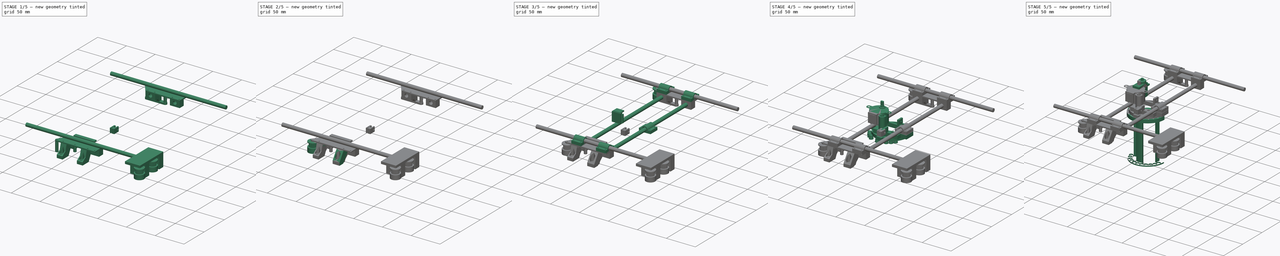
[diagram: build sequence overview — one tinted view per stage of 5, left to right]
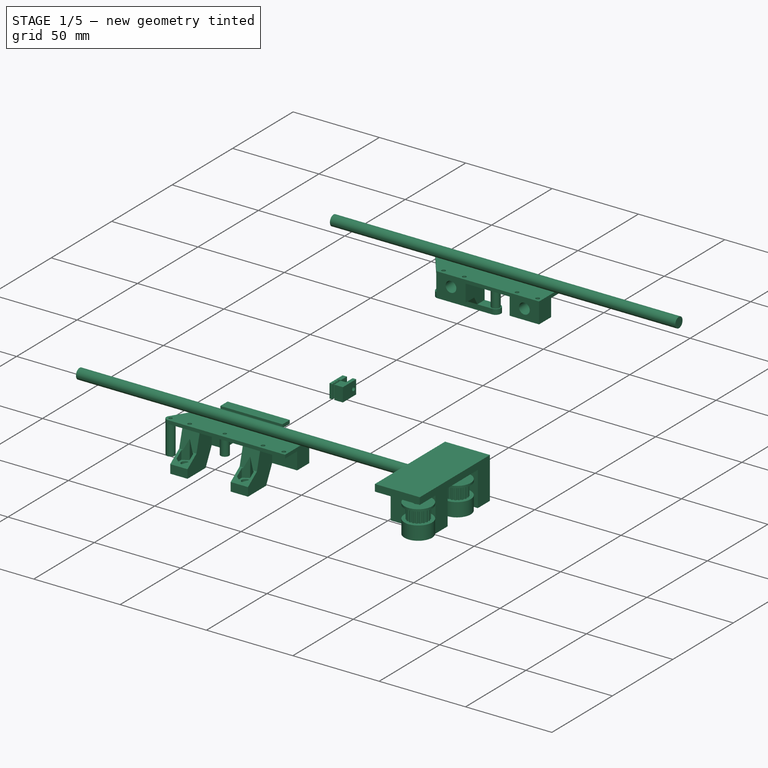
[diagram: stage 1 of 5 — iso view after this stage's code; geometry added in this stage tinted green]
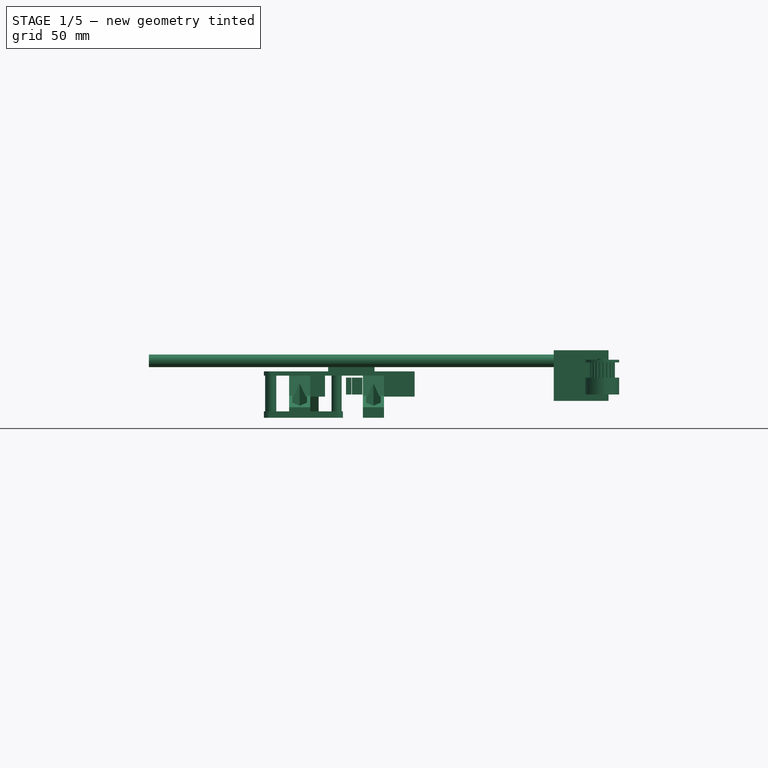
[diagram: stage 1 of 5 — front view after this stage's code; geometry added in this stage tinted green]
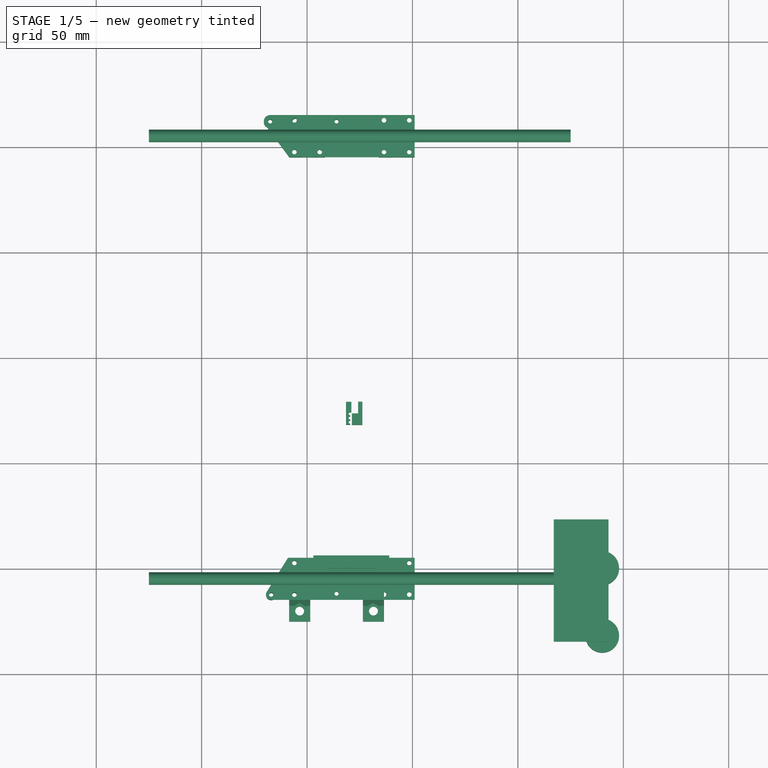
[diagram: stage 1 of 5 — top view after this stage's code; geometry added in this stage tinted green]
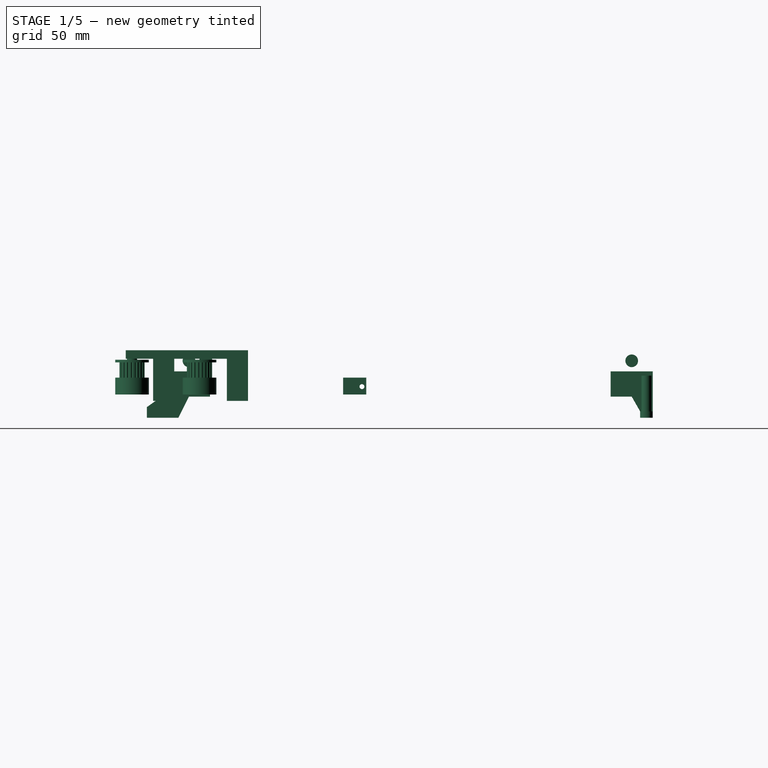
[diagram: stage 1 of 5 — right view after this stage's code; geometry added in this stage tinted green]
FCSTD DOCUMENT  (FreeCAD 0.16R6712 (Git))
Label: fusion-bead-printer
License: All rights reserved
LicenseURL: http://en.wikipedia.org/wiki/All_rights_reserved
objects: Sketcher::SketchObject×78, PartDesign::Pad×40, PartDesign::Pocket×38, App::DocumentObjectGroup×17, Part::Cylinder×15, Part::FeaturePython×12, Part::Fuse×12, Part::Box×11, Part::Cone×11, Part::Cut×9, Part::Feature×4, PartDesign::Chamfer×4, PartDesign::Fillet×2, Part::Fillet×1, Part::MultiFuse×1, Part::Compound×1, PartDesign::PolarPattern×1
note: 318 computed .brp shape members not serialized (recipe doc carries the construction recipe); baked Part::Feature solids carry a one-line shape summary decoded from their .brp

FEATURE [Part::Feature] Compound001  label="X1-Stepper"
  Placement = pos=(14,-120,-35) rot=(0,0,1;0rad)
  shape: bbox 42 x 31 x 29 mm, 57 faces, 3 solids (baked)
FEATURE [Sketcher::SketchObject] Sketch025
  Placement = pos=(20,-80,0) rot=(1,0,0;3.14159rad)
  sketch-geometry (1):
    g0: Circle CenterX=0 CenterY=0 CenterZ=0 NormalX=0 NormalY=0 NormalZ=1 Radius=8
  constraints (2):
    c: Coincident(g0,g-1)
    c: Radius(g0) = 8
FEATURE [PartDesign::Pad] Pad014
  Length = 8
  Length2 = 100
  Placement = pos=(20,-80,0) rot=(1,0,0;3.14159rad)
  Sketch = -> Sketch025
  Type = 0
FEATURE [Sketcher::SketchObject] Sketch026
  Placement = pos=(20,-80,-8) rot=(1,0,0;3.14159rad)
  Support = -> Pad014 [Face3]
  sketch-geometry (1):
    g0: Circle CenterX=0 CenterY=0 CenterZ=0 NormalX=0 NormalY=0 NormalZ=1 Radius=6
  constraints (2):
    c: Coincident(g0,g-1)
    c: Radius(g0) = 6
FEATURE [PartDesign::Pad] Pad015
  Length = 7.25
  Length2 = 100
  Placement = pos=(20,-80,0) rot=(1,0,0;3.14159rad)
  Sketch = -> Sketch026
  Type = 0
FEATURE [Sketcher::SketchObject] Sketch027
  ExternalGeometry = -> [Pad015]
  Placement = pos=(20,-80,-15.25) rot=(1,0,0;3.14159rad)
  Support = -> Pad015 [Face5]
  sketch-geometry (1):
    g0: Circle CenterX=6 CenterY=0 CenterZ=0 NormalX=0 NormalY=0 NormalZ=1 Radius=0.5
  constraints (3):
    c: PointOnObject(g0,g-1)
    c: Radius(g0) = 0.5
    c: PointOnObject(g0,g-3)
FEATURE [PartDesign::Pocket] Pocket008
  Length = 7.25
  Placement = pos=(20,-80,0) rot=(1,0,0;3.14159rad)
  Sketch = -> Sketch027
  Type = 0
FEATURE [PartDesign::PolarPattern] PolarPattern
  Angle = 360
  Axis = -> Sketch027 [N_Axis]
  Occurrences = 20
  Originals = -> [Pocket008]
  Placement = pos=(20,-80,0) rot=(1,0,0;3.14159rad)
FEATURE [Sketcher::SketchObject] Sketch028
  Placement = pos=(20,-80,-15.25) rot=(1,0,0;3.14159rad)
  Support = -> PolarPattern [Face7]
  sketch-geometry (1):
    g0: Circle CenterX=0 CenterY=0 CenterZ=0 NormalX=0 NormalY=0 NormalZ=1 Radius=8
  constraints (2):
    c: Coincident(g0,g-1)
    c: Radius(g0) = 8
FEATURE [PartDesign::Pad] Pad016
  Length = 1.25
  Length2 = 100
  Placement = pos=(20,-80,0) rot=(1,0,0;3.14159rad)
  Sketch = -> Sketch028
  Type = 0
FEATURE [Sketcher::SketchObject] Sketch029
  Placement = pos=(20,-80,-16.5) rot=(1,0,0;3.14159rad)
  Support = -> Pad016 [Face3]
  sketch-geometry (1):
    g0: Circle CenterX=0 CenterY=0 CenterZ=0 NormalX=0 NormalY=0 NormalZ=1 Radius=2.5
  constraints (2):
    c: Coincident(g0,g-1)
    c: Radius(g0) = 2.5
FEATURE [PartDesign::Pocket] Pocket009  label="Pulley gear"
  Length = 0
  Placement = pos=(20,-80,0) rot=(1,0,0;3.14159rad)
  Sketch = -> Sketch029
  Type = 2
FEATURE [Sketcher::SketchObject] Sketch056
  Placement = pos=(-8.5,115,6) rot=(1,0,0;3.14159rad)
  sketch-geometry (29):
    g0: LineSegment StartX=0 StartY=0 StartZ=0 EndX=59.5 EndY=0 EndZ=0
    g1: LineSegment StartX=59.5 StartY=0 StartZ=0 EndX=59.5 EndY=20 EndZ=0
    g2: LineSegment StartX=59.5 StartY=20 StartZ=0 EndX=0 EndY=20 EndZ=0
    g3: LineSegment [constr] StartX=0 StartY=2.5 StartZ=0 EndX=2.5 EndY=2.5 EndZ=0
    g4: LineSegment [constr] StartX=2.5 StartY=2.5 StartZ=0 EndX=2.5 EndY=0 EndZ=0
    g5: LineSegment [constr] StartX=2.5 StartY=2.5 StartZ=0 EndX=2.5 EndY=17.5 EndZ=0
    g6: LineSegment [constr] StartX=2.5 StartY=17.5 StartZ=0 EndX=14.5 EndY=17.5 EndZ=0
    g7: LineSegment [constr] StartX=2.5 StartY=2.5 StartZ=0 EndX=14.5 EndY=2.5 EndZ=0
    g8: LineSegment [constr] StartX=59.5 StartY=2.5 StartZ=0 EndX=57 EndY=2.5 EndZ=0
    g9: LineSegment [constr] StartX=57 StartY=0 StartZ=0 EndX=57 EndY=2.5 EndZ=0
    g10: LineSegment [constr] StartX=57 StartY=17.5 StartZ=0 EndX=57 EndY=2.5 EndZ=0
    g11: LineSegment [constr] StartX=57 StartY=17.5 StartZ=0 EndX=45 EndY=17.5 EndZ=0
    g12: LineSegment [constr] StartX=45 StartY=2.5 StartZ=0 EndX=57 EndY=2.5 EndZ=0
    g13: Circle CenterX=2.5 CenterY=17.5 CenterZ=0 NormalX=0 NormalY=0 NormalZ=1 Radius=1.1
    g14: Circle CenterX=14.5 CenterY=17.5 CenterZ=0 NormalX=0 NormalY=0 NormalZ=1 Radius=1.1
    g15: Circle CenterX=45 CenterY=17.5 CenterZ=0 NormalX=0 NormalY=0 NormalZ=1 Radius=1.1
    g16: Circle CenterX=45 CenterY=2.5 CenterZ=0 NormalX=0 NormalY=0 NormalZ=1 Radius=1.1
    g17: Circle CenterX=57 CenterY=17.5 CenterZ=0 NormalX=0 NormalY=0 NormalZ=1 Radius=1.1
    g18: Circle CenterX=57 CenterY=2.5 CenterZ=0 NormalX=0 NormalY=0 NormalZ=1 Radius=1.1
    g19: Circle CenterX=2.5 CenterY=2.5 CenterZ=0 NormalX=0 NormalY=0 NormalZ=1 Radius=1.1
    g20: LineSegment [constr] StartX=14.5 StartY=17.5 StartZ=0 EndX=45 EndY=17.5 EndZ=0
    g21: LineSegment StartX=0 StartY=20 StartZ=0 EndX=-11.8191 EndY=4.02606 EndZ=0
    g22: LineSegment StartX=0 StartY=0 StartZ=0 EndX=-9 EndY=0 EndZ=0
    g23: ArcOfCircle CenterX=-9 CenterY=3 CenterZ=0 NormalX=0 NormalY=0 NormalZ=1 Radius=3 StartAngle=2.79253 EndAngle=4.71239
    g24: LineSegment [constr] StartX=-9 StartY=3 StartZ=0 EndX=-9 EndY=0 EndZ=0
    g25: LineSegment [constr] StartX=-9 StartY=3 StartZ=0 EndX=0 EndY=3 EndZ=0
    g26: Circle CenterX=22.5 CenterY=3 CenterZ=0 NormalX=0 NormalY=0 NormalZ=1 Radius=1
    g27: Circle CenterX=-9 CenterY=3 CenterZ=0 NormalX=0 NormalY=0 NormalZ=1 Radius=1
    g28: LineSegment [constr] StartX=0 StartY=3 StartZ=0 EndX=22.5 EndY=3 EndZ=0
  constraints (81):
    c: Coincident(g0,g1)
    c: Coincident(g1,g2)
    c: Horizontal(g0)
    c: Horizontal(g2)
    c: Vertical(g1)
    c: Coincident(g0,g-1)
    c: DistanceX(g2,g2) = 59.5
    c: DistanceY(g1,g1) = 20
    c: Horizontal(g3)
    c: PointOnObject(g4,g0)
    c: Vertical(g4)
    c: Equal(g3,g4)
    c: Vertical(g5)
    c: Coincident(g6,g5)
    c: Horizontal(g6)
    c: Horizontal(g7)
    c: PointOnObject(g8,g1)
    c: Horizontal(g8)
    c: PointOnObject(g9,g0)
    c: Coincident(g9,g8)
    c: Vertical(g9)
    c: Coincident(g10,g8)
    c: Vertical(g10)
    c: Coincident(g11,g10)
    c: Horizontal(g11)
    c: Equal(g8,g9)
    c: Equal(g9,g3)
    c: Equal(g7,g6)
    c: Equal(g6,g11)
    c: Equal(g10,g5)
    c: DistanceY(g5,g5) = 15
    c: DistanceX(g7,g7) = 12
    c: Coincident(g3,g4)
    c: Coincident(g3,g5)
    c: Coincident(g3,g7)
    c: Coincident(g12,g8)
    c: Horizontal(g12)
    c: Equal(g12,g11)
    c: Coincident(g13,g5)
    c: Coincident(g14,g6)
    c: Coincident(g15,g11)
    c: Coincident(g16,g12)
    c: Coincident(g17,g10)
    c: Coincident(g18,g8)
    c: Coincident(g19,g3)
    c: Equal(g19,g13)
    c: Equal(g13,g14)
    c: Equal(g15,g17)
    c: Equal(g17,g16)
    c: Equal(g16,g18)
    c: Radius(g13) = 1.1
    c: Horizontal(g20)
    c: Coincident(g11,g20)
    c: Coincident(g6,g20)
    c: DistanceX(g20,g20) = 30.5
    c: Coincident(g21,g23)
    c: Coincident(g22,g23)
    c: Coincident(g0,g22)
    c: Coincident(g2,g21)
    c: PointOnObject(g2,g-2)
    c: Distance(g22) = 9
    c: Angle(g23) = 1.91986
    c: DistanceX(g8,g8) = 2.5
    c: Horizontal(g22)
    c: Coincident(g24,g23)
    c: PointOnObject(g24,g-1)
    c: Vertical(g24)
    c: DistanceY(g24,g24) = 3
    c: PointOnObject(g25,g24)
    c: PointOnObject(g25,g-2)
    c: Horizontal(g25)
    c: Coincident(g23,g25)
    c: DistanceX(g25,g25) = 9
    c: Coincident(g23,g27)
    c: Coincident(g28,g26)
    c: Horizontal(g28)
    c: DistanceX(g28,g28) = 22.5
    c: Radius(g26) = 1
    c: Equal(g26,g27)
    c: Coincident(g25,g28)
    c: Equal(g15,g14)
FEATURE [PartDesign::Pad] Pad026  label="x-pulleys-platform"
  Length = 2
  Length2 = 100
  Placement = pos=(-8.5,115,6) rot=(1,0,0;3.14159rad)
  Sketch = -> Sketch056
  Type = 0
FEATURE [App::DocumentObjectGroup] Group008  label="unused-X1-Y1 support"
  Group = -> [Pad017,Pad018,Pocket010,Pocket011,Pad019,Pocket012,Pocket013,Pocket014,Pocket015,Pad020,Pocket016,Pad021,Pocket017,Pocket018,Pocket019,Pad022,Pocket020,Pocket021,Pocket022,Pad023,Pad024,Pocket023,Pocket024,Chamfer001,Pocket025,Pad025,Chamfer003]
FEATURE [Sketcher::SketchObject] Sketch062
  Placement = pos=(51,-95,6) rot=(1,0,0;3.14159rad)
  sketch-geometry (24):
    g0: LineSegment StartX=0 StartY=0 StartZ=0 EndX=-60 EndY=0 EndZ=0
    g1: LineSegment StartX=-60 StartY=0 StartZ=0 EndX=-70.0685 EndY=16.1129 EndZ=0
    g2: LineSegment StartX=0 StartY=0 StartZ=0 EndX=0 EndY=20 EndZ=0
    g3: LineSegment StartX=0 StartY=20 StartZ=0 EndX=-68 EndY=20 EndZ=0
    g4: ArcOfCircle CenterX=-68.0225 CenterY=17.5181 CenterZ=0 NormalX=0 NormalY=0 NormalZ=1 Radius=2.48203 StartAngle=1.56174 EndAngle=3.7434
    g5: Circle CenterX=-2.5 CenterY=2.5 CenterZ=0 NormalX=0 NormalY=0 NormalZ=1 Radius=1.1
    g6: Circle CenterX=-2.5 CenterY=17.5 CenterZ=0 NormalX=0 NormalY=0 NormalZ=1 Radius=1.1
    g7: Circle CenterX=-14.5 CenterY=17.5 CenterZ=0 NormalX=0 NormalY=0 NormalZ=1 Radius=1.1
    g8: Circle CenterX=-14.5 CenterY=2.5 CenterZ=0 NormalX=0 NormalY=0 NormalZ=1 Radius=1.1
    g9: Circle CenterX=-45 CenterY=2.5 CenterZ=0 NormalX=0 NormalY=0 NormalZ=1 Radius=1.1
    g10: Circle CenterX=-57 CenterY=2.5 CenterZ=0 NormalX=0 NormalY=0 NormalZ=1 Radius=1.1
    g11: Circle CenterX=-57 CenterY=17.5 CenterZ=0 NormalX=0 NormalY=0 NormalZ=1 Radius=1.1
    g12: LineSegment [constr] StartX=-14.5 StartY=17.5 StartZ=0 EndX=-2.5 EndY=17.5 EndZ=0
    g13: LineSegment [constr] StartX=-2.5 StartY=17.5 StartZ=0 EndX=-2.5 EndY=2.5 EndZ=0
    g14: LineSegment [constr] StartX=-2.5 StartY=2.5 StartZ=0 EndX=-14.5 EndY=2.5 EndZ=0
    g15: LineSegment [constr] StartX=-14.5 StartY=2.5 StartZ=0 EndX=-45 EndY=2.5 EndZ=0
    g16: LineSegment [constr] StartX=-45 StartY=2.5 StartZ=0 EndX=-57 EndY=2.5 EndZ=0
    g17: LineSegment [constr] StartX=-57 StartY=2.5 StartZ=0 EndX=-57 EndY=17.5 EndZ=0
    g18: LineSegment [constr] StartX=-2.5 StartY=2.5 StartZ=0 EndX=0 EndY=2.5 EndZ=0
    g19: LineSegment [constr] StartX=-2.5 StartY=2.5 StartZ=0 EndX=-2.5 EndY=0 EndZ=0
    g20: Circle CenterX=-68.0225 CenterY=17.5181 CenterZ=0 NormalX=0 NormalY=0 NormalZ=1 Radius=1
    g21: Circle CenterX=-37 CenterY=17 CenterZ=0 NormalX=0 NormalY=0 NormalZ=1 Radius=1
    g22: LineSegment [constr] StartX=-37 StartY=17 StartZ=0 EndX=0 EndY=17 EndZ=0
    g23: LineSegment [constr] StartX=-37 StartY=17 StartZ=0 EndX=-37 EndY=0 EndZ=0
  constraints (65):
    c: Coincident(g0,g-1)
    c: PointOnObject(g0,g-1)
    c: Coincident(g1,g0)
    c: Coincident(g2,g-1)
    c: PointOnObject(g2,g-2)
    c: Coincident(g3,g2)
    c: Horizontal(g3)
    c: Coincident(g4,g3)
    c: Coincident(g4,g1)
    c: DistanceY(g2,g2) = 20
    c: DistanceX(g0,g0) = 60
    c: DistanceX(g3,g3) = 68
    c: Distance(g1) = 19
    c: Angle(g1) = 2.1293
    c: Angle(g4) = 2.18166
    c: Coincident(g12,g7)
    c: Coincident(g12,g6)
    c: Horizontal(g12)
    c: Coincident(g13,g6)
    c: Coincident(g13,g5)
    c: Vertical(g13)
    c: Coincident(g14,g5)
    c: Coincident(g14,g8)
    c: Horizontal(g14)
    c: Coincident(g15,g8)
    c: Coincident(g15,g9)
    c: Horizontal(g15)
    c: Coincident(g16,g9)
    c: Coincident(g16,g10)
    c: Horizontal(g16)
    c: Coincident(g17,g10)
    c: Coincident(g17,g11)
    c: Vertical(g17)
    c: Coincident(g18,g5)
    c: PointOnObject(g18,g2)
    c: Horizontal(g18)
    c: Coincident(g19,g5)
    c: PointOnObject(g19,g0)
    c: Vertical(g19)
    c: DistanceY(g19,g19) = 2.5
    c: DistanceX(g18,g18) = 2.5
    c: Radius(g5) = 1.1
    c: Equal(g5,g6)
    c: Equal(g6,g7)
    c: Equal(g7,g8)
    c: Equal(g8,g9)
    c: Equal(g9,g10)
    c: Equal(g10,g11)
    c: DistanceY(g13,g13) = 15
    c: DistanceX(g12,g12) = 12
    c: Equal(g12,g14)
    c: Equal(g14,g16)
    c: Equal(g17,g13)
    c: DistanceX(g15,g15) = 30.5
    c: Coincident(g20,g4)
    c: Radius(g20) = 1
    c: Radius(g21) = 1
    c: Coincident(g22,g21)
    c: PointOnObject(g22,g2)
    c: Horizontal(g22)
    c: DistanceX(g22,g22) = 37
    c: Coincident(g23,g21)
    c: PointOnObject(g23,g0)
    c: Vertical(g23)
    c: DistanceY(g23,g23) = 17
FEATURE [PartDesign::Pad] Pad027  label="x-stepper-base"
  Length = 2
  Length2 = 100
  Placement = pos=(51,-95,6) rot=(1,0,0;3.14159rad)
  Sketch = -> Sketch062
  Type = 0
FEATURE [Sketcher::SketchObject] Sketch063
  ExternalGeometry = -> [Pad027]
  Placement = pos=(51,-95,4) rot=(1,0,0;3.14159rad)
  Support = -> Pad027 [Face16]
  sketch-geometry (2):
    g0: Circle CenterX=-68.0225 CenterY=17.5181 CenterZ=0 NormalX=0 NormalY=0 NormalZ=1 Radius=2.4
    g1: Circle CenterX=-68.0225 CenterY=17.5181 CenterZ=0 NormalX=0 NormalY=0 NormalZ=1 Radius=1
  constraints (4):
    c: Coincident(g0,g-3)
    c: Radius(g0) = 2.4
    c: Coincident(g1,g0)
    c: Radius(g1) = 1
FEATURE [PartDesign::Pad] Pad028  label="x-stepper-outer-pulley-spindle"
  Length = 17
  Length2 = 100
  Placement = pos=(51,-95,6) rot=(1,0,0;3.14159rad)
  Sketch = -> Sketch063
  Type = 0
FEATURE [Sketcher::SketchObject] Sketch064
  Placement = pos=(51,-95,4) rot=(1,0,0;3.14159rad)
  Support = -> Pad028 [Face5]
  sketch-geometry (4):
    g0: Circle CenterX=-37 CenterY=17 CenterZ=0 NormalX=0 NormalY=0 NormalZ=1 Radius=2.4
    g1: Circle CenterX=-37 CenterY=17 CenterZ=0 NormalX=0 NormalY=0 NormalZ=1 Radius=1
    g2: LineSegment [constr] StartX=-37 StartY=17 StartZ=0 EndX=0 EndY=17 EndZ=0
    g3: LineSegment [constr] StartX=0 StartY=0 StartZ=0 EndX=0 EndY=17 EndZ=0
  constraints (10):
    c: Coincident(g1,g0)
    c: Radius(g1) = 1
    c: Radius(g0) = 2.4
    c: Coincident(g2,g0)
    c: Horizontal(g2)
    c: Coincident(g3,g-1)
    c: Vertical(g3)
    c: Coincident(g2,g3)
    c: DistanceX(g2,g2) = 37
    c: DistanceY(g3,g3) = 17
FEATURE [PartDesign::Pad] Pad029  label="x-stepper-inner-pulley-spindle"
  Length = 9
  Length2 = 100
  Placement = pos=(51,-95,6) rot=(1,0,0;3.14159rad)
  Sketch = -> Sketch064
  Type = 0
FEATURE [Sketcher::SketchObject] Sketch065
  Placement = pos=(51,-95,4) rot=(1,0,0;3.14159rad)
  Support = -> Pad029 [Face5]
  sketch-geometry (30):
    g0: LineSegment StartX=0 StartY=0 StartZ=0 EndX=-24.5 EndY=0 EndZ=0
    g1: LineSegment StartX=-24.5 StartY=0 StartZ=0 EndX=-24.5 EndY=30 EndZ=0
    g2: LineSegment StartX=-24.5 StartY=30 StartZ=0 EndX=-14.5 EndY=30 EndZ=0
    g3: LineSegment StartX=-59.5 StartY=0 StartZ=0 EndX=-42.5 EndY=0 EndZ=0
    g4: LineSegment StartX=-49.5 StartY=30 StartZ=0 EndX=-59.5 EndY=30 EndZ=0
    g5: LineSegment StartX=-59.5 StartY=30 StartZ=0 EndX=-59.5 EndY=0 EndZ=0
    g6: LineSegment [constr] StartX=-24.5 StartY=0 StartZ=0 EndX=-42.5 EndY=0 EndZ=0
    g7: Circle CenterX=-19.5 CenterY=25 CenterZ=0 NormalX=0 NormalY=0 NormalZ=1 Radius=2.1
    g8: LineSegment [constr] StartX=-19.5 StartY=25 StartZ=0 EndX=-19.5 EndY=30 EndZ=0
    g9: LineSegment [constr] StartX=-19.5 StartY=25 StartZ=0 EndX=-14.5 EndY=25 EndZ=0
    g10: LineSegment [constr] StartX=-54.5 StartY=30 StartZ=0 EndX=-54.5 EndY=25 EndZ=0
    g11: LineSegment [constr] StartX=-54.5 StartY=25 StartZ=0 EndX=-49.5 EndY=25 EndZ=0
    g12: Circle CenterX=-54.5 CenterY=25 CenterZ=0 NormalX=0 NormalY=0 NormalZ=1 Radius=2.1
    g13: LineSegment StartX=-49.5 StartY=30 StartZ=0 EndX=-49.5 EndY=10 EndZ=0
    g14: LineSegment StartX=-49.5 StartY=10 StartZ=0 EndX=-42.5 EndY=10 EndZ=0
    g15: LineSegment StartX=-42.5 StartY=10 StartZ=0 EndX=-42.5 EndY=0 EndZ=0
    g16: LineSegment StartX=-14.5 StartY=30 StartZ=0 EndX=-14.5 EndY=10 EndZ=0
    g17: LineSegment StartX=-14.5 StartY=10 StartZ=0 EndX=0 EndY=10 EndZ=0
    g18: LineSegment StartX=0 StartY=10 StartZ=0 EndX=0 EndY=0 EndZ=0
    g19: Circle CenterX=-57 CenterY=2.5 CenterZ=0 NormalX=0 NormalY=0 NormalZ=1 Radius=1.1
    g20: Circle CenterX=-45 CenterY=2.5 CenterZ=0 NormalX=0 NormalY=0 NormalZ=1 Radius=1.1
    g21: Circle CenterX=-57 CenterY=17.5 CenterZ=0 NormalX=0 NormalY=0 NormalZ=1 Radius=1.1
    g22: Circle CenterX=-14.5 CenterY=2.5 CenterZ=0 NormalX=0 NormalY=0 NormalZ=1 Radius=1.1
    g23: Circle CenterX=-2.5 CenterY=2.5 CenterZ=0 NormalX=0 NormalY=0 NormalZ=1 Radius=1.1
    g24: LineSegment [constr] StartX=-2.5 StartY=2.5 StartZ=0 EndX=-14.5 EndY=2.5 EndZ=0
    g25: LineSegment [constr] StartX=-14.5 StartY=2.5 StartZ=0 EndX=-45 EndY=2.5 EndZ=0
    g26: LineSegment [constr] StartX=-45 StartY=2.5 StartZ=0 EndX=-57 EndY=2.5 EndZ=0
    g27: LineSegment [constr] StartX=-57 StartY=2.5 StartZ=0 EndX=-57 EndY=17.5 EndZ=0
    g28: LineSegment [constr] StartX=-2.5 StartY=2.5 StartZ=0 EndX=-2.5 EndY=0 EndZ=0
    g29: LineSegment [constr] StartX=-2.5 StartY=2.5 StartZ=0 EndX=0 EndY=2.5 EndZ=0
  constraints (85):
    c: Coincident(g0,g1)
    c: Coincident(g1,g2)
    c: Horizontal(g0)
    c: Horizontal(g2)
    c: Vertical(g1)
    c: PointOnObject(g0,g-1)
    c: Coincident(g4,g5)
    c: Coincident(g5,g3)
    c: Horizontal(g3)
    c: Horizontal(g4)
    c: Vertical(g5)
    c: DistanceX(g0,g0) = 24.5
    c: PointOnObject(g3,g-1)
    c: Coincident(g6,g0)
    c: Coincident(g6,g3)
    c: DistanceX(g6,g6) = 18
    c: Radius(g7) = 2.1
    c: Coincident(g8,g7)
    c: PointOnObject(g8,g2)
    c: Vertical(g8)
    c: Coincident(g9,g7)
    c: Horizontal(g9)
    c: DistanceX(g9,g9) = 5
    c: DistanceY(g8,g8) = 5
    c: PointOnObject(g10,g4)
    c: Vertical(g10)
    c: Coincident(g11,g10)
    c: Equal(g11,g9)
    c: Equal(g8,g10)
    c: Horizontal(g11)
    c: Coincident(g12,g10)
    c: Equal(g12,g7)
    c: Coincident(g13,g4)
    c: Vertical(g13)
    c: Coincident(g14,g13)
    c: Horizontal(g14)
    c: Coincident(g15,g14)
    c: Vertical(g15)
    c: Coincident(g3,g15)
    c: DistanceX(g3,g3) = 17
    c: DistanceY(g15,g15) = 10
    c: DistanceX(g14,g14) = 7
    c: DistanceY(g13,g13) = 20
    c: PointOnObject(g11,g13)
    c: DistanceY(g1,g1) = 30
    c: Coincident(g0,g-1)
    c: Vertical(g16)
    c: Coincident(g17,g16)
    c: Horizontal(g17)
    c: Coincident(g18,g17)
    c: Coincident(g18,g-1)
    c: Vertical(g18)
    c: DistanceY(g18,g18) = 10
    c: DistanceX(g17,g17) = 14.5
    c: PointOnObject(g9,g16)
    c: Coincident(g2,g16)
    c: Coincident(g24,g23)
    c: Coincident(g24,g22)
    c: Horizontal(g24)
    c: Coincident(g25,g22)
    c: Coincident(g25,g20)
    c: Horizontal(g25)
    c: Coincident(g26,g20)
    c: Horizontal(g26)
    c: Coincident(g27,g26)
    c: Vertical(g27)
    c: Coincident(g21,g27)
    c: Coincident(g19,g26)
    c: Coincident(g28,g23)
    c: PointOnObject(g28,g0)
    c: Vertical(g28)
    c: Coincident(g29,g23)
    c: PointOnObject(g29,g18)
    c: Equal(g29,g28)
    c: DistanceX(g29,g29) = 2.5
    c: DistanceX(g24,g24) = 12
    c: DistanceX(g25,g25) = 30.5
    c: DistanceX(g26,g26) = 12
    c: DistanceY(g27,g27) = 15
    c: Equal(g21,g19)
    c: Equal(g19,g20)
    c: Equal(g20,g22)
    c: Equal(g22,g23)
    c: Radius(g23) = 1.1
    c: Horizontal(g29)
FEATURE [PartDesign::Pad] Pad030  label="x-stepper-support blocks"
  Length = 20
  Length2 = 100
  Placement = pos=(51,-95,6) rot=(1,0,0;3.14159rad)
  Sketch = -> Sketch065
  Type = 0
FEATURE [Sketcher::SketchObject] Sketch066
  ExternalGeometry = -> [Pad030]
  Placement = pos=(51,-95,4) rot=(0,0,1;0rad)
  Support = -> Pad030 [Face21]
  sketch-geometry (14):
    g0: LineSegment StartX=-51.0359 StartY=-27 StartZ=0 EndX=-51.0359 EndY=-23 EndZ=0
    g1: LineSegment StartX=-51.0359 StartY=-23 StartZ=0 EndX=-54.5 EndY=-21 EndZ=0
    g2: LineSegment StartX=-54.5 StartY=-21 StartZ=0 EndX=-57.9641 EndY=-23 EndZ=0
    g3: LineSegment StartX=-57.9641 StartY=-23 StartZ=0 EndX=-57.9641 EndY=-27 EndZ=0
    g4: LineSegment StartX=-57.9641 StartY=-27 StartZ=0 EndX=-54.5 EndY=-29 EndZ=0
    g5: LineSegment StartX=-54.5 StartY=-29 StartZ=0 EndX=-51.0359 EndY=-27 EndZ=0
    g6: Circle [constr] CenterX=-54.5 CenterY=-25 CenterZ=0 NormalX=0 NormalY=0 NormalZ=1 Radius=4
    g7: LineSegment StartX=-16.0359 StartY=-27 StartZ=0 EndX=-16.0359 EndY=-23 EndZ=0
    g8: LineSegment StartX=-16.0359 StartY=-23 StartZ=0 EndX=-19.5 EndY=-21 EndZ=0
    g9: LineSegment StartX=-19.5 StartY=-21 StartZ=0 EndX=-22.9641 EndY=-23 EndZ=0
    g10: LineSegment StartX=-22.9641 StartY=-23 StartZ=0 EndX=-22.9641 EndY=-27 EndZ=0
    g11: LineSegment StartX=-22.9641 StartY=-27 StartZ=0 EndX=-19.5 EndY=-29 EndZ=0
    g12: LineSegment StartX=-19.5 StartY=-29 StartZ=0 EndX=-16.0359 EndY=-27 EndZ=0
    g13: Circle [constr] CenterX=-19.5 CenterY=-25 CenterZ=0 NormalX=0 NormalY=0 NormalZ=1 Radius=4
  constraints (32):
    c: Coincident(g0,g1)
    c: Coincident(g1,g2)
    c: Coincident(g2,g3)
    c: Coincident(g3,g4)
    c: Coincident(g4,g5)
    c: Coincident(g5,g0)
    c: Equal(g0, g1-g5) x5
    c: PointOnObject(g0,g6)
    c: PointOnObject(g1,g6)
    c: PointOnObject(g2,g6)
    c: PointOnObject(g3,g6)
    c: PointOnObject(g4,g6)
    c: PointOnObject(g5,g6)
    c: Coincident(g6,g-4)
    c: Coincident(g7,g8)
    c: Coincident(g8,g9)
    c: Coincident(g9,g10)
    c: Coincident(g10,g11)
    c: Coincident(g11,g12)
    c: Coincident(g12,g7)
    c: Equal(g7, g8-g12) x5
    c: PointOnObject(g7,g13)
    c: PointOnObject(g8,g13)
    c: PointOnObject(g9,g13)
    c: PointOnObject(g10,g13)
    c: PointOnObject(g11,g13)
    c: PointOnObject(g12,g13)
    c: Coincident(g13,g-3)
    c: Vertical(g7)
    c: Vertical(g0)
    c: Equal(g6,g13)
    c: Radius(g13) = 4
FEATURE [PartDesign::Pocket] Pocket029  label="x-stepper-nut-holes"
  Length = 15
  Placement = pos=(51,-95,6) rot=(1,0,0;3.14159rad)
  Sketch = -> Sketch066
  Type = 0
FEATURE [Sketcher::SketchObject] Sketch067
  ExternalGeometry = -> [Pocket029]
  Placement = pos=(-8.5,-95,6) rot=(0.57735,0.57735,-0.57735;4.18879rad)
  Support = -> Pocket029 [Face38]
  sketch-geometry (8):
    g0: LineSegment StartX=-22.5882 StartY=11.6593 StartZ=0 EndX=-30 EndY=17 EndZ=0
    g1: LineSegment StartX=-30 StartY=17 StartZ=0 EndX=-30 EndY=2 EndZ=0
    g2: LineSegment StartX=-30 StartY=2 StartZ=0 EndX=-20 EndY=2 EndZ=0
    g3: LineSegment StartX=-20 StartY=2 StartZ=0 EndX=-22.5882 EndY=11.6593 EndZ=0
    g4: LineSegment StartX=0 StartY=22 StartZ=0 EndX=0 EndY=12 EndZ=0
    g5: LineSegment StartX=0 StartY=12 StartZ=0 EndX=-10 EndY=12 EndZ=0
    g6: LineSegment StartX=-10 StartY=12 StartZ=0 EndX=-15 EndY=22 EndZ=0
    g7: LineSegment StartX=-15 StartY=22 StartZ=0 EndX=0 EndY=22 EndZ=0
  constraints (22):
    c: Coincident(g1,g0)
    c: Vertical(g1)
    c: Coincident(g2,g1)
    c: Horizontal(g2)
    c: Coincident(g3,g2)
    c: Coincident(g3,g0)
    c: Coincident(g1,g-3)
    c: Coincident(g2,g-3)
    c: DistanceY(g1,g1) = 15
    c: Distance(g3) = 10
    c: Angle(g3) = 1.8326
    c: Vertical(g4)
    c: Coincident(g5,g4)
    c: Horizontal(g5)
    c: Coincident(g6,g5)
    c: Coincident(g7,g6)
    c: Coincident(g7,g4)
    c: Horizontal(g7)
    c: DistanceY(g4,g4) = 10
    c: Coincident(g4,g-4)
    c: DistanceX(g7,g7) = 15
    c: DistanceX(g5,g5) = 10
FEATURE [PartDesign::Pocket] Pocket030  label="x-stepper-support-cutout"
  Length = 5
  Placement = pos=(51,-95,6) rot=(1,0,0;3.14159rad)
  Sketch = -> Sketch067
  Type = 1
FEATURE [App::DocumentObjectGroup] Group011  label="x-stepper-frame"
  Group = -> [Pad027,Pad028,Pad029,Pad030,Pocket029,Pocket030,Pocket031,Pocket032,Pocket033,Pocket034,Compound001,Clone005,Clone006,Chamfer004]
FEATURE [Sketcher::SketchObject] Sketch072
  ExternalGeometry = -> [Pad026]
  Placement = pos=(-8.5,115,4) rot=(1,0,0;3.14159rad)
  Support = -> Pad026 [Face18]
  sketch-geometry (17):
    g0: LineSegment StartX=0 StartY=20 StartZ=0 EndX=17 EndY=20 EndZ=0
    g1: LineSegment StartX=17 StartY=20 StartZ=0 EndX=17 EndY=10 EndZ=0
    g2: LineSegment StartX=17 StartY=10 StartZ=0 EndX=0 EndY=10 EndZ=0
    g3: LineSegment StartX=42.5 StartY=20 StartZ=0 EndX=59.5 EndY=20 EndZ=0
    g4: LineSegment StartX=59.5 StartY=20 StartZ=0 EndX=59.5 EndY=10 EndZ=0
    g5: LineSegment StartX=59.5 StartY=10 StartZ=0 EndX=42.5 EndY=10 EndZ=0
    g6: LineSegment StartX=42.5 StartY=10 StartZ=0 EndX=42.5 EndY=20 EndZ=0
    g7: Circle CenterX=2.5 CenterY=17.5 CenterZ=0 NormalX=0 NormalY=0 NormalZ=1 Radius=1.1
    g8: Circle CenterX=14.5 CenterY=17.5 CenterZ=0 NormalX=0 NormalY=0 NormalZ=1 Radius=1.1
    g9: Circle CenterX=45 CenterY=17.5 CenterZ=0 NormalX=0 NormalY=0 NormalZ=1 Radius=1.1
    g10: Circle CenterX=57 CenterY=17.5 CenterZ=0 NormalX=0 NormalY=0 NormalZ=1 Radius=1.1
    g11: LineSegment [constr] StartX=57 StartY=17.5 StartZ=0 EndX=57 EndY=20 EndZ=0
    g12: LineSegment [constr] StartX=57 StartY=17.5 StartZ=0 EndX=45 EndY=17.5 EndZ=0
    g13: LineSegment [constr] StartX=45 StartY=17.5 StartZ=0 EndX=14.5 EndY=17.5 EndZ=0
    g14: LineSegment [constr] StartX=14.5 StartY=17.5 StartZ=0 EndX=2.5 EndY=17.5 EndZ=0
    g15: LineSegment [constr] StartX=57 StartY=17.5 StartZ=0 EndX=59.5 EndY=17.5 EndZ=0
    g16: LineSegment StartX=0 StartY=10 StartZ=0 EndX=0 EndY=20 EndZ=0
  constraints (48):
    c: Coincident(g0,g1)
    c: Coincident(g1,g2)
    c: Horizontal(g0)
    c: Horizontal(g2)
    c: Vertical(g1)
    c: PointOnObject(g0,g-2)
    c: Coincident(g3,g4)
    c: Coincident(g4,g5)
    c: Coincident(g5,g6)
    c: Coincident(g6,g3)
    c: Horizontal(g3)
    c: Horizontal(g5)
    c: Vertical(g4)
    c: Vertical(g6)
    c: PointOnObject(g0,g-3)
    c: Equal(g2,g5)
    c: Equal(g1,g6)
    c: DistanceY(g6,g6) = 10
    c: PointOnObject(g3,g-3)
    c: DistanceX(g5,g5) = 17
    c: Coincident(g3,g-3)
    c: Coincident(g11,g10)
    c: PointOnObject(g11,g-3)
    c: Vertical(g11)
    c: Coincident(g12,g9)
    c: Horizontal(g12)
    c: Coincident(g13,g9)
    c: Coincident(g13,g8)
    c: Horizontal(g13)
    c: Coincident(g14,g8)
    c: Coincident(g14,g7)
    c: Horizontal(g14)
    c: DistanceY(g11,g11) = 2.5
    c: DistanceX(g12,g12) = 12
    c: DistanceX(g13,g13) = 30.5
    c: DistanceX(g14,g14) = 12
    c: Equal(g7,g8)
    c: Equal(g8,g9)
    c: Equal(g9,g10)
    c: Radius(g10) = 1.1
    c: Coincident(g10,g12)
    c: Coincident(g15,g10)
    c: PointOnObject(g15,g4)
    c: Horizontal(g15)
    c: DistanceX(g15,g15) = 2.5
    c: Coincident(g16,g2)
    c: Coincident(g16,g0)
    c: Vertical(g16)
FEATURE [PartDesign::Pad] Pad031  label="x-pulleys-bar-supports"
  Length = 10
  Length2 = 100
  Placement = pos=(-8.5,115,6) rot=(1,0,0;3.14159rad)
  Sketch = -> Sketch072
  Type = 0
FEATURE [Sketcher::SketchObject] Sketch073
  ExternalGeometry = -> [Pad031]
  Placement = pos=(-8.5,115,4) rot=(1,0,0;3.14159rad)
  Support = -> Pad031 [Face5]
  sketch-geometry (14):
    g0: Circle CenterX=22.5 CenterY=3 CenterZ=0 NormalX=0 NormalY=0 NormalZ=1 Radius=1
    g1: Circle CenterX=-9 CenterY=3 CenterZ=0 NormalX=0 NormalY=0 NormalZ=1 Radius=1
    g2: Circle CenterX=22.5 CenterY=3 CenterZ=0 NormalX=0 NormalY=0 NormalZ=1 Radius=2.4
    g3: Circle CenterX=-9 CenterY=3 CenterZ=0 NormalX=0 NormalY=0 NormalZ=1 Radius=2.4
    g4: LineSegment StartX=0 StartY=10 StartZ=0 EndX=14 EndY=10 EndZ=0
    g5: LineSegment StartX=14 StartY=10 StartZ=0 EndX=14 EndY=0 EndZ=0
    g6: LineSegment StartX=14 StartY=0 StartZ=0 EndX=0 EndY=0 EndZ=0
    g7: LineSegment StartX=0 StartY=0 StartZ=0 EndX=0 EndY=10 EndZ=0
    g8: Circle CenterX=11 CenterY=3 CenterZ=0 NormalX=0 NormalY=0 NormalZ=1 Radius=1.5
    g9: Circle CenterX=3 CenterY=3 CenterZ=0 NormalX=0 NormalY=0 NormalZ=1 Radius=1.5
    g10: LineSegment [constr] StartX=3 StartY=3 StartZ=0 EndX=11 EndY=3 EndZ=0
    g11: LineSegment [constr] StartX=11 StartY=3 StartZ=0 EndX=22.5 EndY=3 EndZ=0
    g12: LineSegment [constr] StartX=3 StartY=3 StartZ=0 EndX=0 EndY=3 EndZ=0
    g13: LineSegment [constr] StartX=0 StartY=3 StartZ=0 EndX=-9 EndY=3 EndZ=0
  constraints (36):
    c: Equal(g1,g0)
    c: Radius(g0) = 1
    c: DistanceX(g1,g0) = 31.5
    c: Coincident(g3,g1)
    c: Equal(g3,g2)
    c: Radius(g2) = 2.4
    c: Coincident(g0,g2)
    c: Coincident(g4,g5)
    c: Coincident(g5,g6)
    c: Coincident(g6,g7)
    c: Coincident(g7,g4)
    c: Horizontal(g4)
    c: Horizontal(g6)
    c: Vertical(g5)
    c: Vertical(g7)
    c: Coincident(g6,g-1)
    c: DistanceX(g6,g6) = 14
    c: DistanceY(g5,g5) = 10
    c: Coincident(g0,g-3)
    c: Equal(g9,g8)
    c: Radius(g8) = 1.5
    c: Coincident(g10,g9)
    c: Coincident(g10,g8)
    c: DistanceX(g10,g10) = 8
    c: Coincident(g11,g8)
    c: Coincident(g11,g0)
    c: Horizontal(g11)
    c: Coincident(g12,g9)
    c: Horizontal(g12)
    c: PointOnObject(g13,g12)
    c: Coincident(g13,g1)
    c: Horizontal(g13)
    c: Coincident(g12,g13)
    c: PointOnObject(g12,g7)
    c: DistanceX(g12,g12) = 3
    c: Horizontal(g10)
FEATURE [PartDesign::Pad] Pad032  label="x-pulleys-rear-support"
  Length = 17
  Length2 = 100
  Placement = pos=(-8.5,115,6) rot=(1,0,0;3.14159rad)
  Sketch = -> Sketch073
  Type = 0
FEATURE [Sketcher::SketchObject] Sketch074
  ExternalGeometry = -> [Pad032]
  Placement = pos=(-8.5,115,6) rot=(0.57735,0.57735,-0.57735;4.18879rad)
  Support = -> Pad032 [Face33]
  sketch-geometry (3):
    g0: LineSegment StartX=-10 StartY=12 StartZ=0 EndX=-10 EndY=19 EndZ=0
    g1: LineSegment StartX=-10 StartY=19 StartZ=0 EndX=-6 EndY=19 EndZ=0
    g2: LineSegment StartX=-6 StartY=19 StartZ=0 EndX=-10 EndY=12 EndZ=0
  constraints (7):
    c: Coincident(g0,g-3)
    c: Coincident(g1,g0)
    c: Horizontal(g1)
    c: Coincident(g2,g1)
    c: Coincident(g0,g-3)
    c: DistanceX(g1,g1) = 4
    c: Coincident(g0,g2)
FEATURE [PartDesign::Pocket] Pocket035  label="x-pulleys-front-slice"
  Length = 5
  Placement = pos=(-8.5,115,6) rot=(1,0,0;3.14159rad)
  Sketch = -> Sketch074
  Type = 2
FEATURE [Sketcher::SketchObject] Sketch075
  Placement = pos=(-8.5,115,6) rot=(0.57735,0.57735,-0.57735;4.18879rad)
  Support = -> Pocket035 [Face33]
  sketch-geometry (5):
    g0: LineSegment [constr] StartX=0 StartY=0 StartZ=0 EndX=0 EndY=2 EndZ=0
    g1: LineSegment StartX=0 StartY=2 StartZ=0 EndX=0 EndY=12 EndZ=0
    g2: LineSegment StartX=0 StartY=12 StartZ=0 EndX=-5 EndY=7 EndZ=0
    g3: LineSegment StartX=-5 StartY=7 StartZ=0 EndX=-5 EndY=2 EndZ=0
    g4: LineSegment StartX=-5 StartY=2 StartZ=0 EndX=0 EndY=2 EndZ=0
  constraints (14):
    c: Coincident(g0,g-1)
    c: Coincident(g1,g0)
    c: Vertical(g1)
    c: Coincident(g4,g3)
    c: Coincident(g4,g0)
    c: DistanceY(g0,g0) = 2
    c: Vertical(g0)
    c: Coincident(g1,g2)
    c: DistanceY(g1,g1) = 10
    c: DistanceX(g4,g4) = 5
    c: Horizontal(g4)
    c: DistanceY(g3,g3) = 5
    c: Vertical(g3)
    c: Coincident(g2,g3)
FEATURE [PartDesign::Pocket] Pocket036  label="x-pulleys-expose-bolthole"
  Length = 5
  Placement = pos=(-8.5,115,6) rot=(1,0,0;3.14159rad)
  Sketch = -> Sketch075
  Type = 0
FEATURE [Sketcher::SketchObject] Sketch076
  Placement = pos=(-8.5,95,6) rot=(0,0.707107,-0.707107;3.14159rad)
  Support = -> Pocket036 [Face22]
  sketch-geometry (5):
    g0: Circle CenterX=-8.5 CenterY=6 CenterZ=0 NormalX=0 NormalY=0 NormalZ=1 Radius=3.1
    g1: Circle CenterX=-51 CenterY=6 CenterZ=0 NormalX=0 NormalY=0 NormalZ=1 Radius=3.1
    g2: LineSegment [constr] StartX=0 StartY=6 StartZ=0 EndX=-8.5 EndY=6 EndZ=0
    g3: LineSegment [constr] StartX=-8.5 StartY=6 StartZ=0 EndX=-8.5 EndY=0 EndZ=0
    g4: LineSegment [constr] StartX=-51 StartY=6 StartZ=0 EndX=-8.5 EndY=6 EndZ=0
  constraints (14):
    c: PointOnObject(g2,g-2)
    c: Coincident(g2,g0)
    c: Horizontal(g2)
    c: Coincident(g3,g0)
    c: PointOnObject(g3,g-1)
    c: Vertical(g3)
    c: Coincident(g4,g1)
    c: Coincident(g4,g0)
    c: Horizontal(g4)
    c: DistanceX(g2,g2) = 8.5
    c: DistanceY(g3,g3) = 6
    c: DistanceX(g4,g4) = 42.5
    c: Equal(g0,g1)
    c: Radius(g0) = 3.1
FEATURE [PartDesign::Pocket] Pocket037  label="x-pulleys-bar-sockets"
  Length = 8
  Placement = pos=(-8.5,115,6) rot=(1,0,0;3.14159rad)
  Sketch = -> Sketch076
  Type = 0
FEATURE [Sketcher::SketchObject] Sketch077
  Placement = pos=(14,112,-13) rot=(1,0,0;3.14159rad)
  sketch-geometry (12):
    g0: Circle CenterX=0 CenterY=0 CenterZ=0 NormalX=0 NormalY=0 NormalZ=1 Radius=1.1
    g1: Circle CenterX=-31.5 CenterY=0 CenterZ=0 NormalX=0 NormalY=0 NormalZ=1 Radius=1.1
    g2: ArcOfCircle CenterX=-31.5 CenterY=0 CenterZ=0 NormalX=0 NormalY=0 NormalZ=1 Radius=3 StartAngle=1.5708 EndAngle=4.71239
    g3: ArcOfCircle CenterX=0 CenterY=0 CenterZ=0 NormalX=0 NormalY=0 NormalZ=1 Radius=3 StartAngle=4.71239 EndAngle=7.85398
    g4: LineSegment StartX=-31.5 StartY=3 StartZ=0 EndX=0 EndY=3 EndZ=0
    g5: LineSegment StartX=0 StartY=-3 StartZ=0 EndX=-31.5 EndY=-3 EndZ=0
    g6: Circle CenterX=-19.5 CenterY=0 CenterZ=0 NormalX=0 NormalY=0 NormalZ=1 Radius=1.7
    g7: Circle CenterX=-11.5 CenterY=0 CenterZ=0 NormalX=0 NormalY=0 NormalZ=1 Radius=1.7
    g8: LineSegment [constr] StartX=-31.5 StartY=0 StartZ=0 EndX=-19.5 EndY=0 EndZ=0
    g9: LineSegment [constr] StartX=-19.5 StartY=0 StartZ=0 EndX=-11.5 EndY=0 EndZ=0
    g10: LineSegment [constr] StartX=-11.5 StartY=0 StartZ=0 EndX=0 EndY=0 EndZ=0
    g11: LineSegment [constr] StartX=-31.5 StartY=0 StartZ=0 EndX=-31.5 EndY=-3 EndZ=0
  constraints (33):
    c: Coincident(g0,g-1)
    c: PointOnObject(g1,g-1)
    c: Coincident(g2,g1)
    c: Coincident(g3,g-1)
    c: PointOnObject(g3,g-2)
    c: PointOnObject(g3,g-2)
    c: Coincident(g4,g3)
    c: Horizontal(g4)
    c: Coincident(g5,g3)
    c: Coincident(g5,g2)
    c: Horizontal(g5)
    c: PointOnObject(g7,g-1)
    c: Coincident(g8,g1)
    c: Coincident(g8,g6)
    c: Horizontal(g8)
    c: Coincident(g9,g7)
    c: Horizontal(g9)
    c: Coincident(g10,g7)
    c: Coincident(g10,g-1)
    c: DistanceX(g10,g10) = 11.5
    c: DistanceX(g9,g9) = 8
    c: DistanceX(g8,g8) = 12
    c: Coincident(g6,g9)
    c: Radius(g6) = 1.7
    c: Equal(g6,g7)
    c: Coincident(g2,g4)
    c: Coincident(g11,g1)
    c: Coincident(g11,g2)
    c: Vertical(g11)
    c: DistanceY(g11,g11) = 3
    c: Angle(g2) = 3.14159
    c: Radius(g1) = 1.1
    c: Equal(g1,g0)
FEATURE [PartDesign::Pad] Pad033  label="x-pulleys-upper-support"
  Length = 3
  Length2 = 100
  Placement = pos=(14,112,-13) rot=(1,0,0;3.14159rad)
  Sketch = -> Sketch077
  Type = 0
FEATURE [App::DocumentObjectGroup] Group010  label="x-pulleys"
  Group = -> [Pad026,Clone007,Clone008,Pad031,Pad032,Pocket035,Pocket036,Pocket037,Pad033]
FEATURE [Part::Cylinder] Cylinder013  label="Rod Y1"
  Angle = 360
  Height = 200
  Placement = pos=(-75,105,11) rot=(0,1,0;1.5708rad)
  Radius = 3
FEATURE [Part::Cylinder] Cylinder014  label="Rod Y2"
  Angle = 360
  Height = 200
  Placement = pos=(-75,-105,11) rot=(0,1,0;1.5708rad)
  Radius = 3
FEATURE [App::DocumentObjectGroup] Group009  label="Bars and sliders"
  Group = -> [Clone,Fillet,Cylinder007,Cylinder008,Clone001,Clone002,Clone004,Clone003,Group001,Cylinder013,Cylinder014]
FEATURE [Part::Feature] Compound002  label="y-stepper"
  Placement = pos=(132,-100,-27) rot=(0,0,-1;1.5708rad)
  shape: bbox 31 x 42 x 29 mm, 57 faces, 3 solids (baked)
FEATURE [Part::FeaturePython] Clone009  label="y-stepper-pulley"  # Draft clone (typed FeaturePython)
  Objects = -> [Pocket009]
  Placement = pos=(140,-100,-5) rot=(0,0,1;0rad)
  Scale = (1,1,1)
FEATURE [Part::FeaturePython] Clone010  label="y-stepper-outer-pulley"  # Draft clone (typed FeaturePython)
  Objects = -> [Pocket009]
  Placement = pos=(140,-132,-5) rot=(0,0,1;0rad)
  Scale = (1,1,1)
FEATURE [Sketcher::SketchObject] Sketch078
  Placement = pos=(34,-94,6) rot=(0,0.707107,0.707107;3.14159rad)
  sketch-geometry (15):
    g0: LineSegment StartX=-5 StartY=7 StartZ=0 EndX=-5 EndY=5 EndZ=0
    g1: LineSegment StartX=-5 StartY=5 StartZ=0 EndX=2 EndY=5 EndZ=0
    g2: LineSegment StartX=2 StartY=5 StartZ=0 EndX=2 EndY=0 EndZ=0
    g3: LineSegment StartX=2 StartY=0 StartZ=0 EndX=24 EndY=0 EndZ=0
    g4: LineSegment StartX=24 StartY=0 StartZ=0 EndX=24 EndY=5 EndZ=0
    g5: LineSegment StartX=24 StartY=5 StartZ=0 EndX=31 EndY=5 EndZ=0
    g6: LineSegment StartX=31 StartY=5 StartZ=0 EndX=31 EndY=7 EndZ=0
    g7: LineSegment StartX=31 StartY=7 StartZ=0 EndX=-5 EndY=7 EndZ=0
    g8: LineSegment [constr] StartX=0 StartY=0 StartZ=0 EndX=2 EndY=0 EndZ=0
    g9: Circle CenterX=8 CenterY=3.5 CenterZ=0 NormalX=0 NormalY=0 NormalZ=1 Radius=1.1
    g10: Circle CenterX=18 CenterY=3.5 CenterZ=0 NormalX=0 NormalY=0 NormalZ=1 Radius=1.1
    g11: LineSegment [constr] StartX=8 StartY=7 StartZ=0 EndX=8 EndY=3.5 EndZ=0
    g12: LineSegment [constr] StartX=8 StartY=3.5 StartZ=0 EndX=2 EndY=3.5 EndZ=0
    g13: LineSegment [constr] StartX=18 StartY=3.5 StartZ=0 EndX=18 EndY=7 EndZ=0
    g14: LineSegment [constr] StartX=18 StartY=3.5 StartZ=0 EndX=24 EndY=3.5 EndZ=0
  constraints (44):
    c: Vertical(g0)
    c: Coincident(g1,g0)
    c: Horizontal(g1)
    c: Coincident(g2,g1)
    c: Vertical(g2)
    c: Coincident(g3,g2)
    c: Horizontal(g3)
    c: Coincident(g4,g3)
    c: Vertical(g4)
    c: Coincident(g5,g4)
    c: Horizontal(g5)
    c: Coincident(g6,g5)
    c: Vertical(g6)
    c: Coincident(g7,g6)
    c: Coincident(g7,g0)
    c: Horizontal(g7)
    c: Coincident(g8,g-1)
    c: Coincident(g8,g2)
    c: DistanceX(g8,g8) = 2
    c: Horizontal(g8)
    c: DistanceY(g2,g2) = 5
    c: DistanceX(g1,g1) = 7
    c: DistanceY(g0,g0) = 2
    c: DistanceX(g7,g7) = 36
    c: Equal(g0,g6)
    c: Equal(g1,g5)
    c: Radius(g9) = 1.1
    c: Equal(g10,g9)
    c: PointOnObject(g11,g7)
    c: Coincident(g11,g9)
    c: Vertical(g11)
    c: Coincident(g12,g9)
    c: PointOnObject(g12,g2)
    c: Horizontal(g12)
    c: Coincident(g13,g10)
    c: PointOnObject(g13,g7)
    c: Vertical(g13)
    c: Coincident(g14,g10)
    c: PointOnObject(g14,g4)
    c: Equal(g14,g12)
    c: Horizontal(g14)
    c: Equal(g13,g11)
    c: DistanceY(g11,g11) = 3.5
    c: DistanceX(g12,g12) = 6
FEATURE [PartDesign::Pad] Pad034  label="main block"
  Length = 6
  Length2 = 100
  Placement = pos=(34,-94,6) rot=(0,0.707107,0.707107;3.14159rad)
  Reversed = true
  Sketch = -> Sketch078
  Type = 0
FEATURE [Sketcher::SketchObject] Sketch079
  ExternalGeometry = -> [Pad034]
  Placement = pos=(34,-100,6) rot=(0,-0.707107,0.707107;3.14159rad)
  Support = -> Pad034 [Face12]
  sketch-geometry (14):
    g0: LineSegment StartX=19.125 StartY=-1.55144 StartZ=0 EndX=16.875 EndY=-1.55144 EndZ=0
    g1: LineSegment StartX=16.875 StartY=-1.55144 StartZ=0 EndX=15.75 EndY=-3.5 EndZ=0
    g2: LineSegment StartX=15.75 StartY=-3.5 StartZ=0 EndX=16.875 EndY=-5.44856 EndZ=0
    g3: LineSegment StartX=16.875 StartY=-5.44856 StartZ=0 EndX=19.125 EndY=-5.44856 EndZ=0
    g4: LineSegment StartX=19.125 StartY=-5.44856 StartZ=0 EndX=20.25 EndY=-3.5 EndZ=0
    g5: LineSegment StartX=20.25 StartY=-3.5 StartZ=0 EndX=19.125 EndY=-1.55144 EndZ=0
    g6: Circle [constr] CenterX=18 CenterY=-3.5 CenterZ=0 NormalX=0 NormalY=0 NormalZ=1 Radius=2.25
    g7: LineSegment StartX=5.75 StartY=-3.5 StartZ=0 EndX=6.875 EndY=-5.44856 EndZ=0
    g8: LineSegment StartX=6.875 StartY=-5.44856 StartZ=0 EndX=9.125 EndY=-5.44856 EndZ=0
    g9: LineSegment StartX=9.125 StartY=-5.44856 StartZ=0 EndX=10.25 EndY=-3.5 EndZ=0
    g10: LineSegment StartX=10.25 StartY=-3.5 StartZ=0 EndX=9.125 EndY=-1.55144 EndZ=0
    g11: LineSegment StartX=9.125 StartY=-1.55144 StartZ=0 EndX=6.875 EndY=-1.55144 EndZ=0
    g12: LineSegment StartX=6.875 StartY=-1.55144 StartZ=0 EndX=5.75 EndY=-3.5 EndZ=0
    g13: Circle [constr] CenterX=8 CenterY=-3.5 CenterZ=0 NormalX=0 NormalY=0 NormalZ=1 Radius=2.25
  constraints (32):
    c: Coincident(g0,g1)
    c: Coincident(g1,g2)
    c: Coincident(g2,g3)
    c: Coincident(g3,g4)
    c: Coincident(g4,g5)
    c: Coincident(g5,g0)
    c: Equal(g0, g1-g5) x5
    c: PointOnObject(g0,g6)
    c: PointOnObject(g1,g6)
    c: PointOnObject(g2,g6)
    c: PointOnObject(g3,g6)
    c: PointOnObject(g4,g6)
    c: PointOnObject(g5,g6)
    c: Coincident(g6,g-4)
    c: Coincident(g7,g8)
    c: Coincident(g8,g9)
    c: Coincident(g9,g10)
    c: Coincident(g10,g11)
    c: Coincident(g11,g12)
    c: Coincident(g12,g7)
    c: Equal(g7, g8-g12) x5
    c: PointOnObject(g7,g13)
    c: PointOnObject(g8,g13)
    c: PointOnObject(g9,g13)
    c: PointOnObject(g10,g13)
    c: PointOnObject(g11,g13)
    c: PointOnObject(g12,g13)
    c: Coincident(g13,g-3)
    c: Horizontal(g0)
    c: Radius(g6) = 2.25
    c: Horizontal(g8)
    c: Equal(g13,g6)
FEATURE [PartDesign::Pocket] Pocket038
  Length = 3
  Placement = pos=(34,-94,6) rot=(0,0.707107,0.707107;3.14159rad)
  Sketch = -> Sketch079
  Type = 0
FEATURE [App::DocumentObjectGroup] Group013  label="y-belt-block"
  Group = -> [Pad034,Pocket038]
FEATURE [Sketcher::SketchObject] Sketch080  label="Belt clamp sketch"
  Placement = pos=(21.2,-26.5,3) rot=(1,0,0;3.14159rad)
  sketch-geometry (23):
    g0: LineSegment StartX=-0.2 StartY=-5.5 StartZ=0 EndX=-2.7 EndY=-5.5 EndZ=0
    g1: LineSegment StartX=-0.2 StartY=-5.5 StartZ=0 EndX=-0.2 EndY=-0.5 EndZ=0
    g2: LineSegment StartX=-0.2 StartY=-0.5 StartZ=0 EndX=-0.85 EndY=-0.5 EndZ=0
    g3: LineSegment StartX=-0.7 StartY=5.35 StartZ=0 EndX=-2.7 EndY=5.35 EndZ=0
    g4: LineSegment StartX=-2.7 StartY=5.35 StartZ=0 EndX=-2.7 EndY=-5.5 EndZ=0
    g5: ArcOfCircle CenterX=-0.85 CenterY=0.15 CenterZ=0 NormalX=0 NormalY=0 NormalZ=1 Radius=0.65 StartAngle=1.5708 EndAngle=4.71239
    g6: ArcOfCircle CenterX=-0.85 CenterY=2.15 CenterZ=0 NormalX=0 NormalY=0 NormalZ=1 Radius=0.65 StartAngle=1.5708 EndAngle=4.71239
    g7: LineSegment [constr] StartX=-0.85 StartY=2.15 StartZ=0 EndX=-0.85 EndY=0.15 EndZ=0
    g8: ArcOfCircle CenterX=-0.85 CenterY=1.35 CenterZ=0 NormalX=0 NormalY=0 NormalZ=1 Radius=0.15 StartAngle=0 EndAngle=1.5708
    g9: ArcOfCircle CenterX=-0.85 CenterY=0.95 CenterZ=0 NormalX=0 NormalY=0 NormalZ=1 Radius=0.15 StartAngle=4.71239 EndAngle=6.28318
    g10: LineSegment StartX=-0.7 StartY=1.35 StartZ=0 EndX=-0.7 EndY=0.95 EndZ=0
    g11: LineSegment StartX=-0.7 StartY=5.35 StartZ=0 EndX=-0.7 EndY=4.95 EndZ=0
    g12: ArcOfCircle CenterX=-0.85 CenterY=4.95 CenterZ=0 NormalX=0 NormalY=0 NormalZ=1 Radius=0.15 StartAngle=4.71239 EndAngle=6.28319
    g13: ArcOfCircle CenterX=-0.85 CenterY=4.15 CenterZ=0 NormalX=0 NormalY=0 NormalZ=1 Radius=0.65 StartAngle=1.5708 EndAngle=4.71239
    g14: ArcOfCircle CenterX=-0.85 CenterY=3.35 CenterZ=0 NormalX=0 NormalY=0 NormalZ=1 Radius=0.15 StartAngle=6.756e-09 EndAngle=1.5708
    g15: ArcOfCircle CenterX=-0.85 CenterY=2.95 CenterZ=0 NormalX=0 NormalY=0 NormalZ=1 Radius=0.15 StartAngle=4.71239 EndAngle=6.28319
    g16: LineSegment StartX=-0.7 StartY=3.35 StartZ=0 EndX=-0.7 EndY=2.95 EndZ=0
    g17: LineSegment [constr] StartX=-0.85 StartY=2.15 StartZ=0 EndX=-0.85 EndY=4.15 EndZ=0
    g18: LineSegment [constr] StartX=-0.85 StartY=4.15 StartZ=0 EndX=-0.85 EndY=4.95 EndZ=0
    g19: LineSegment [constr] StartX=-0.05 StartY=5.35 StartZ=0 EndX=-0.7 EndY=5.35 EndZ=0
    g20: LineSegment [constr] StartX=-0.7 StartY=4.95 StartZ=0 EndX=-0.85 EndY=4.95 EndZ=0
    g21: LineSegment [constr] StartX=-0.2 StartY=0 StartZ=0 EndX=-0.2 EndY=-0.5 EndZ=0
    g22: LineSegment [constr] StartX=-0.2 StartY=-0.5 StartZ=0 EndX=0 EndY=-0.5 EndZ=0
  constraints (73):
    c: Horizontal(g0)
    c: Coincident(g1,g0)
    c: Vertical(g1)
    c: Coincident(g2,g1)
    c: Horizontal(g2)
    c: Horizontal(g3)
    c: Coincident(g4,g3)
    c: Vertical(g4)
    c: Coincident(g0,g4)
    c: DistanceX(g0,g0) = 2.5
    c: DistanceX(g3,g3) = 2
    c: DistanceY(g1,g1) = 5
    c: Radius(g6) = 0.65
    c: Equal(g5,g6)
    c: Coincident(g7,g6)
    c: Coincident(g5,g7)
    c: DistanceY(g7,g7) = 2
    c: Coincident(g8,g6)
    c: Coincident(g9,g5)
    c: Coincident(g10,g8)
    c: Coincident(g10,g9)
    c: Vertical(g10)
    c: Radius(g8) = 0.15
    c: Equal(g9,g8)
    c: PointOnObject(g9,g7)
    c: PointOnObject(g8,g7)
    c: Angle(g5) = 3.14159
    c: Angle(g6) = 3.14159
    c: Coincident(g11,g3)
    c: Vertical(g11)
    c: Coincident(g12,g11)
    c: Coincident(g13,g12)
    c: Coincident(g14,g13)
    c: Coincident(g16,g14)
    c: Coincident(g16,g15)
    c: Vertical(g16)
    c: Coincident(g6,g15)
    c: Coincident(g17,g6)
    c: Coincident(g17,g13)
    c: Vertical(g17)
    c: PointOnObject(g14,g17)
    c: PointOnObject(g15,g17)
    c: Equal(g17,g7)
    c: Equal(g13,g6)
    c: Equal(g12,g14)
    c: Coincident(g18,g13)
    c: Coincident(g18,g12)
    c: Vertical(g18)
    c: DistanceY(g11,g11) = 0.4
    c: Equal(g14,g15)
    c: Equal(g15,g8)
    c: Coincident(g19,g3)
    c: Horizontal(g19)
    c: DistanceX(g19,g19) = 0.65
    c: Coincident(g2,g5)
    c: Coincident(g20,g11)
    c: Coincident(g20,g12)
    c: Horizontal(g20)
    c: Angle(g15) = 1.5708
    c: PointOnObject(g6,g17)
    c: PointOnObject(g13,g17)
    c: PointOnObject(g12,g18)
    c: Angle(g8) = 1.5708
    c: PointOnObject(g6,g7)
    c: PointOnObject(g5,g7)
    c: PointOnObject(g21,g-1)
    c: Vertical(g21)
    c: PointOnObject(g22,g-2)
    c: Horizontal(g22)
    c: Coincident(g1,g21)
    c: Coincident(g1,g22)
    c: DistanceY(g21,g21) = 0.5
    c: DistanceX(g22,g22) = 0.2
FEATURE [PartDesign::Pad] Pad035  label="belt-clamp-main"
  Length = 8
  Length2 = 100
  Placement = pos=(21.2,-26.5,3) rot=(1,0,0;3.14159rad)
  Sketch = -> Sketch080
  Type = 0
FEATURE [Sketcher::SketchObject] Sketch082
  Placement = pos=(125,-105,16) rot=(1,0,0;3.14159rad)
  sketch-geometry (6):
    g0: LineSegment StartX=-8 StartY=-28 StartZ=0 EndX=18 EndY=-28 EndZ=0
    g1: LineSegment StartX=18 StartY=-28 StartZ=0 EndX=18 EndY=30 EndZ=0
    g2: LineSegment StartX=18 StartY=30 StartZ=0 EndX=-8 EndY=30 EndZ=0
    g3: LineSegment StartX=-8 StartY=30 StartZ=0 EndX=-8 EndY=-28 EndZ=0
    g4: LineSegment [constr] StartX=0 StartY=0 StartZ=0 EndX=0 EndY=-28 EndZ=0
    g5: LineSegment [constr] StartX=0 StartY=0 StartZ=0 EndX=-8 EndY=0 EndZ=0
  constraints (18):
    c: Horizontal(g0)
    c: Coincident(g1,g0)
    c: Vertical(g1)
    c: Coincident(g2,g1)
    c: Horizontal(g2)
    c: Coincident(g3,g2)
    c: Coincident(g3,g0)
    c: Vertical(g3)
    c: Coincident(g4,g-1)
    c: PointOnObject(g4,g0)
    c: Vertical(g4)
    c: DistanceY(g4,g4) = 28
    c: Coincident(g5,g-1)
    c: PointOnObject(g5,g3)
    c: Horizontal(g5)
    c: DistanceX(g5,g5) = 8
    c: DistanceY(g3,g3) = 58
    c: DistanceX(g0,g0) = 26
FEATURE [PartDesign::Pad] Pad036  label="y-stepper-main-plate"
  Length = 4
  Length2 = 100
  Placement = pos=(125,-105,16) rot=(1,0,0;3.14159rad)
  Sketch = -> Sketch082
  Type = 0
FEATURE [Sketcher::SketchObject] Sketch083
  ExternalGeometry = -> [Pad036]
  Placement = pos=(125,-105,12) rot=(1,0,0;3.14159rad)
  Support = -> Pad036 [Face6]
  sketch-geometry (9):
    g0: LineSegment StartX=-8 StartY=17 StartZ=0 EndX=18 EndY=17 EndZ=0
    g1: LineSegment StartX=18 StartY=17 StartZ=0 EndX=18 EndY=7 EndZ=0
    g2: LineSegment StartX=18 StartY=7 StartZ=0 EndX=-8 EndY=7 EndZ=0
    g3: LineSegment StartX=-8 StartY=7 StartZ=0 EndX=-8 EndY=17 EndZ=0
    g4: LineSegment StartX=-8 StartY=-18 StartZ=0 EndX=18 EndY=-18 EndZ=0
    g5: LineSegment StartX=18 StartY=-18 StartZ=0 EndX=18 EndY=-28 EndZ=0
    g6: LineSegment StartX=18 StartY=-28 StartZ=0 EndX=-8 EndY=-28 EndZ=0
    g7: LineSegment StartX=-8 StartY=-28 StartZ=0 EndX=-8 EndY=-18 EndZ=0
    g8: LineSegment [constr] StartX=18 StartY=7 StartZ=0 EndX=18 EndY=-18 EndZ=0
  constraints (25):
    c: Coincident(g0,g1)
    c: Coincident(g1,g2)
    c: Coincident(g2,g3)
    c: Coincident(g3,g0)
    c: Horizontal(g0)
    c: Horizontal(g2)
    c: Vertical(g1)
    c: Vertical(g3)
    c: Coincident(g4,g5)
    c: Coincident(g5,g6)
    c: Coincident(g6,g7)
    c: Coincident(g7,g4)
    c: Horizontal(g4)
    c: Horizontal(g6)
    c: Vertical(g5)
    c: Vertical(g7)
    c: Coincident(g6,g-3)
    c: Coincident(g5,g-3)
    c: DistanceY(g5,g5) = 10
    c: Equal(g1,g5)
    c: Coincident(g8,g1)
    c: Coincident(g8,g4)
    c: Vertical(g8)
    c: DistanceY(g8,g8) = 25
    c: Equal(g0,g-3)
FEATURE [PartDesign::Pad] Pad037  label="y-stepper-supports"
  Length = 20
  Length2 = 100
  Placement = pos=(125,-105,16) rot=(1,0,0;3.14159rad)
  Sketch = -> Sketch083
  Type = 0
FEATURE [Sketcher::SketchObject] Sketch084
  Placement = pos=(125,-105,12) rot=(1,0,0;3.14159rad)
  Support = -> Pad037 [Face9]
  sketch-geometry (3):
    g0: Circle CenterX=15 CenterY=27 CenterZ=0 NormalX=0 NormalY=0 NormalZ=1 Radius=2.4
    g1: LineSegment [constr] StartX=15 StartY=27 StartZ=0 EndX=0 EndY=27 EndZ=0
    g2: LineSegment [constr] StartX=15 StartY=27 StartZ=0 EndX=15 EndY=0 EndZ=0
  constraints (9):
    c: Coincident(g1,g0)
    c: PointOnObject(g1,g-2)
    c: Coincident(g2,g0)
    c: PointOnObject(g2,g-1)
    c: Vertical(g2)
    c: Horizontal(g1)
    c: DistanceX(g1,g1) = 15
    c: DistanceY(g2,g2) = 27
    c: Radius(g0) = 2.4
FEATURE [PartDesign::Pad] Pad038
  Length = 17
  Length2 = 100
  Placement = pos=(125,-105,16) rot=(1,0,0;3.14159rad)
  Sketch = -> Sketch084
  Type = 0
FEATURE [App::DocumentObjectGroup] Group012  label="y-stepper-frame"
  Group = -> [Compound002,Clone009,Clone010,Pad036,Pad037,Pad038]
FEATURE [App::DocumentObjectGroup] Group005  label="Frame"
  Group = -> [Group008,Group009,Group010,Group011,Group012,Group013]
FEATURE [Sketcher::SketchObject] Sketch085
  ExternalGeometry = -> [Pad035]
  Placement = pos=(18.5,-26.5,3) rot=(0.57735,0.57735,-0.57735;4.18879rad)
  Support = -> Pad035 [Face5]
  sketch-geometry (3):
    g0: LineSegment [constr] StartX=3.5 StartY=8 StartZ=0 EndX=3.5 EndY=4.25 EndZ=0
    g1: LineSegment [constr] StartX=5.5 StartY=4.25 StartZ=0 EndX=3.5 EndY=4.25 EndZ=0
    g2: Circle CenterX=3.5 CenterY=4.25 CenterZ=0 NormalX=0 NormalY=0 NormalZ=1 Radius=1.2
  constraints (9):
    c: PointOnObject(g0,g-3)
    c: PointOnObject(g1,g-4)
    c: Coincident(g1,g0)
    c: Horizontal(g1)
    c: Vertical(g0)
    c: Coincident(g2,g0)
    c: Radius(g2) = 1.2
    c: DistanceY(g0,g0) = 3.75
    c: DistanceX(g1,g1) = 2
FEATURE [PartDesign::Pocket] Pocket039  label="belt-clamp-with-bolt-hole"
  Length = 5
  Placement = pos=(21.2,-26.5,3) rot=(1,0,0;3.14159rad)
  Sketch = -> Sketch085
  Type = 1
FEATURE [Sketcher::SketchObject] Sketch086
  Placement = pos=(24.25,-26.5,3) rot=(-1,0,0;3.14159rad)
  sketch-geometry (6):
    g0: LineSegment StartX=0 StartY=0 StartZ=0 EndX=-3 EndY=0 EndZ=0
    g1: LineSegment StartX=-3 StartY=0 StartZ=0 EndX=-3 EndY=5.4 EndZ=0
    g2: LineSegment StartX=-3 StartY=5.4 StartZ=0 EndX=2 EndY=5.4 EndZ=0
    g3: LineSegment StartX=2 StartY=5.4 StartZ=0 EndX=2 EndY=-5.6 EndZ=0
    g4: LineSegment StartX=2 StartY=-5.6 StartZ=0 EndX=0 EndY=-5.6 EndZ=0
    g5: LineSegment StartX=0 StartY=-5.6 StartZ=0 EndX=0 EndY=0 EndZ=0
  constraints (17):
    c: Horizontal(g0)
    c: Coincident(g1,g0)
    c: Horizontal(g2)
    c: Coincident(g3,g2)
    c: Vertical(g3)
    c: Coincident(g4,g3)
    c: Horizontal(g4)
    c: Coincident(g5,g4)
    c: Vertical(g5)
    c: Coincident(g0,g5)
    c: Coincident(g0,g-1)
    c: DistanceY(g1,g1) = 5.4
    c: Vertical(g1)
    c: Coincident(g1,g2)
    c: DistanceX(g2,g2) = 5
    c: DistanceY(g3,g3) = 11
    c: DistanceX(g4,g4) = 2
FEATURE [PartDesign::Pad] Pad039  label="belt-clamp-far-side"
  Length = 8
  Length2 = 100
  Placement = pos=(24.25,-26.5,3) rot=(-1,0,0;3.14159rad)
  Sketch = -> Sketch086
  Type = 0
FEATURE [Sketcher::SketchObject] Sketch087
  ExternalGeometry = -> [Pad039]
  Placement = pos=(26.25,-26.5,3) rot=(-0.57735,0.57735,-0.57735;2.0944rad)
  Support = -> Pad039 [Face4]
  sketch-geometry (3):
    g0: LineSegment [constr] StartX=-5.6 StartY=4.25 StartZ=0 EndX=-3.6 EndY=4.25 EndZ=0
    g1: LineSegment [constr] StartX=-3.6 StartY=8 StartZ=0 EndX=-3.6 EndY=4.25 EndZ=0
    g2: Circle CenterX=-3.6 CenterY=4.25 CenterZ=0 NormalX=0 NormalY=0 NormalZ=1 Radius=1.2
  constraints (9):
    c: PointOnObject(g0,g-4)
    c: Horizontal(g0)
    c: PointOnObject(g1,g-3)
    c: Coincident(g1,g0)
    c: Vertical(g1)
    c: Coincident(g2,g0)
    c: Radius(g2) = 1.2
    c: DistanceY(g1,g1) = 3.75
    c: DistanceX(g0,g0) = 2
FEATURE [PartDesign::Pocket] Pocket040  label="belt-clamp-far-side-with-bolt-hole"
  Length = 5
  Placement = pos=(24.25,-26.5,3) rot=(-1,0,0;3.14159rad)
  Sketch = -> Sketch087
  Type = 1
FEATURE [App::DocumentObjectGroup] Group006  label="Print head"
  Group = -> [Group004,Group003,Group002,Group,Fusion007001,Grupo003,Fusion007002,Pad035,Pocket039,Pad039,Pocket040]
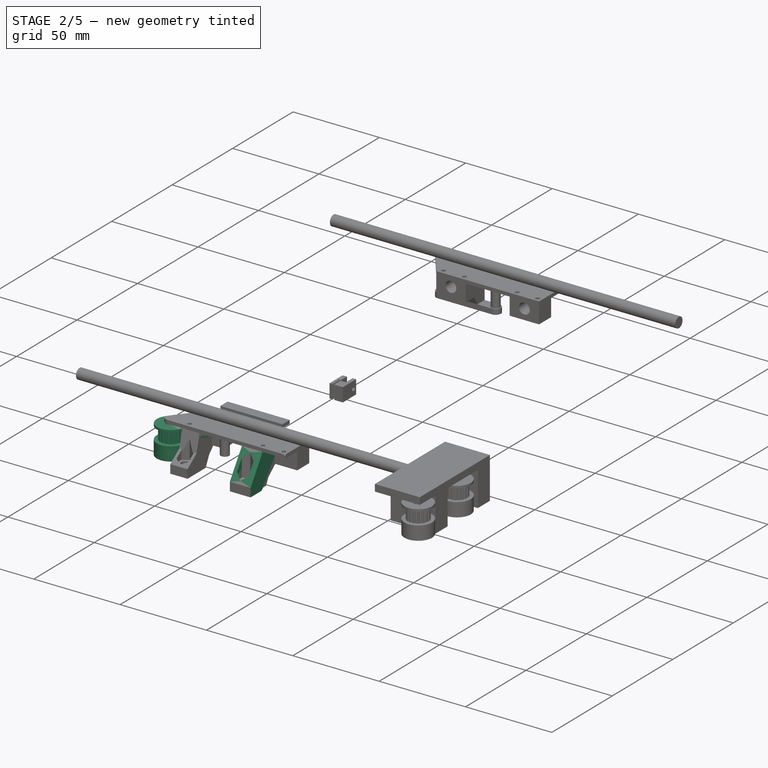
[diagram: stage 2 of 5 — iso view after this stage's code; geometry added in this stage tinted green]
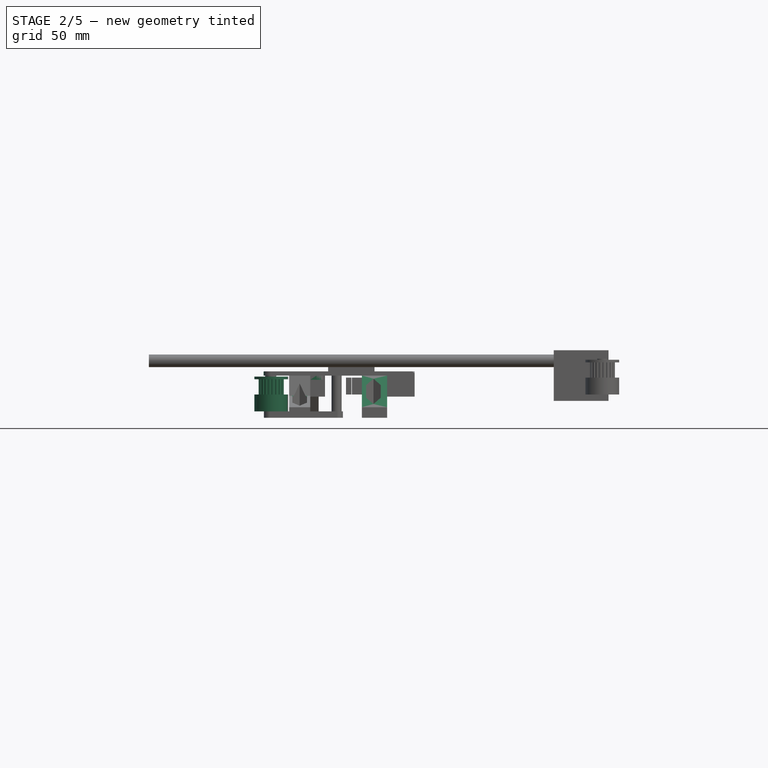
[diagram: stage 2 of 5 — front view after this stage's code; geometry added in this stage tinted green]
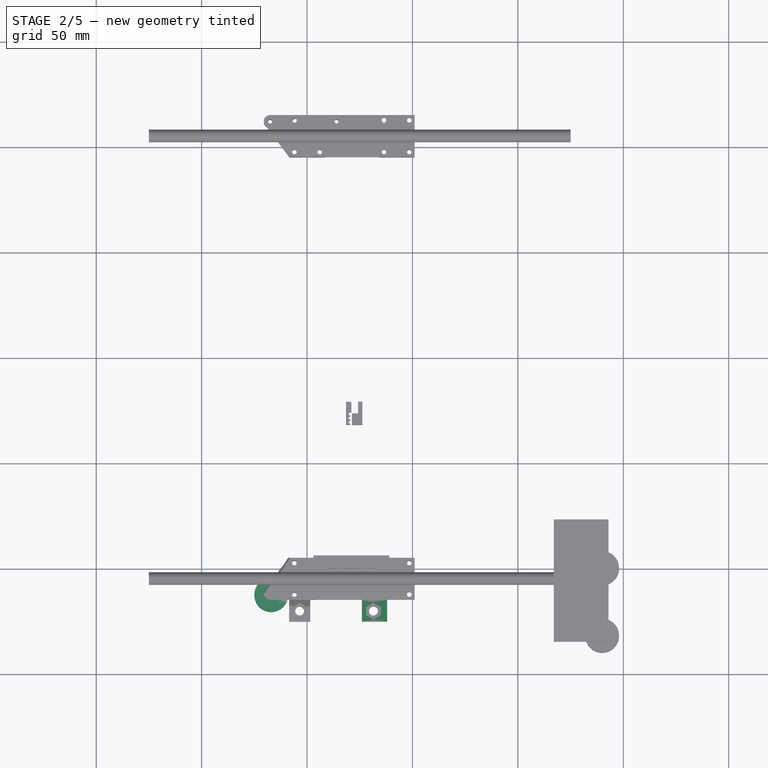
[diagram: stage 2 of 5 — top view after this stage's code; geometry added in this stage tinted green]
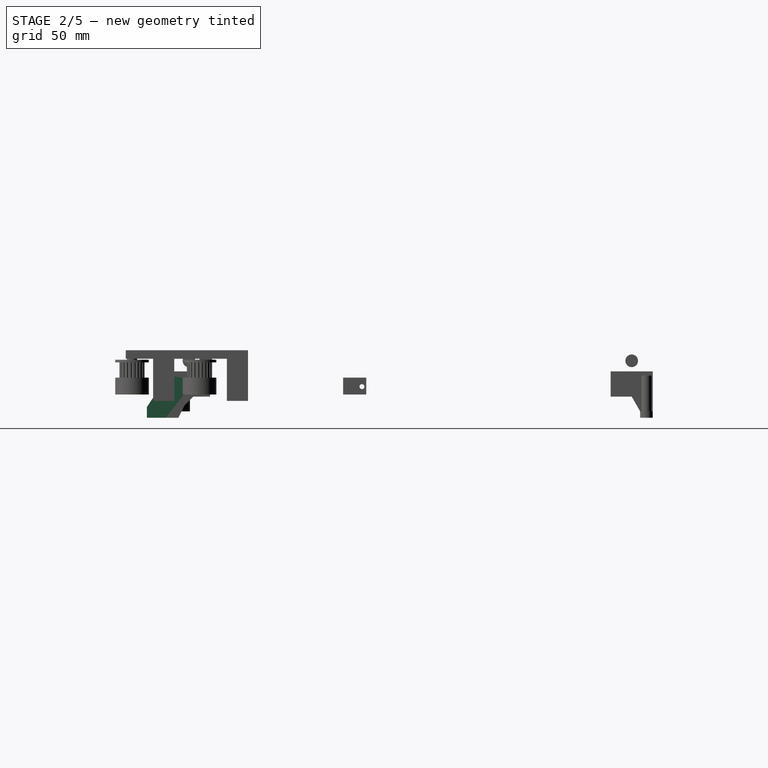
[diagram: stage 2 of 5 — right view after this stage's code; geometry added in this stage tinted green]
FEATURE [App::DocumentObjectGroup] Group007  label="Pully gear"
  Group = -> [Pad016,PolarPattern,Pocket008,Pad015,Pad014,Pocket009]
FEATURE [Part::FeaturePython] Clone005  label="X1 Pulley"  # Draft clone (typed FeaturePython)
  Objects = -> [Pocket009]
  Placement = pos=(14,-112,-13) rot=(0,0,1;0rad)
  Scale = (1,1,1)
FEATURE [Part::FeaturePython] Clone006  label="X2 Pulley"  # Draft clone (typed FeaturePython)
  Objects = -> [Clone005]
  Placement = pos=(-17,-112.5,-13) rot=(0,0,1;0rad)
  Scale = (1,1,1)
FEATURE [Sketcher::SketchObject] Sketch030  label="X pulley base"
  Placement = pos=(51,-95,6) rot=(1,0,0;3.14159rad)
  sketch-geometry (31):
    g0: LineSegment StartX=0 StartY=20 StartZ=0 EndX=0 EndY=0 EndZ=0
    g1: LineSegment StartX=0 StartY=0 StartZ=0 EndX=-59.5 EndY=0 EndZ=0
    g2: LineSegment StartX=0 StartY=20 StartZ=0 EndX=-68 EndY=20 EndZ=0
    g3: LineSegment StartX=-59.5 StartY=0 StartZ=0 EndX=-71.1976 EndY=14.9722 EndZ=0
    g4: ArcOfCircle CenterX=-68.1474 CenterY=16.563 CenterZ=0 NormalX=0 NormalY=0 NormalZ=1 Radius=3.44011 StartAngle=1.52794 EndAngle=3.62234
    g5: Circle CenterX=-2.5 CenterY=17.5 CenterZ=0 NormalX=0 NormalY=0 NormalZ=1 Radius=1.1
    g6: LineSegment [constr] StartX=0 StartY=20 StartZ=0 EndX=-2.5 EndY=20 EndZ=0
    g7: LineSegment [constr] StartX=-2.5 StartY=20 StartZ=0 EndX=-2.5 EndY=17.5 EndZ=0
    g8: LineSegment [constr] StartX=-2.5 StartY=17.5 StartZ=0 EndX=0 EndY=17.5 EndZ=0
    g9: LineSegment [constr] StartX=0 StartY=17.5 StartZ=0 EndX=0 EndY=20 EndZ=0
    g10: LineSegment [constr] StartX=0 StartY=0 StartZ=0 EndX=-2.5 EndY=0 EndZ=0
    g11: LineSegment [constr] StartX=-2.5 StartY=0 StartZ=0 EndX=-2.5 EndY=2.5 EndZ=0
    g12: LineSegment [constr] StartX=-2.5 StartY=2.5 StartZ=0 EndX=0 EndY=2.5 EndZ=0
    g13: LineSegment [constr] StartX=0 StartY=2.5 StartZ=0 EndX=0 EndY=0 EndZ=0
    g14: Circle CenterX=-2.5 CenterY=2.5 CenterZ=0 NormalX=0 NormalY=0 NormalZ=1 Radius=1.1
    g15: Circle CenterX=-14.5 CenterY=17.5 CenterZ=0 NormalX=0 NormalY=0 NormalZ=1 Radius=1.1
    g16: Circle CenterX=-14.5 CenterY=2.5 CenterZ=0 NormalX=0 NormalY=0 NormalZ=1 Radius=1.1
    g17: LineSegment [constr] StartX=-2.5 StartY=2.5 StartZ=0 EndX=-14.5 EndY=2.5 EndZ=0
    g18: LineSegment [constr] StartX=-2.5 StartY=17.5 StartZ=0 EndX=-14.5 EndY=17.5 EndZ=0
    g19: LineSegment [constr] StartX=-59.5 StartY=0 StartZ=0 EndX=-57 EndY=0 EndZ=0
    g20: LineSegment [constr] StartX=-57 StartY=0 StartZ=0 EndX=-57 EndY=2.5 EndZ=0
    g21: LineSegment [constr] StartX=-57 StartY=2.5 StartZ=0 EndX=-59.5 EndY=2.5 EndZ=0
    g22: LineSegment [constr] StartX=-59.5 StartY=2.5 StartZ=0 EndX=-59.5 EndY=0 EndZ=0
    g23: LineSegment [constr] StartX=-57 StartY=17.5 StartZ=0 EndX=-45 EndY=17.5 EndZ=0
    g24: LineSegment [constr] StartX=-45 StartY=17.5 StartZ=0 EndX=-45 EndY=2.5 EndZ=0
    g25: LineSegment [constr] StartX=-45 StartY=2.5 StartZ=0 EndX=-57 EndY=2.5 EndZ=0
    g26: LineSegment [constr] StartX=-57 StartY=2.5 StartZ=0 EndX=-57 EndY=17.5 EndZ=0
    g27: Circle CenterX=-57 CenterY=2.5 CenterZ=0 NormalX=0 NormalY=0 NormalZ=1 Radius=1.1
    g28: Circle CenterX=-57 CenterY=17.5 CenterZ=0 NormalX=0 NormalY=0 NormalZ=1 Radius=1.1
    g29: Circle CenterX=-45 CenterY=2.5 CenterZ=0 NormalX=0 NormalY=0 NormalZ=1 Radius=1.1
    g30: Circle CenterX=-45 CenterY=17.5 CenterZ=0 NormalX=0 NormalY=0 NormalZ=1 Radius=1.1
  constraints (81):
    c: Vertical(g0)
    c: Coincident(g1,g0)
    c: Horizontal(g1)
    c: Coincident(g2,g0)
    c: Horizontal(g2)
    c: Coincident(g3,g1)
    c: Coincident(g3,g4)
    c: Coincident(g2,g4)
    c: Angle(g4) = 2.0944
    c: DistanceY(g0,g0) = 20
    c: DistanceX(g1,g1) = 59.5
    c: Distance(g2) = 68
    c: Distance(g3) = 19
    c: Angle(g1,g3) = 2.23402
    c: Coincident(g0,g-1)
    c: Coincident(g6,g7)
    c: Coincident(g7,g8)
    c: Coincident(g8,g9)
    c: Coincident(g9,g6)
    c: Horizontal(g6)
    c: Horizontal(g8)
    c: Vertical(g7)
    c: Vertical(g9)
    c: Coincident(g6,g0)
    c: Coincident(g7,g5)
    c: DistanceX(g8,g8) = 2.5
    c: DistanceY(g7,g7) = 2.5
    c: Radius(g5) = 1.1
    c: Coincident(g10,g11)
    c: Coincident(g11,g12)
    c: Coincident(g12,g13)
    c: Coincident(g13,g10)
    c: Horizontal(g10)
    c: Horizontal(g12)
    c: Vertical(g11)
    c: Vertical(g13)
    c: Coincident(g10,g-1)
    c: Coincident(g14,g11)
    c: DistanceY(g11,g11) = 2.5
    c: DistanceX(g12,g12) = 2.5
    c: Coincident(g17,g11)
    c: Coincident(g17,g16)
    c: Horizontal(g17)
    c: DistanceX(g17,g17) = 12
    c: Coincident(g18,g5)
    c: Coincident(g18,g15)
    c: Horizontal(g18)
    c: DistanceX(g18,g18) = 12
    c: Coincident(g19,g20)
    c: Coincident(g20,g21)
    c: Coincident(g21,g22)
    c: Coincident(g22,g19)
    c: Horizontal(g19)
    c: Horizontal(g21)
    c: Vertical(g20)
    c: Vertical(g22)
    c: Coincident(g19,g1)
    c: Coincident(g23,g24)
    c: Coincident(g24,g25)
    c: Coincident(g25,g26)
    c: Coincident(g26,g23)
    c: Horizontal(g23)
    c: Horizontal(g25)
    c: Vertical(g24)
    c: Vertical(g26)
    c: Coincident(g20,g25)
    c: Equal(g21,g20)
    c: DistanceX(g21,g21) = 2.5
    c: DistanceX(g25,g25) = 12
    c: DistanceY(g26,g26) = 15
    c: Coincident(g27,g20)
    c: Coincident(g28,g23)
    c: Coincident(g30,g23)
    c: Equal(g28,g30)
    c: Equal(g30,g27)
    c: Equal(g27,g29)
    c: Equal(g29,g5)
    c: Coincident(g24,g29)
    c: Equal(g16,g15)
    c: Equal(g15,g14)
    c: Equal(g14,g5)
FEATURE [PartDesign::Pad] Pad017
  Length = 2
  Length2 = 100
  Placement = pos=(51,-95,6) rot=(1,0,0;3.14159rad)
  Sketch = -> Sketch030
  Type = 0
FEATURE [Sketcher::SketchObject] Sketch031
  ExternalGeometry = -> [Pad017]
  Placement = pos=(51,-95,4) rot=(1,0,0;3.14159rad)
  Support = -> Pad017 [Face15]
  sketch-geometry (9):
    g0: LineSegment StartX=0 StartY=0 StartZ=0 EndX=-13 EndY=0 EndZ=0
    g1: LineSegment StartX=-13 StartY=0 StartZ=0 EndX=-13 EndY=7 EndZ=0
    g2: LineSegment StartX=-13 StartY=7 StartZ=0 EndX=0 EndY=7 EndZ=0
    g3: LineSegment StartX=0 StartY=7 StartZ=0 EndX=0 EndY=0 EndZ=0
    g4: LineSegment [constr] StartX=0 StartY=0 StartZ=0 EndX=-2.5 EndY=0 EndZ=0
    g5: LineSegment [constr] StartX=-2.5 StartY=0 StartZ=0 EndX=-2.5 EndY=2.5 EndZ=0
    g6: LineSegment [constr] StartX=-2.5 StartY=2.5 StartZ=0 EndX=0 EndY=2.5 EndZ=0
    g7: LineSegment [constr] StartX=0 StartY=2.5 StartZ=0 EndX=0 EndY=0 EndZ=0
    g8: Circle CenterX=-2.5 CenterY=2.5 CenterZ=0 NormalX=0 NormalY=0 NormalZ=1 Radius=1.1
  constraints (24):
    c: Coincident(g0,g1)
    c: Coincident(g1,g2)
    c: Coincident(g2,g3)
    c: Coincident(g3,g0)
    c: Horizontal(g0)
    c: Horizontal(g2)
    c: Vertical(g1)
    c: Vertical(g3)
    c: Coincident(g0,g-1)
    c: DistanceX(g2,g2) = 13
    c: DistanceY(g1,g1) = 7
    c: Coincident(g4,g5)
    c: Coincident(g5,g6)
    c: Coincident(g6,g7)
    c: Coincident(g7,g4)
    c: Horizontal(g4)
    c: Horizontal(g6)
    c: Vertical(g5)
    c: Vertical(g7)
    c: Coincident(g4,g-1)
    c: DistanceX(g6,g6) = 2.5
    c: DistanceY(g5,g5) = 2.5
    c: Coincident(g8,g5)
    c: Radius(g8) = 1.1
FEATURE [PartDesign::Pad] Pad018  label="X1 bar holder"
  Length = 10
  Length2 = 100
  Placement = pos=(51,-95,6) rot=(1,0,0;3.14159rad)
  Sketch = -> Sketch031
  Type = 0
FEATURE [Sketcher::SketchObject] Sketch032  label="Bar socket"
  ExternalGeometry = -> [Pad018]
  Placement = pos=(51,-95,6) rot=(-1,0,0;1.5708rad)
  Support = -> Pad018 [Face19]
  sketch-geometry (2):
    g0: Circle CenterX=-8.5 CenterY=6 CenterZ=0 NormalX=0 NormalY=0 NormalZ=1 Radius=3
    g1: LineSegment [constr] StartX=-8.5 StartY=6 StartZ=0 EndX=-8.5 EndY=10 EndZ=0
FEATURE [PartDesign::Pocket] Pocket010
  Length = 5
  Placement = pos=(51,-95,6) rot=(1,0,0;3.14159rad)
  Sketch = -> Sketch032
  Type = 0
FEATURE [Sketcher::SketchObject] Sketch034
  ExternalGeometry = -> [Pocket010]
  Placement = pos=(51,-95,6) rot=(-1,0,0;1.5708rad)
  Support = -> Pocket010 [Face6]
  sketch-geometry (4):
    g0: LineSegment StartX=-13 StartY=11 StartZ=0 EndX=0 EndY=11 EndZ=0
    g1: LineSegment StartX=0 StartY=11 StartZ=0 EndX=0 EndY=12 EndZ=0
    g2: LineSegment StartX=0 StartY=12 StartZ=0 EndX=-13 EndY=12 EndZ=0
    g3: LineSegment StartX=-13 StartY=12 StartZ=0 EndX=-13 EndY=11 EndZ=0
  constraints (12):
    c: Horizontal(g0)
    c: Coincident(g1,g0)
    c: Vertical(g1)
    c: Coincident(g2,g1)
    c: Horizontal(g2)
    c: Coincident(g3,g2)
    c: Vertical(g3)
    c: PointOnObject(g1,g-2)
    c: Coincident(g2,g-4)
    c: DistanceY(g1,g1) = 1
    c: DistanceY(g3,g3) = 1
    c: Coincident(g0,g3)
FEATURE [PartDesign::Pocket] Pocket011  label="X1 holder with bar socket"
  Length = 7
  Placement = pos=(51,-95,6) rot=(1,0,0;3.14159rad)
  Sketch = -> Sketch034
  Type = 0
FEATURE [Sketcher::SketchObject] Sketch035  label="X1 support 1"
  ExternalGeometry = -> [Pocket011]
  Placement = pos=(51,-95,4) rot=(1,0,0;3.14159rad)
  Support = -> Pocket011 [Face5]
  sketch-geometry (4):
    g0: LineSegment StartX=-13 StartY=0 StartZ=0 EndX=-25 EndY=0 EndZ=0
    g1: LineSegment StartX=-25 StartY=0 StartZ=0 EndX=-25 EndY=30 EndZ=0
    g2: LineSegment StartX=-25 StartY=30 StartZ=0 EndX=-13 EndY=30 EndZ=0
    g3: LineSegment StartX=-13 StartY=30 StartZ=0 EndX=-13 EndY=0 EndZ=0
  constraints (11):
    c: Coincident(g0,g1)
    c: Coincident(g1,g2)
    c: Coincident(g2,g3)
    c: Coincident(g3,g0)
    c: Horizontal(g0)
    c: Horizontal(g2)
    c: Vertical(g1)
    c: Vertical(g3)
    c: Coincident(g0,g-3)
    c: DistanceX(g0,g0) = 12
    c: DistanceY(g1,g1) = 30
FEATURE [PartDesign::Pad] Pad019  label="X1 stepper support block"
  Length = 20
  Length2 = 100
  Placement = pos=(51,-95,6) rot=(1,0,0;3.14159rad)
  Sketch = -> Sketch035
  Type = 0
FEATURE [Sketcher::SketchObject] Sketch036
  Placement = pos=(38,-95,6) rot=(0.57735,-0.57735,0.57735;4.18879rad)
  Support = -> Pad019 [Face20]
  sketch-geometry (4):
    g0: LineSegment StartX=0 StartY=22 StartZ=0 EndX=21 EndY=22 EndZ=0
    g1: LineSegment StartX=21 StartY=22 StartZ=0 EndX=0 EndY=4 EndZ=0
    g2: LineSegment StartX=0 StartY=4 StartZ=0 EndX=0 EndY=22 EndZ=0
    g3: LineSegment [constr] StartX=0 StartY=0 StartZ=0 EndX=0 EndY=4 EndZ=0
  constraints (11):
    c: Horizontal(g0)
    c: Coincident(g1,g0)
    c: Coincident(g2,g1)
    c: DistanceX(g0,g0) = 21
    c: Coincident(g0,g2)
    c: Coincident(g3,g-1)
    c: Vertical(g3)
    c: DistanceY(g3,g3) = 4
    c: Coincident(g1,g3)
    c: Vertical(g2)
    c: DistanceY(g2,g2) = 18
FEATURE [PartDesign::Pocket] Pocket012  label="X1 front face"
  Length = 5
  Placement = pos=(51,-95,6) rot=(1,0,0;3.14159rad)
  Sketch = -> Sketch036
  Type = 2
FEATURE [Sketcher::SketchObject] Sketch037
  ExternalGeometry = -> [Pocket012]
  Placement = pos=(51,-95,-16) rot=(1,0,0;3.14159rad)
  Support = -> Pocket012 [Face32]
  sketch-geometry (3):
    g0: Circle CenterX=-19.5 CenterY=25 CenterZ=0 NormalX=0 NormalY=0 NormalZ=1 Radius=2.1
    g1: LineSegment [constr] StartX=-19.5 StartY=30 StartZ=0 EndX=-19.5 EndY=25 EndZ=0
    g2: LineSegment [constr] StartX=-19.5 StartY=30 StartZ=0 EndX=-13 EndY=30 EndZ=0
  constraints (8):
    c: Vertical(g1)
    c: Radius(g0) = 2.1
    c: DistanceY(g1,g1) = 5
    c: Coincident(g2,g1)
    c: Coincident(g2,g-3)
    c: Horizontal(g2)
    c: DistanceX(g2,g2) = 6.5
    c: Coincident(g0,g1)
FEATURE [PartDesign::Pocket] Pocket013  label="X1 bolt"
  Length = 5
  Placement = pos=(51,-95,6) rot=(1,0,0;3.14159rad)
  Sketch = -> Sketch037
  Type = 2
FEATURE [Sketcher::SketchObject] Sketch038  label="X1 nut sketch"
  ExternalGeometry = -> [Pocket013]
  Placement = pos=(51,-95,4) rot=(0,0,1;0rad)
  Support = -> Pocket013 [Face8]
  sketch-geometry (7):
    g0: LineSegment StartX=-16.0359 StartY=-23 StartZ=0 EndX=-19.5 EndY=-21 EndZ=0
    g1: LineSegment StartX=-19.5 StartY=-21 StartZ=0 EndX=-22.9641 EndY=-23 EndZ=0
    g2: LineSegment StartX=-22.9641 StartY=-23 StartZ=0 EndX=-22.9641 EndY=-27 EndZ=0
    g3: LineSegment StartX=-22.9641 StartY=-27 StartZ=0 EndX=-19.5 EndY=-29 EndZ=0
    g4: LineSegment StartX=-19.5 StartY=-29 StartZ=0 EndX=-16.0359 EndY=-27 EndZ=0
    g5: LineSegment StartX=-16.0359 StartY=-27 StartZ=0 EndX=-16.0359 EndY=-23 EndZ=0
    g6: Circle [constr] CenterX=-19.5 CenterY=-25 CenterZ=0 NormalX=0 NormalY=0 NormalZ=1 Radius=4
  constraints (16):
    c: Coincident(g0,g1)
    c: Coincident(g1,g2)
    c: Coincident(g2,g3)
    c: Coincident(g3,g4)
    c: Coincident(g4,g5)
    c: Coincident(g5,g0)
    c: Equal(g0, g1-g5) x5
    c: PointOnObject(g0,g6)
    c: PointOnObject(g1,g6)
    c: PointOnObject(g2,g6)
    c: PointOnObject(g3,g6)
    c: PointOnObject(g4,g6)
    c: PointOnObject(g5,g6)
    c: Coincident(g6,g-3)
    c: Radius(g6) = 4
    c: Vertical(g2)
FEATURE [PartDesign::Pocket] Pocket014  label="X1 nut"
  Length = 15
  Placement = pos=(51,-95,6) rot=(1,0,0;3.14159rad)
  Sketch = -> Sketch038
  Type = 0
FEATURE [Sketcher::SketchObject] Sketch039
  ExternalGeometry = -> [Pocket014]
  Placement = pos=(38,-95,6) rot=(0.57735,-0.57735,0.57735;4.18879rad)
  Support = -> Pocket014 [Face20]
  sketch-geometry (3):
    g0: LineSegment StartX=20 StartY=2 StartZ=0 EndX=30 EndY=17 EndZ=0
    g1: LineSegment StartX=30 StartY=17 StartZ=0 EndX=30 EndY=2 EndZ=0
    g2: LineSegment StartX=30 StartY=2 StartZ=0 EndX=20 EndY=2 EndZ=0
  constraints (7):
    c: Coincident(g0,g-3)
    c: Coincident(g1,g0)
    c: Coincident(g1,g-3)
    c: Coincident(g2,g1)
    c: Coincident(g2,g0)
    c: Vertical(g1)
    c: DistanceY(g1,g1) = 15
FEATURE [PartDesign::Pocket] Pocket015  label="X1 Rear slice"
  Length = 5
  Placement = pos=(51,-95,6) rot=(1,0,0;3.14159rad)
  Sketch = -> Sketch039
  Type = 1
FEATURE [Sketcher::SketchObject] Sketch040
  ExternalGeometry = -> [Pocket015]
  Placement = pos=(51,-95,4) rot=(1,0,0;3.14159rad)
  Support = -> Pocket015 [Face9]
  sketch-geometry (16):
    g0: LineSegment StartX=-59.5 StartY=0 StartZ=0 EndX=-59.5 EndY=20 EndZ=0
    g1: LineSegment StartX=-59.5 StartY=20 StartZ=0 EndX=-46.5 EndY=20 EndZ=0
    g2: LineSegment StartX=-59.5 StartY=0 StartZ=0 EndX=-42.5 EndY=0 EndZ=0
    g3: LineSegment StartX=-42.5 StartY=0 StartZ=0 EndX=-42.5 EndY=9.5 EndZ=0
    g4: LineSegment StartX=-46.5 StartY=20 StartZ=0 EndX=-46.5 EndY=14.5 EndZ=0
    g5: ArcOfCircle CenterX=-39.1387 CenterY=16.289 CenterZ=0 NormalX=0 NormalY=0 NormalZ=1 Radius=7.57554 StartAngle=3.38 EndAngle=4.25267
    g6: LineSegment StartX=-42.5 StartY=0 StartZ=0 EndX=-59.5 EndY=0 EndZ=0
    g7: LineSegment [constr] StartX=-59.5 StartY=0 StartZ=0 EndX=-57 EndY=0 EndZ=0
    g8: LineSegment [constr] StartX=-57 StartY=0 StartZ=0 EndX=-57 EndY=2.5 EndZ=0
    g9: LineSegment [constr] StartX=-57 StartY=2.5 StartZ=0 EndX=-59.5 EndY=2.5 EndZ=0
    g10: LineSegment [constr] StartX=-59.5 StartY=2.5 StartZ=0 EndX=-59.5 EndY=0 EndZ=0
    g11: Circle CenterX=-57 CenterY=2.5 CenterZ=0 NormalX=0 NormalY=0 NormalZ=1 Radius=1.1
    g12: Circle CenterX=-57 CenterY=17.5 CenterZ=0 NormalX=0 NormalY=0 NormalZ=1 Radius=1.1
    g13: Circle CenterX=-45 CenterY=2.5 CenterZ=0 NormalX=0 NormalY=0 NormalZ=1 Radius=1.1
    g14: LineSegment [constr] StartX=-57 StartY=17.5 StartZ=0 EndX=-57 EndY=2.5 EndZ=0
    g15: LineSegment [constr] StartX=-57 StartY=2.5 StartZ=0 EndX=-45 EndY=2.5 EndZ=0
  constraints (43):
    c: Coincident(g0,g-3)
    c: Vertical(g0)
    c: Horizontal(g1)
    c: Coincident(g2,g0)
    c: Horizontal(g2)
    c: Coincident(g4,g1)
    c: Coincident(g5,g4)
    c: Coincident(g5,g3)
    c: Vertical(g4)
    c: Coincident(g6,g2)
    c: Coincident(g6,g0)
    c: DistanceX(g6,g6) = 17
    c: Coincident(g2,g3)
    c: DistanceY(g0,g0) = 20
    c: DistanceY(g3,g3) = 9.5
    c: DistanceX(g1,g1) = 13
    c: DistanceY(g4,g4) = 5.5
    c: Coincident(g7,g8)
    c: Coincident(g8,g9)
    c: Coincident(g9,g10)
    c: Coincident(g10,g7)
    c: Horizontal(g7)
    c: Horizontal(g9)
    c: Vertical(g8)
    c: Vertical(g10)
    c: Coincident(g7,g0)
    c: Coincident(g11,g8)
    c: Radius(g11) = 1.1
    c: DistanceY(g8,g8) = 2.5
    c: Equal(g9,g8)
    c: Coincident(g14,g12)
    c: Coincident(g14,g8)
    c: Vertical(g14)
    c: DistanceY(g14,g14) = 15
    c: Equal(g12,g13)
    c: Equal(g13,g11)
    c: Coincident(g15,g8)
    c: Coincident(g15,g13)
    c: Horizontal(g15)
    c: DistanceX(g15,g15) = 12
    c: Vertical(g3)
    c: Coincident(g0,g1)
    c: Angle(g5) = 0.872665
FEATURE [PartDesign::Pad] Pad020  label="X1-2 base"
  Length = 10
  Length2 = 100
  Placement = pos=(51,-95,6) rot=(1,0,0;3.14159rad)
  Sketch = -> Sketch040
  Type = 0
FEATURE [Sketcher::SketchObject] Sketch041
  ExternalGeometry = -> [Pad020]
  Placement = pos=(51,-95,6) rot=(-1,0,0;1.5708rad)
  Support = -> Pad020 [Face25]
  sketch-geometry (8):
    g0: LineSegment StartX=-59.5 StartY=12 StartZ=0 EndX=-59.5 EndY=4 EndZ=0
    g1: LineSegment StartX=-59.5 StartY=4 StartZ=0 EndX=-54.4641 EndY=4 EndZ=0
    g2: LineSegment StartX=-59.5 StartY=12 StartZ=0 EndX=-42.5 EndY=12 EndZ=0
    g3: LineSegment StartX=-42.5 StartY=12 StartZ=0 EndX=-42.5 EndY=4 EndZ=0
    g4: LineSegment StartX=-42.5 StartY=4 StartZ=0 EndX=-47.5359 EndY=4 EndZ=0
    g5: ArcOfCircle CenterX=-51 CenterY=6 CenterZ=0 NormalX=0 NormalY=0 NormalZ=1 Radius=4 StartAngle=5.75959 EndAngle=9.94838
    g6: Circle CenterX=-51 CenterY=6 CenterZ=0 NormalX=0 NormalY=0 NormalZ=1 Radius=3
    g7: LineSegment [constr] StartX=-51 StartY=6 StartZ=0 EndX=-51 EndY=2 EndZ=0
  constraints (22):
    c: Coincident(g0,g-4)
    c: Vertical(g0)
    c: Coincident(g1,g0)
    c: Coincident(g2,g0)
    c: Coincident(g2,g-4)
    c: Coincident(g3,g2)
    c: Vertical(g3)
    c: Coincident(g4,g3)
    c: Horizontal(g4)
    c: Coincident(g5,g1)
    c: Coincident(g5,g4)
    c: Coincident(g6,g5)
    c: Horizontal(g1)
    c: Radius(g6) = 3
    c: Radius(g5) = 4
    c: DistanceY(g0,g0) = 8
    c: Equal(g0,g3)
    c: Equal(g1,g4)
    c: Coincident(g7,g5)
    c: PointOnObject(g7,g-3)
    c: DistanceY(g7,g7) = 4
    c: Vertical(g7)
FEATURE [PartDesign::Pocket] Pocket016  label="X1-2 bar pocket"
  Length = 6
  Placement = pos=(51,-95,6) rot=(1,0,0;3.14159rad)
  Sketch = -> Sketch041
  Type = 0
FEATURE [Sketcher::SketchObject] Sketch042
  ExternalGeometry = -> [Pocket016]
  Placement = pos=(51,-95,-6) rot=(1,0,0;3.14159rad)
  Support = -> Pocket016 [Face40]
  sketch-geometry (5):
    g0: LineSegment StartX=-59.5 StartY=6 StartZ=0 EndX=-49.5 EndY=6 EndZ=0
    g1: LineSegment StartX=-49.5 StartY=6 StartZ=0 EndX=-49.5 EndY=30 EndZ=0
    g2: LineSegment StartX=-49.5 StartY=30 StartZ=0 EndX=-59.5 EndY=30 EndZ=0
    g3: LineSegment StartX=-59.5 StartY=30 StartZ=0 EndX=-59.5 EndY=6 EndZ=0
    g4: Circle CenterX=-57 CenterY=17.5 CenterZ=0 NormalX=0 NormalY=0 NormalZ=1 Radius=1.1
  constraints (13):
    c: Coincident(g0,g-3)
    c: Horizontal(g0)
    c: Coincident(g1,g0)
    c: Coincident(g2,g1)
    c: Horizontal(g2)
    c: Coincident(g3,g2)
    c: Coincident(g3,g0)
    c: Vertical(g3)
    c: Vertical(g1)
    c: DistanceY(g1,g1) = 24
    c: DistanceX(g0,g0) = 10
    c: Coincident(g4,g-4)
    c: Radius(g4) = 1.1
FEATURE [PartDesign::Pad] Pad021  label="X1-2 stepper support"
  Length = 10
  Length2 = 100
  Placement = pos=(51,-95,6) rot=(1,0,0;3.14159rad)
  Sketch = -> Sketch042
  Type = 0
FEATURE [Sketcher::SketchObject] Sketch043
  ExternalGeometry = -> [Pad021]
  Placement = pos=(51,-95,-16) rot=(1,0,0;3.14159rad)
  Support = -> Pad021 [Face66]
  sketch-geometry (5):
    g0: Circle CenterX=-54.5 CenterY=25 CenterZ=0 NormalX=0 NormalY=0 NormalZ=1 Radius=2.1
    g1: LineSegment [constr] StartX=-59.5 StartY=30 StartZ=0 EndX=-54.5 EndY=30 EndZ=0
    g2: LineSegment [constr] StartX=-54.5 StartY=30 StartZ=0 EndX=-54.5 EndY=25 EndZ=0
    g3: LineSegment [constr] StartX=-54.5 StartY=25 StartZ=0 EndX=-59.5 EndY=25 EndZ=0
    g4: LineSegment [constr] StartX=-59.5 StartY=25 StartZ=0 EndX=-59.5 EndY=30 EndZ=0
  constraints (13):
    c: Coincident(g1,g2)
    c: Coincident(g2,g3)
    c: Coincident(g3,g4)
    c: Coincident(g4,g1)
    c: Horizontal(g1)
    c: Horizontal(g3)
    c: Vertical(g2)
    c: Vertical(g4)
    c: Coincident(g1,g-3)
    c: Coincident(g2,g0)
    c: DistanceX(g3,g3) = 5
    c: DistanceY(g4,g4) = 5
    c: Radius(g0) = 2.1
FEATURE [PartDesign::Pocket] Pocket017  label="X1-2 stepper bolt"
  Length = 5
  Placement = pos=(51,-95,6) rot=(1,0,0;3.14159rad)
  Sketch = -> Sketch043
  Type = 2
FEATURE [Sketcher::SketchObject] Sketch044  label="Stepper 1-2 nut"
  ExternalGeometry = -> [Pocket017]
  Placement = pos=(51,-95,-6) rot=(0,0,1;0rad)
  Support = -> Pocket017 [Face40]
  sketch-geometry (7):
    g0: LineSegment StartX=-51.0359 StartY=-27 StartZ=0 EndX=-51.0359 EndY=-23 EndZ=0
    g1: LineSegment StartX=-51.0359 StartY=-23 StartZ=0 EndX=-54.5 EndY=-21 EndZ=0
    g2: LineSegment StartX=-54.5 StartY=-21 StartZ=0 EndX=-57.9641 EndY=-23 EndZ=0
    g3: LineSegment StartX=-57.9641 StartY=-23 StartZ=0 EndX=-57.9641 EndY=-27 EndZ=0
    g4: LineSegment StartX=-57.9641 StartY=-27 StartZ=0 EndX=-54.5 EndY=-29 EndZ=0
    g5: LineSegment StartX=-54.5 StartY=-29 StartZ=0 EndX=-51.0359 EndY=-27 EndZ=0
    g6: Circle [constr] CenterX=-54.5 CenterY=-25 CenterZ=0 NormalX=0 NormalY=0 NormalZ=1 Radius=4
  constraints (16):
    c: Coincident(g0,g1)
    c: Coincident(g1,g2)
    c: Coincident(g2,g3)
    c: Coincident(g3,g4)
    c: Coincident(g4,g5)
    c: Coincident(g5,g0)
    c: Equal(g0, g1-g5) x5
    c: PointOnObject(g0,g6)
    c: PointOnObject(g1,g6)
    c: PointOnObject(g2,g6)
    c: PointOnObject(g3,g6)
    c: PointOnObject(g4,g6)
    c: PointOnObject(g5,g6)
    c: Coincident(g6,g-3)
    c: Radius(g6) = 4
    c: Vertical(g0)
FEATURE [PartDesign::Pocket] Pocket018  label="X1-2 stepper nut"
  Length = 5
  Placement = pos=(51,-95,6) rot=(1,0,0;3.14159rad)
  Sketch = -> Sketch044
  Type = 0
FEATURE [Sketcher::SketchObject] Sketch045
  ExternalGeometry = -> [Pocket018]
  Placement = pos=(-8.5,-95,6) rot=(0.57735,0.57735,-0.57735;4.18879rad)
  Support = -> Pocket018 [Face58]
  sketch-geometry (12):
    g0: LineSegment StartX=-6 StartY=22 StartZ=0 EndX=-6 EndY=10 EndZ=0
    g1: LineSegment StartX=-6 StartY=10 StartZ=0 EndX=-15 EndY=19 EndZ=0
    g2: LineSegment StartX=-20 StartY=22 StartZ=0 EndX=-6 EndY=22 EndZ=0
    g3: LineSegment StartX=-15 StartY=19 StartZ=0 EndX=-20 EndY=19 EndZ=0
    g4: LineSegment StartX=-20 StartY=19 StartZ=0 EndX=-20 EndY=22 EndZ=0
    g5: LineSegment [constr] StartX=-15 StartY=22 StartZ=0 EndX=-15 EndY=19 EndZ=0
    g6: LineSegment [constr] StartX=-15 StartY=19 StartZ=0 EndX=-6 EndY=19 EndZ=0
    g7: LineSegment StartX=-20 StartY=16 StartZ=0 EndX=-15 EndY=16 EndZ=0
    g8: LineSegment StartX=-15 StartY=16 StartZ=0 EndX=-15 EndY=11 EndZ=0
    g9: LineSegment StartX=-15 StartY=11 StartZ=0 EndX=-20 EndY=11 EndZ=0
    g10: LineSegment StartX=-20 StartY=11 StartZ=0 EndX=-20 EndY=16 EndZ=0
    g11: LineSegment [constr] StartX=-20 StartY=19 StartZ=0 EndX=-20 EndY=16 EndZ=0
  constraints (35):
    c: Coincident(g0,g-3)
    c: Vertical(g0)
    c: Horizontal(g2)
    c: Coincident(g0,g1)
    c: Coincident(g0,g2)
    c: DistanceY(g0,g0) = 12
    c: DistanceX(g2,g2) = 14
    c: Coincident(g3,g1)
    c: Horizontal(g3)
    c: Coincident(g4,g3)
    c: Coincident(g2,g4)
    c: DistanceX(g3,g3) = 5
    c: PointOnObject(g5,g-3)
    c: PointOnObject(g5,g3)
    c: Vertical(g5)
    c: DistanceY(g5,g5) = 3
    c: Coincident(g6,g1)
    c: PointOnObject(g6,g0)
    c: Horizontal(g6)
    c: DistanceX(g6,g6) = 9
    c: Coincident(g1,g5)
    c: Coincident(g7,g8)
    c: Coincident(g8,g9)
    c: Coincident(g9,g10)
    c: Coincident(g10,g7)
    c: Horizontal(g7)
    c: Horizontal(g9)
    c: Vertical(g8)
    c: Vertical(g10)
    c: Equal(g7,g3)
    c: Equal(g10,g7)
    c: Coincident(g11,g3)
    c: Coincident(g11,g7)
    c: Vertical(g11)
    c: DistanceY(g11,g11) = 3
FEATURE [PartDesign::Pocket] Pocket019  label="X1-2 with base/upper pocket"
  Length = 5
  Placement = pos=(51,-95,6) rot=(1,0,0;3.14159rad)
  Sketch = -> Sketch045
  Type = 0
FEATURE [Sketcher::SketchObject] Sketch046
  ExternalGeometry = -> [Pocket019]
  Placement = pos=(51,-95,-6) rot=(0,0,1;0rad)
  Support = -> Pocket019 [Face41]
  sketch-geometry (11):
    g0: LineSegment StartX=-51.0359 StartY=-27 StartZ=0 EndX=-51.0359 EndY=-23 EndZ=0
    g1: LineSegment StartX=-51.0359 StartY=-23 StartZ=0 EndX=-54.5 EndY=-21 EndZ=0
    g2: LineSegment StartX=-54.5 StartY=-21 StartZ=0 EndX=-57.9641 EndY=-23 EndZ=0
    g3: LineSegment StartX=-57.9641 StartY=-23 StartZ=0 EndX=-57.9641 EndY=-27 EndZ=0
    g4: LineSegment StartX=-57.9641 StartY=-27 StartZ=0 EndX=-54.5 EndY=-29 EndZ=0
    g5: LineSegment StartX=-54.5 StartY=-29 StartZ=0 EndX=-51.0359 EndY=-27 EndZ=0
    g6: Circle [constr] CenterX=-54.5 CenterY=-25 CenterZ=0 NormalX=0 NormalY=0 NormalZ=1 Radius=4
    g7: LineSegment StartX=-59.5 StartY=-30 StartZ=0 EndX=-49.5 EndY=-30 EndZ=0
    g8: LineSegment StartX=-49.5 StartY=-30 StartZ=0 EndX=-49.5 EndY=-20 EndZ=0
    g9: LineSegment StartX=-49.5 StartY=-20 StartZ=0 EndX=-59.5 EndY=-20 EndZ=0
    g10: LineSegment StartX=-59.5 StartY=-20 StartZ=0 EndX=-59.5 EndY=-30 EndZ=0
  constraints (27):
    c: Coincident(g0,g1)
    c: Coincident(g1,g2)
    c: Coincident(g2,g3)
    c: Coincident(g3,g4)
    c: Coincident(g4,g5)
    c: Coincident(g5,g0)
    c: Equal(g0, g1-g5) x5
    c: PointOnObject(g0,g6)
    c: PointOnObject(g1,g6)
    c: PointOnObject(g2,g6)
    c: PointOnObject(g3,g6)
    c: PointOnObject(g4,g6)
    c: PointOnObject(g5,g6)
    c: Coincident(g6,g-3)
    c: Radius(g6) = 4
    c: Vertical(g0)
    c: Coincident(g7,g8)
    c: Coincident(g8,g9)
    c: Coincident(g9,g10)
    c: Coincident(g10,g7)
    c: Horizontal(g7)
    c: Horizontal(g9)
    c: Vertical(g8)
    c: Vertical(g10)
    c: Coincident(g7,g-4)
    c: DistanceY(g10,g10) = 10
    c: Coincident(g7,g-4)
FEATURE [PartDesign::Pad] Pad022  label="X1-2 extended nut hole"
  Length = 3
  Length2 = 100
  Placement = pos=(51,-95,6) rot=(1,0,0;3.14159rad)
  Sketch = -> Sketch046
  Type = 0
FEATURE [Sketcher::SketchObject] Sketch047
  ExternalGeometry = -> [Pad022]
  Placement = pos=(51,-101,6) rot=(-1,0,0;1.5708rad)
  Support = -> Pad022 [Face60]
  sketch-geometry (6):
    g0: ArcOfCircle CenterX=-51 CenterY=6 CenterZ=0 NormalX=0 NormalY=0 NormalZ=1 Radius=4 StartAngle=5.75959 EndAngle=9.94838
    g1: LineSegment StartX=-42.5 StartY=12 StartZ=0 EndX=-42.5 EndY=4 EndZ=0
    g2: LineSegment StartX=-42.5 StartY=4 StartZ=0 EndX=-47.5359 EndY=4 EndZ=0
    g3: LineSegment StartX=-54.4641 StartY=4 StartZ=0 EndX=-59.5 EndY=4 EndZ=0
    g4: LineSegment StartX=-59.5 StartY=4 StartZ=0 EndX=-59.5 EndY=12 EndZ=0
    g5: LineSegment StartX=-42.5 StartY=12 StartZ=0 EndX=-59.5 EndY=12 EndZ=0
  constraints (16):
    c: Coincident(g0,g-4)
    c: Tangent(g0,g-4)
    c: Vertical(g1)
    c: Coincident(g2,g1)
    c: Coincident(g2,g0)
    c: Horizontal(g2)
    c: Coincident(g-4,g0)
    c: Coincident(g3,g-4)
    c: Horizontal(g3)
    c: Coincident(g4,g3)
    c: Vertical(g4)
    c: Coincident(g5,g1)
    c: Coincident(g5,g4)
    c: Horizontal(g5)
    c: Coincident(g1,g-3)
    c: DistanceX(g5,g5) = 17
FEATURE [PartDesign::Pocket] Pocket020  label="X1-2 bar backstop"
  Length = 1
  Placement = pos=(51,-95,6) rot=(1,0,0;3.14159rad)
  Sketch = -> Sketch047
  Type = 0
FEATURE [Sketcher::SketchObject] Sketch048
  ExternalGeometry = -> [Pocket020]
  Placement = pos=(51,-115,6) rot=(0,0.707107,-0.707107;3.14159rad)
  Support = -> Pocket020 [Face11]
  sketch-geometry (4):
    g0: LineSegment StartX=49.5 StartY=12 StartZ=0 EndX=42.5 EndY=12 EndZ=0
    g1: LineSegment StartX=42.5 StartY=12 StartZ=0 EndX=42.5 EndY=4 EndZ=0
    g2: LineSegment StartX=42.5 StartY=4 StartZ=0 EndX=49.5 EndY=4 EndZ=0
    g3: LineSegment StartX=49.5 StartY=4 StartZ=0 EndX=49.5 EndY=12 EndZ=0
  constraints (11):
    c: Coincident(g0,g1)
    c: Coincident(g1,g2)
    c: Coincident(g2,g3)
    c: Coincident(g3,g0)
    c: Horizontal(g0)
    c: Horizontal(g2)
    c: Vertical(g1)
    c: Vertical(g3)
    c: Coincident(g0,g-3)
    c: DistanceY(g3,g3) = 8
    c: DistanceX(g2,g2) = 7
FEATURE [PartDesign::Pocket] Pocket021  label="X1-2 extra guff removal"
  Length = 13
  Placement = pos=(51,-95,6) rot=(1,0,0;3.14159rad)
  Sketch = -> Sketch048
  Type = 0
FEATURE [Sketcher::SketchObject] Sketch049
  ExternalGeometry = -> [Pocket021]
  Placement = pos=(1.5,-95,6) rot=(0.57735,-0.57735,0.57735;4.18879rad)
  Support = -> Pocket021 [Face69]
  sketch-geometry (8):
    g0: LineSegment StartX=20 StartY=9 StartZ=0 EndX=30 EndY=19 EndZ=0
    g1: LineSegment StartX=30 StartY=19 StartZ=0 EndX=30 EndY=9 EndZ=0
    g2: LineSegment StartX=20 StartY=9 StartZ=0 EndX=30 EndY=9 EndZ=0
    g3: LineSegment StartX=6 StartY=22 StartZ=0 EndX=18 EndY=22 EndZ=0
    g4: LineSegment StartX=18 StartY=22 StartZ=0 EndX=6 EndY=10 EndZ=0
    g5: LineSegment StartX=6 StartY=10 StartZ=0 EndX=6 EndY=22 EndZ=0
    g6: LineSegment [constr] StartX=6 StartY=10 StartZ=0 EndX=20 EndY=10 EndZ=0
    g7: LineSegment [constr] StartX=20 StartY=10 StartZ=0 EndX=20 EndY=9 EndZ=0
  constraints (22):
    c: Coincident(g1,g0)
    c: Vertical(g1)
    c: Coincident(g2,g0)
    c: Coincident(g2,g1)
    c: Horizontal(g2)
    c: DistanceY(g1,g1) = 10
    c: Horizontal(g3)
    c: Coincident(g4,g3)
    c: Coincident(g5,g4)
    c: Coincident(g5,g3)
    c: Vertical(g5)
    c: DistanceX(g3,g3) = 12
    c: DistanceY(g5,g5) = 12
    c: DistanceX(g2,g2) = 10
    c: Coincident(g6,g4)
    c: Horizontal(g6)
    c: Coincident(g7,g6)
    c: Coincident(g7,g0)
    c: Vertical(g7)
    c: DistanceX(g6,g6) = 14
    c: DistanceY(g7,g7) = 1
    c: Coincident(g3,g-3)
FEATURE [PartDesign::Pocket] Pocket022  label="X1-2 Backside trim"
  Length = 10
  Placement = pos=(51,-95,6) rot=(1,0,0;3.14159rad)
  Sketch = -> Sketch049
  Type = 0
FEATURE [Sketcher::SketchObject] Sketch050
  ExternalGeometry = -> [Pocket022]
  Placement = pos=(51,-95,4) rot=(1,0,0;3.14159rad)
  Support = -> Pocket022 [Face9]
  sketch-geometry (2):
    g0: Circle CenterX=-68 CenterY=17.5 CenterZ=0 NormalX=0 NormalY=0 NormalZ=1 Radius=2.4
    g1: LineSegment [constr] StartX=-68 StartY=20 StartZ=0 EndX=-68 EndY=17.5 EndZ=0
  constraints (5):
    c: Radius(g0) = 2.4
    c: Coincident(g1,g-3)
    c: Coincident(g1,g0)
    c: Vertical(g1)
    c: DistanceY(g1,g1) = 2.5
FEATURE [PartDesign::Pad] Pad023  label="X1 Outer pulley spindle"
  Length = 17
  Length2 = 100
  Placement = pos=(51,-95,6) rot=(1,0,0;3.14159rad)
  Sketch = -> Sketch050
  Type = 0
FEATURE [Sketcher::SketchObject] Sketch051
  ExternalGeometry = -> [Pad023]
  Placement = pos=(51,-95,4) rot=(1,0,0;3.14159rad)
  Support = -> Pad023 [Face10]
  sketch-geometry (3):
    g0: Circle CenterX=-37 CenterY=17 CenterZ=0 NormalX=0 NormalY=0 NormalZ=1 Radius=2.4
    g1: LineSegment [constr] StartX=-37 StartY=17 StartZ=0 EndX=-46.5 EndY=17 EndZ=0
    g2: LineSegment [constr] StartX=-37 StartY=17 StartZ=0 EndX=-37 EndY=20 EndZ=0
  constraints (9):
    c: Radius(g0) = 2.4
    c: Coincident(g1,g0)
    c: Coincident(g2,g0)
    c: Vertical(g2)
    c: Horizontal(g1)
    c: DistanceX(g1,g1) = 9.5
    c: DistanceY(g2,g2) = 3
    c: PointOnObject(g1,g-4)
    c: PointOnObject(g2,g-3)
FEATURE [PartDesign::Pad] Pad024  label="X1 Stepper pulley spindle"
  Length = 9
  Length2 = 100
  Placement = pos=(51,-95,6) rot=(1,0,0;3.14159rad)
  Sketch = -> Sketch051
  Type = 0
FEATURE [Sketcher::SketchObject] Sketch052  label="Upper nut sketch"
  ExternalGeometry = -> [Pad024]
  Placement = pos=(51,-95,-10) rot=(0,0,1;0rad)
  Support = -> Pad024 [Face89]
  sketch-geometry (7):
    g0: LineSegment StartX=-57 StartY=-19.8 StartZ=0 EndX=-55.0081 EndY=-18.65 EndZ=0
    g1: LineSegment StartX=-55.0081 StartY=-18.65 StartZ=0 EndX=-55.0081 EndY=-16.35 EndZ=0
    g2: LineSegment StartX=-55.0081 StartY=-16.35 StartZ=0 EndX=-57 EndY=-15.2 EndZ=0
    g3: LineSegment StartX=-57 StartY=-15.2 StartZ=0 EndX=-58.9919 EndY=-16.35 EndZ=0
    g4: LineSegment StartX=-58.9919 StartY=-16.35 StartZ=0 EndX=-58.9919 EndY=-18.65 EndZ=0
    g5: LineSegment StartX=-58.9919 StartY=-18.65 StartZ=0 EndX=-57 EndY=-19.8 EndZ=0
    g6: Circle [constr] CenterX=-57 CenterY=-17.5 CenterZ=0 NormalX=0 NormalY=0 NormalZ=1 Radius=2.3
  constraints (16):
    c: Coincident(g0,g1)
    c: Coincident(g1,g2)
    c: Coincident(g2,g3)
    c: Coincident(g3,g4)
    c: Coincident(g4,g5)
    c: Coincident(g5,g0)
    c: Equal(g0, g1-g5) x5
    c: PointOnObject(g0,g6)
    c: PointOnObject(g1,g6)
    c: PointOnObject(g2,g6)
    c: PointOnObject(g3,g6)
    c: PointOnObject(g4,g6)
    c: PointOnObject(g5,g6)
    c: Coincident(g6,g-3)
    c: Vertical(g4)
    c: Radius(g6) = 2.3
FEATURE [PartDesign::Pocket] Pocket023  label="X1-2 Upper nut"
  Length = 1
  Placement = pos=(51,-95,6) rot=(1,0,0;3.14159rad)
  Sketch = -> Sketch052
  Type = 0
FEATURE [Sketcher::SketchObject] Sketch053  label="lower nut sketch"
  ExternalGeometry = -> [Pocket023]
  Placement = pos=(51,-95,-5) rot=(1,0,0;3.14159rad)
  Support = -> Pocket023 [Face63]
  sketch-geometry (7):
    g0: LineSegment StartX=-55.0081 StartY=16.35 StartZ=0 EndX=-55.0081 EndY=18.65 EndZ=0
    g1: LineSegment StartX=-55.0081 StartY=18.65 StartZ=0 EndX=-57 EndY=19.8 EndZ=0
    g2: LineSegment StartX=-57 StartY=19.8 StartZ=0 EndX=-58.9919 EndY=18.65 EndZ=0
    g3: LineSegment StartX=-58.9919 StartY=18.65 StartZ=0 EndX=-58.9919 EndY=16.35 EndZ=0
    g4: LineSegment StartX=-58.9919 StartY=16.35 StartZ=0 EndX=-57 EndY=15.2 EndZ=0
    g5: LineSegment StartX=-57 StartY=15.2 StartZ=0 EndX=-55.0081 EndY=16.35 EndZ=0
    g6: Circle [constr] CenterX=-57 CenterY=17.5 CenterZ=0 NormalX=0 NormalY=0 NormalZ=1 Radius=2.3
  constraints (16):
    c: Coincident(g0,g1)
    c: Coincident(g1,g2)
    c: Coincident(g2,g3)
    c: Coincident(g3,g4)
    c: Coincident(g4,g5)
    c: Coincident(g5,g0)
    c: Equal(g0, g1-g5) x5
    c: PointOnObject(g0,g6)
    c: PointOnObject(g1,g6)
    c: PointOnObject(g2,g6)
    c: PointOnObject(g3,g6)
    c: PointOnObject(g4,g6)
    c: PointOnObject(g5,g6)
    c: Radius(g6) = 2.3
    c: Vertical(g3)
    c: Coincident(g6,g-3)
FEATURE [PartDesign::Pocket] Pocket024  label="X1-2 Lower nut"
  Length = 3
  Placement = pos=(51,-95,6) rot=(1,0,0;3.14159rad)
  Sketch = -> Sketch053
  Type = 0
FEATURE [PartDesign::Chamfer] Chamfer001  label="Bottom edge for removal"
  Base = -> Pocket024 [Edge14,Edge13,Edge2]
  Placement = pos=(51,-95,6) rot=(1,0,0;3.14159rad)
  Size = 1
FEATURE [Sketcher::SketchObject] Sketch068
  ExternalGeometry = -> [Pocket030]
  Placement = pos=(-8.5,-95,6) rot=(0.57735,0.57735,-0.57735;4.18879rad)
  Support = -> Pocket030 [Face38]
  sketch-geometry (9):
    g0: LineSegment StartX=-20 StartY=22 StartZ=0 EndX=-15 EndY=22 EndZ=0
    g1: LineSegment StartX=-15 StartY=22 StartZ=0 EndX=-15 EndY=19 EndZ=0
    g2: LineSegment StartX=-15 StartY=19 StartZ=0 EndX=-20 EndY=19 EndZ=0
    g3: LineSegment StartX=-20 StartY=19 StartZ=0 EndX=-20 EndY=22 EndZ=0
    g4: LineSegment StartX=-20 StartY=14 StartZ=0 EndX=-15 EndY=14 EndZ=0
    g5: LineSegment StartX=-15 StartY=14 StartZ=0 EndX=-15 EndY=9 EndZ=0
    g6: LineSegment StartX=-15 StartY=9 StartZ=0 EndX=-20 EndY=9 EndZ=0
    g7: LineSegment StartX=-20 StartY=9 StartZ=0 EndX=-20 EndY=14 EndZ=0
    g8: LineSegment [constr] StartX=-15 StartY=19 StartZ=0 EndX=-15 EndY=14 EndZ=0
  constraints (25):
    c: Coincident(g0,g1)
    c: Coincident(g1,g2)
    c: Coincident(g2,g3)
    c: Coincident(g3,g0)
    c: Horizontal(g0)
    c: Horizontal(g2)
    c: Vertical(g1)
    c: Vertical(g3)
    c: Coincident(g0,g-3)
    c: DistanceY(g1,g1) = 3
    c: DistanceX(g2,g2) = 5
    c: Coincident(g4,g5)
    c: Coincident(g5,g6)
    c: Coincident(g6,g7)
    c: Coincident(g7,g4)
    c: Horizontal(g4)
    c: Horizontal(g6)
    c: Vertical(g5)
    c: Vertical(g7)
    c: Coincident(g8,g1)
    c: Coincident(g8,g4)
    c: Vertical(g8)
    c: DistanceY(g8,g8) = 5
    c: DistanceY(g5,g5) = 5
    c: DistanceX(g6,g6) = 5
FEATURE [PartDesign::Pocket] Pocket031  label="x-stepper-rear-bolt-cutouts"
  Length = 5
  Placement = pos=(51,-95,6) rot=(1,0,0;3.14159rad)
  Sketch = -> Sketch068
  Type = 0
FEATURE [Sketcher::SketchObject] Sketch069
  Placement = pos=(51,-95,6) rot=(-1,0,0;1.5708rad)
  Support = -> Pocket031 [Face16]
  sketch-geometry (5):
    g0: Circle CenterX=-8.5 CenterY=6 CenterZ=0 NormalX=0 NormalY=0 NormalZ=1 Radius=3.1
    g1: Circle CenterX=-51 CenterY=6 CenterZ=0 NormalX=0 NormalY=0 NormalZ=1 Radius=3.1
    g2: LineSegment [constr] StartX=-8.5 StartY=6 StartZ=0 EndX=0 EndY=6 EndZ=0
    g3: LineSegment [constr] StartX=-8.5 StartY=6 StartZ=0 EndX=-8.5 EndY=0 EndZ=0
    g4: LineSegment [constr] StartX=-8.5 StartY=6 StartZ=0 EndX=-51 EndY=6 EndZ=0
  constraints (14):
    c: Coincident(g2,g0)
    c: PointOnObject(g2,g-2)
    c: Horizontal(g2)
    c: Coincident(g3,g0)
    c: PointOnObject(g3,g-1)
    c: Vertical(g3)
    c: Radius(g0) = 3.1
    c: Coincident(g4,g0)
    c: Coincident(g4,g1)
    c: Horizontal(g4)
    c: Equal(g0,g1)
    c: DistanceY(g3,g3) = 6
    c: DistanceX(g2,g2) = 8.5
    c: DistanceX(g4,g4) = 42.5
FEATURE [PartDesign::Pocket] Pocket032  label="x-stepper-bar-sockets"
  Length = 8
  Placement = pos=(51,-95,6) rot=(1,0,0;3.14159rad)
  Sketch = -> Sketch069
  Type = 0
FEATURE [Sketcher::SketchObject] Sketch070
  ExternalGeometry = -> [Pocket032]
  Placement = pos=(51,-95,-3) rot=(1,0,0;3.14159rad)
  Support = -> Pocket032 [Face51]
  sketch-geometry (7):
    g0: LineSegment StartX=-55.0081 StartY=16.35 StartZ=0 EndX=-55.0081 EndY=18.65 EndZ=0
    g1: LineSegment StartX=-55.0081 StartY=18.65 StartZ=0 EndX=-57 EndY=19.8 EndZ=0
    g2: LineSegment StartX=-57 StartY=19.8 StartZ=0 EndX=-58.9919 EndY=18.65 EndZ=0
    g3: LineSegment StartX=-58.9919 StartY=18.65 StartZ=0 EndX=-58.9919 EndY=16.35 EndZ=0
    g4: LineSegment StartX=-58.9919 StartY=16.35 StartZ=0 EndX=-57 EndY=15.2 EndZ=0
    g5: LineSegment StartX=-57 StartY=15.2 StartZ=0 EndX=-55.0081 EndY=16.35 EndZ=0
    g6: Circle [constr] CenterX=-57 CenterY=17.5 CenterZ=0 NormalX=0 NormalY=0 NormalZ=1 Radius=2.3
  constraints (16):
    c: Coincident(g0,g1)
    c: Coincident(g1,g2)
    c: Coincident(g2,g3)
    c: Coincident(g3,g4)
    c: Coincident(g4,g5)
    c: Coincident(g5,g0)
    c: Equal(g0, g1-g5) x5
    c: PointOnObject(g0,g6)
    c: PointOnObject(g1,g6)
    c: PointOnObject(g2,g6)
    c: PointOnObject(g3,g6)
    c: PointOnObject(g4,g6)
    c: PointOnObject(g5,g6)
    c: Coincident(g6,g-3)
    c: Radius(g6) = 2.3
    c: Vertical(g3)
FEATURE [PartDesign::Pocket] Pocket033  label="x-stepper-rear-nuts"
  Length = 12
  Midplane = true
  Placement = pos=(51,-95,6) rot=(1,0,0;3.14159rad)
  Sketch = -> Sketch070
  Type = 0
FEATURE [Sketcher::SketchObject] Sketch071
  ExternalGeometry = -> [Pocket033]
  Placement = pos=(26.5,-95,6) rot=(0.57735,0.57735,-0.57735;4.18879rad)
  Support = -> Pocket033 [Face32]
  sketch-geometry (3):
    g0: LineSegment StartX=-10 StartY=12 StartZ=0 EndX=0 EndY=2 EndZ=0
    g1: LineSegment StartX=0 StartY=2 StartZ=0 EndX=0 EndY=12 EndZ=0
    g2: LineSegment StartX=0 StartY=12 StartZ=0 EndX=-10 EndY=12 EndZ=0
  constraints (8):
    c: Coincident(g1,g0)
    c: Vertical(g1)
    c: Coincident(g2,g1)
    c: Coincident(g2,g0)
    c: Horizontal(g2)
    c: Coincident(g0,g-3)
    c: Coincident(g1,g-3)
    c: DistanceY(g1,g1) = 10
FEATURE [PartDesign::Pocket] Pocket034  label="x-stepper-support-ramp"
  Length = 7
  Placement = pos=(51,-95,6) rot=(1,0,0;3.14159rad)
  Sketch = -> Sketch071
  Type = 0
FEATURE [PartDesign::Chamfer] Chamfer004  label="x-stepper-supportless-edges"
  Base = -> Pocket034 [Edge4,Edge217,Edge225,Edge233]
  Placement = pos=(51,-95,6) rot=(1,0,0;3.14159rad)
  Size = 0.8
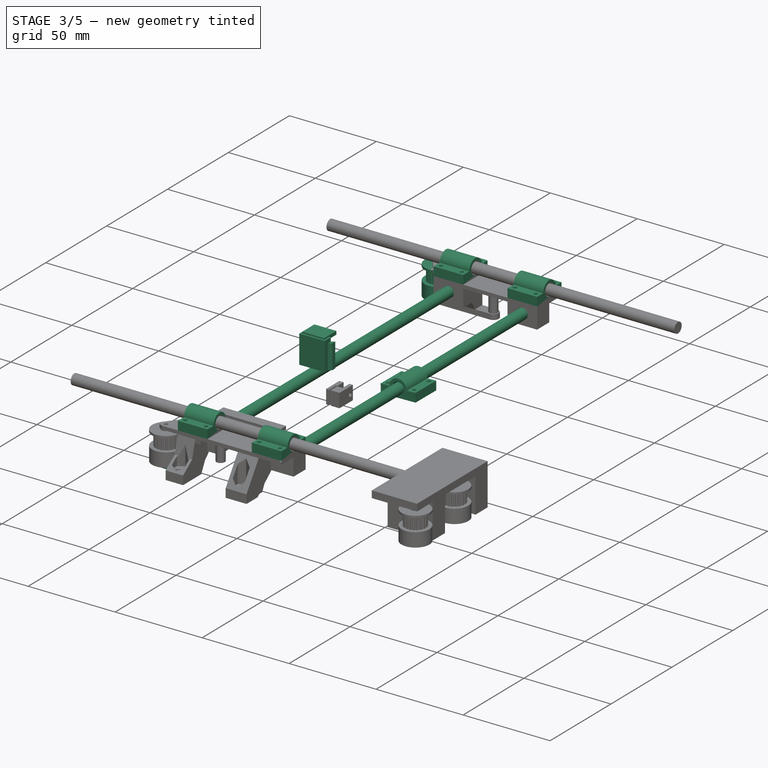
[diagram: stage 3 of 5 — iso view after this stage's code; geometry added in this stage tinted green]
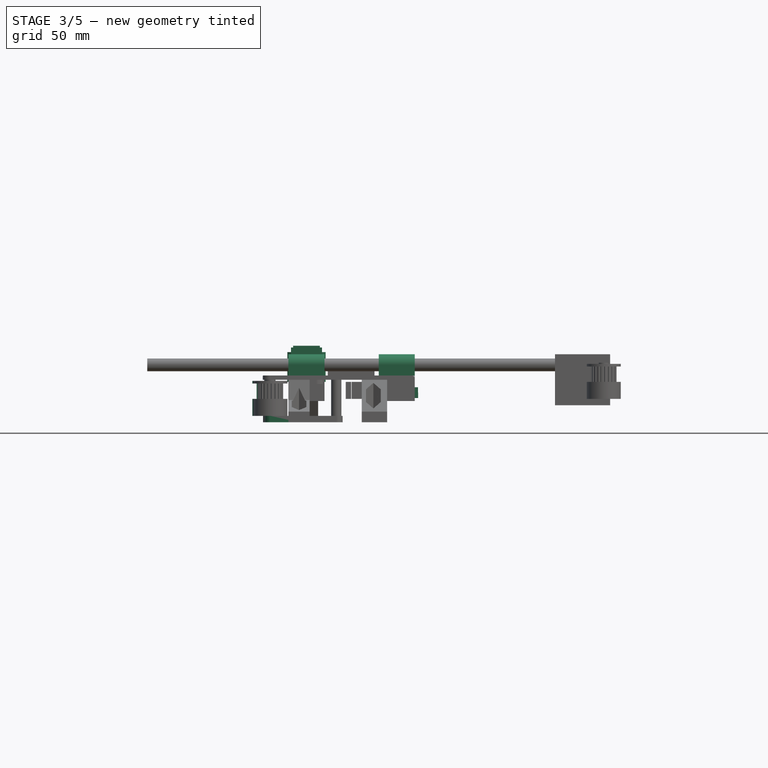
[diagram: stage 3 of 5 — front view after this stage's code; geometry added in this stage tinted green]
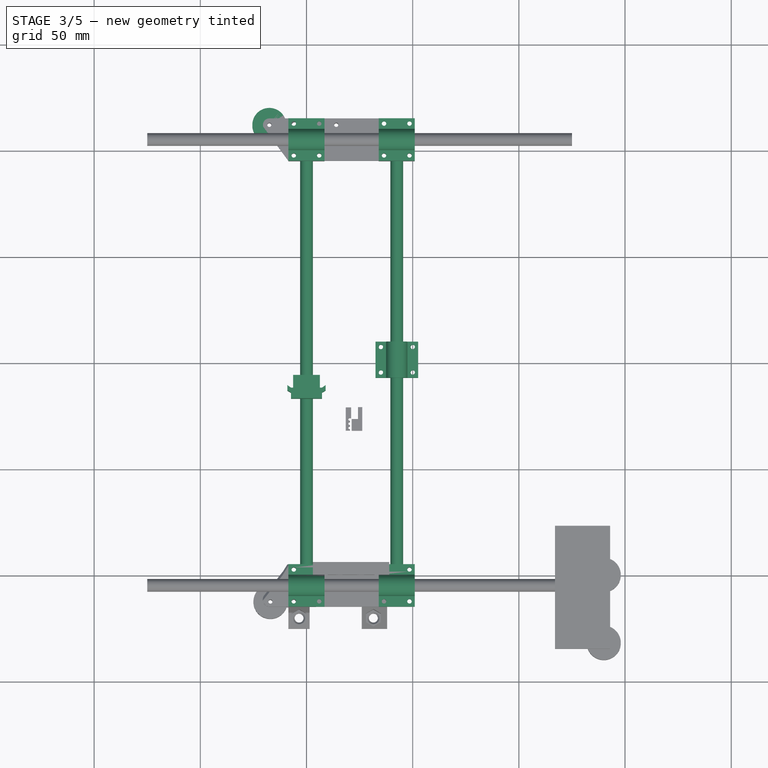
[diagram: stage 3 of 5 — top view after this stage's code; geometry added in this stage tinted green]
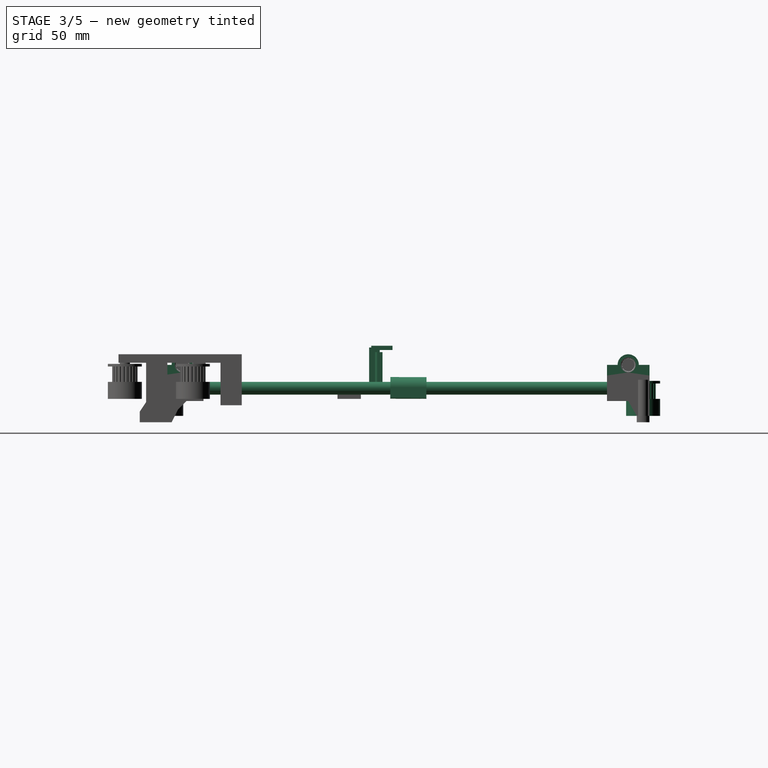
[diagram: stage 3 of 5 — right view after this stage's code; geometry added in this stage tinted green]
FEATURE [Sketcher::SketchObject] Sketch  label="Main Plate"
  Placement = pos=(0,0,0) rot=(1,0,0;1.5708rad)
  sketch-geometry (7):
    g0: LineSegment StartX=10 StartY=0 StartZ=0 EndX=10 EndY=-5 EndZ=0
    g1: LineSegment StartX=10 StartY=-5 StartZ=0 EndX=-10 EndY=-5 EndZ=0
    g2: LineSegment StartX=-10 StartY=-5 StartZ=0 EndX=-10 EndY=-1e-12 EndZ=0
    g3: Circle CenterX=0 CenterY=0 CenterZ=0 NormalX=0 NormalY=0 NormalZ=1 Radius=3.05
    g4: LineSegment StartX=-10 StartY=-1e-12 StartZ=0 EndX=-5 EndY=-1e-12 EndZ=0
    g5: LineSegment StartX=10 StartY=0 StartZ=0 EndX=5 EndY=0 EndZ=0
    g6: ArcOfCircle CenterX=0 CenterY=0 CenterZ=0 NormalX=0 NormalY=0 NormalZ=1 Radius=5 StartAngle=0 EndAngle=3.14159
  constraints (19):
    c: Coincident(g0,g1)
    c: Coincident(g1,g2)
    c: Horizontal(g1)
    c: Vertical(g0)
    c: Vertical(g2)
    c: DistanceX(g1,g1) = 20
    c: DistanceY(g2,g2) = 5
    c: Symmetric(g2,g0,g-1)
    c: Equal(g0,g2)
    c: Coincident(g3,g-1)
    c: Radius(g3) = 3.05
    c: Coincident(g4,g2)
    c: Horizontal(g4)
    c: Coincident(g5,g0)
    c: Horizontal(g5)
    c: Coincident(g6,g-1)
    c: Radius(g6) = 5
    c: Coincident(g6,g4)
    c: Coincident(g5,g6)
FEATURE [PartDesign::Pad] Pad
  Length = 7
  Length2 = 10
  Placement = pos=(0,0,0) rot=(1,0,0;1.5708rad)
  Sketch = -> Sketch
  Type = 4
FEATURE [Sketcher::SketchObject] Sketch001  label="Screw hole"
  ExternalGeometry = -> [Pad]
  Placement = pos=(0,0,-5) rot=(1,0,0;3.14159rad)
  Support = -> Pad [Face3]
  sketch-geometry (20):
    g0: LineSegment [constr] StartX=-10 StartY=7 StartZ=0 EndX=-7.5 EndY=7 EndZ=0
    g1: LineSegment [constr] StartX=-7.5 StartY=7 StartZ=0 EndX=-7.5 EndY=4.5 EndZ=0
    g2: LineSegment [constr] StartX=-7.5 StartY=4.5 StartZ=0 EndX=-10 EndY=4.5 EndZ=0
    g3: LineSegment [constr] StartX=-10 StartY=4.5 StartZ=0 EndX=-10 EndY=7 EndZ=0
    g4: Circle CenterX=-7.5 CenterY=4.5 CenterZ=0 NormalX=0 NormalY=0 NormalZ=1 Radius=1.05
    g5: LineSegment [constr] StartX=-10 StartY=-10 StartZ=0 EndX=-7.5 EndY=-10 EndZ=0
    g6: LineSegment [constr] StartX=-7.5 StartY=-10 StartZ=0 EndX=-7.5 EndY=-7.5 EndZ=0
    g7: LineSegment [constr] StartX=-7.5 StartY=-7.5 StartZ=0 EndX=-10 EndY=-7.5 EndZ=0
    g8: LineSegment [constr] StartX=-10 StartY=-7.5 StartZ=0 EndX=-10 EndY=-10 EndZ=0
    g9: LineSegment [constr] StartX=10 StartY=-10 StartZ=0 EndX=7.5 EndY=-10 EndZ=0
    g10: LineSegment [constr] StartX=7.5 StartY=-10 StartZ=0 EndX=7.5 EndY=-7.5 EndZ=0
    g11: LineSegment [constr] StartX=7.5 StartY=-7.5 StartZ=0 EndX=10 EndY=-7.5 EndZ=0
    g12: LineSegment [constr] StartX=10 StartY=-7.5 StartZ=0 EndX=10 EndY=-10 EndZ=0
    g13: LineSegment [constr] StartX=10 StartY=7 StartZ=0 EndX=7.5 EndY=7 EndZ=0
    g14: LineSegment [constr] StartX=7.5 StartY=7 StartZ=0 EndX=7.5 EndY=4.5 EndZ=0
    g15: LineSegment [constr] StartX=7.5 StartY=4.5 StartZ=0 EndX=10 EndY=4.5 EndZ=0
    g16: LineSegment [constr] StartX=10 StartY=4.5 StartZ=0 EndX=10 EndY=7 EndZ=0
    g17: Circle CenterX=-7.5 CenterY=-7.5 CenterZ=0 NormalX=0 NormalY=0 NormalZ=1 Radius=1.05
    g18: Circle CenterX=7.5 CenterY=-7.5 CenterZ=0 NormalX=0 NormalY=0 NormalZ=1 Radius=1.05
    g19: Circle CenterX=7.5 CenterY=4.5 CenterZ=0 NormalX=0 NormalY=0 NormalZ=1 Radius=1.05
  constraints (52):
    c: Coincident(g0,g1)
    c: Coincident(g1,g2)
    c: Coincident(g2,g3)
    c: Coincident(g3,g0)
    c: Horizontal(g0)
    c: Horizontal(g2)
    c: Vertical(g1)
    c: Vertical(g3)
    c: Coincident(g0,g-3)
    c: Equal(g1,g2)
    c: DistanceX(g2,g2) = 2.5
    c: Radius(g4) = 1.05
    c: Coincident(g4,g1)
    c: Coincident(g5,g6)
    c: Coincident(g6,g7)
    c: Coincident(g7,g8)
    c: Coincident(g8,g5)
    c: Horizontal(g5)
    c: Horizontal(g7)
    c: Vertical(g6)
    c: Vertical(g8)
    c: Coincident(g5,g-6)
    c: Coincident(g9,g10)
    c: Coincident(g10,g11)
    c: Coincident(g11,g12)
    c: Coincident(g12,g9)
    c: Horizontal(g9)
    c: Horizontal(g11)
    c: Vertical(g10)
    c: Vertical(g12)
    c: Coincident(g9,g-5)
    c: Coincident(g13,g14)
    c: Coincident(g14,g15)
    c: Coincident(g15,g16)
    c: Coincident(g16,g13)
    c: Horizontal(g13)
    c: Horizontal(g15)
    c: Vertical(g14)
    c: Vertical(g16)
    c: Equal(g2,g14)
    c: Equal(g14,g15)
    c: Equal(g15,g11)
    c: Equal(g11,g10)
    c: Equal(g10,g7)
    c: Equal(g7,g6)
    c: Coincident(g13,g-4)
    c: Coincident(g17,g6)
    c: Coincident(g18,g10)
    c: Coincident(g19,g14)
    c: Equal(g4,g17)
    c: Equal(g17,g19)
    c: Equal(g19,g18)
FEATURE [PartDesign::Pocket] Pocket
  Length = 5
  Placement = pos=(0,0,0) rot=(1,0,0;1.5708rad)
  Sketch = -> Sketch001
  Type = 0
FEATURE [PartDesign::Fillet] Fillet  label="Slider X1"
  Base = -> Pocket [Edge14,Edge19]
  Placement = pos=(0,0,0) rot=(1,0,0;1.5708rad)
  Radius = 0.5
FEATURE [Part::FeaturePython] Clone  label="Slider X2"  # Draft clone (typed FeaturePython)
  Objects = -> [Fillet]
  Placement = pos=(42.4928,-0.017909,0.256585) rot=(0.99991,-0.009714,0.009233;1.56746rad)
  Scale = (1,1,1)
FEATURE [App::DocumentObjectGroup] Group004  label="Dispenser arm"
  Group = -> [Pad007,Pad008,Pad009,Pocket003,Fillet002]
FEATURE [Part::Cylinder] Cylinder007  label="Rod X1"
  Angle = 360
  Height = 200
  Placement = pos=(0,100,0) rot=(1,0,0;1.5708rad)
  Radius = 3
FEATURE [Part::Cylinder] Cylinder008  label="Rod X2"
  Angle = 360
  Height = 200
  Placement = pos=(42.5,100,0) rot=(1,0,0;1.5708rad)
  Radius = 3
FEATURE [Part::FeaturePython] Clone001  label="Slider Y11"  # Draft clone (typed FeaturePython)
  Objects = -> [Fillet]
  Placement = pos=(44,-105,11) rot=(0.57735,0.57735,0.57735;2.0944rad)
  Scale = (1,1,1)
FEATURE [Part::FeaturePython] Clone002  label="Slider Y12"  # Draft clone (typed FeaturePython)
  Objects = -> [Fillet]
  Placement = pos=(1.5,-105,11) rot=(0.57735,0.57735,0.57735;2.0944rad)
  Scale = (1,1,1)
FEATURE [Part::FeaturePython] Clone003  label="Slider Y21"  # Draft clone (typed FeaturePython)
  Objects = -> [Fillet]
  Placement = pos=(44,105,11) rot=(0.57735,0.57735,0.57735;2.0944rad)
  Scale = (1,1,1)
FEATURE [Part::FeaturePython] Clone004  label="Slider Y22"  # Draft clone (typed FeaturePython)
  Objects = -> [Fillet]
  Placement = pos=(1.5,105,11) rot=(0.57735,0.57735,0.57735;2.0944rad)
  Scale = (1,1,1)
FEATURE [Part::Cylinder] Cylinder009  label="Principal_body"
  Angle = 360
  Height = 19
  Radius = 14
FEATURE [Sketcher::SketchObject] Sketch023
  Placement = pos=(0,0,18.2) rot=(0,0,1;0rad)
  sketch-geometry (6):
    g0: ArcOfCircle CenterX=-17.5 CenterY=0 CenterZ=0 NormalX=0 NormalY=0 NormalZ=1 Radius=3.5 StartAngle=1.5708 EndAngle=4.71239
    g1: ArcOfCircle CenterX=17.5 CenterY=0 CenterZ=0 NormalX=0 NormalY=0 NormalZ=1 Radius=3.5 StartAngle=4.71239 EndAngle=7.85398
    g2: LineSegment StartX=-17.5 StartY=-3.5 StartZ=0 EndX=17.5 EndY=-3.5 EndZ=0
    g3: LineSegment StartX=-17.5 StartY=3.5 StartZ=0 EndX=17.5 EndY=3.5 EndZ=0
    g4: Circle CenterX=-17.5 CenterY=0 CenterZ=0 NormalX=0 NormalY=0 NormalZ=1 Radius=2.1
    g5: Circle CenterX=17.5 CenterY=0 CenterZ=0 NormalX=0 NormalY=0 NormalZ=1 Radius=2.1
  constraints (14):
    c: Tangent(g0,g3) = 1.5708
    c: Tangent(g0,g2) = -1.5708
    c: Tangent(g2,g1) = -1.5708
    c: Tangent(g3,g1) = 1.5708
    c: Horizontal(g2)
    c: Equal(g0,g1)
    c: Symmetric(g0,g1,g-2)
    c: PointOnObject(g0,g-1)
    c: Coincident(g4,g0)
    c: Coincident(g5,g1)
    c: Radius(g4) = 2.1
    c: Radius(g0) = 3.5
    c: Equal(g4,g5)
    c: DistanceX(g0,g1) = 35
FEATURE [PartDesign::Pad] Pad012
  Length = 0.8
  Length2 = 100
  Placement = pos=(0,0,18.2) rot=(0,0,1;0rad)
  Sketch = -> Sketch023
  Type = 0
FEATURE [Part::Fuse] Fusion007004
  Base = -> Cylinder009
  Tool = -> Pad012
FEATURE [Part::Cylinder] Cylinder010  label="Cilindro003"
  Angle = 360
  Height = 1.5
  Placement = pos=(0,8,19) rot=(0,0,1;0rad)
  Radius = 4.5
FEATURE [Part::Fuse] Fusion002  label="Cilindric_Body"
  Base = -> Fusion007004
  Tool = -> Cylinder010
FEATURE [Part::Box] Box006  label="Cubo006"
  Height = 1
  Length = 12.6
  Placement = pos=(-6.3,-16,18) rot=(0,0,1;0rad)
  Width = 10
FEATURE [Part::Fuse] Fusion007006  label="Body"
  Base = -> Fusion002
  Tool = -> Box006
FEATURE [Part::Box] Box007  label="Cubo007"
  Height = 16.2
  Length = 14.6
  Placement = pos=(-7.3,-17,3) rot=(0,0,1;0rad)
  Width = 5
FEATURE [Part::Cut] Cut005  label="Plastic_base"
  Base = -> Box007
  Tool = -> Fusion007006
FEATURE [Part::Cylinder] Cylinder012  label="Cilindro004"
  Angle = 80
  Height = 14
  Placement = pos=(0,0,3) rot=(0,0,1;4.01426rad)
  Radius = 16
FEATURE [Part::Cut] Cut006
  Base = -> Cylinder012
  Tool = -> Fusion007006
FEATURE [Part::Box] Box008  label="Cubo008"
  Height = 20
  Length = 3
  Placement = pos=(9,-15,0) rot=(0,0,1;0rad)
  Width = 6
FEATURE [Part::Box] Box009  label="Cubo009"
  Height = 20
  Length = 3
  Placement = pos=(-12,-15,0) rot=(0,0,1;0rad)
  Width = 6
FEATURE [Part::Fuse] Fusion007007  label="Arco_plastico"
  Base = -> Box008
  Tool = -> Box009
FEATURE [Part::Cut] Cut007
  Base = -> Cut006
  Tool = -> Fusion007007
FEATURE [Part::Fuse] Fusion007008  label="Plastic_base_complete"
  Base = -> Cut005
  Tool = -> Cut007
FEATURE [App::DocumentObjectGroup] Grupo  label="Axis"
  Group = -> [Cut004]
FEATURE [Part::Box] Box010  label="Cubo010"
  Height = 2
  Length = 12.6
  Placement = pos=(-6.3,-16,18) rot=(0,0,1;0rad)
  Width = 10
FEATURE [Sketcher::SketchObject] Sketch054
  ExternalGeometry = -> [Chamfer001]
  Placement = pos=(51,-95,-13) rot=(1,0,0;3.14159rad)
  Support = -> Chamfer001 [Face73]
  sketch-geometry (1):
    g0: Circle CenterX=-68 CenterY=17.5 CenterZ=0 NormalX=0 NormalY=0 NormalZ=1 Radius=1
  constraints (2):
    c: Coincident(g0,g-3)
    c: Radius(g0) = 1
FEATURE [PartDesign::Pocket] Pocket025  label="X1 Outer spindle screw hole"
  Length = 5
  Placement = pos=(51,-95,6) rot=(1,0,0;3.14159rad)
  Sketch = -> Sketch054
  Type = 1
FEATURE [Sketcher::SketchObject] Sketch055
  Placement = pos=(-6,-112.5,-13) rot=(1,0,0;3.14159rad)
  sketch-geometry (9):
    g0: Circle CenterX=0 CenterY=0 CenterZ=0 NormalX=0 NormalY=0 NormalZ=1 Radius=1.1
    g1: Circle CenterX=-11 CenterY=0 CenterZ=0 NormalX=0 NormalY=0 NormalZ=1 Radius=1.1
    g2: LineSegment [constr] StartX=-11 StartY=0 StartZ=0 EndX=0 EndY=0 EndZ=0
    g3: LineSegment StartX=2.5 StartY=2.5 StartZ=0 EndX=-11 EndY=2.5 EndZ=0
    g4: LineSegment StartX=2.5 StartY=2.5 StartZ=0 EndX=2.5 EndY=-2.5 EndZ=0
    g5: LineSegment StartX=2.5 StartY=-2.5 StartZ=0 EndX=-11 EndY=-2.5 EndZ=0
    g6: ArcOfCircle CenterX=-11 CenterY=0 CenterZ=0 NormalX=0 NormalY=0 NormalZ=1 Radius=2.5 StartAngle=1.5708 EndAngle=4.71239
    g7: LineSegment [constr] StartX=0 StartY=0 StartZ=0 EndX=0 EndY=2.5 EndZ=0
    g8: LineSegment [constr] StartX=0 StartY=0 StartZ=0 EndX=2.5 EndY=0 EndZ=0
  constraints (25):
    c: Coincident(g0,g-1)
    c: PointOnObject(g1,g-1)
    c: Coincident(g2,g1)
    c: Coincident(g2,g-1)
    c: DistanceX(g2,g2) = 11
    c: Radius(g1) = 1.1
    c: Radius(g0) = 1.1
    c: Horizontal(g3)
    c: Coincident(g4,g3)
    c: Vertical(g4)
    c: Coincident(g5,g4)
    c: Horizontal(g5)
    c: Coincident(g6,g1)
    c: Coincident(g6,g3)
    c: Coincident(g6,g5)
    c: DistanceX(g3,g3) = 13.5
    c: Equal(g5,g3)
    c: DistanceY(g4,g4) = 5
    c: Coincident(g7,g-1)
    c: PointOnObject(g7,g-2)
    c: Coincident(g8,g-1)
    c: PointOnObject(g8,g-1)
    c: Equal(g8,g7)
    c: DistanceX(g8,g8) = 2.5
    c: PointOnObject(g8,g4)
FEATURE [PartDesign::Pad] Pad025  label="X1 outer pulley spindle support"
  Length = 3
  Length2 = 100
  Placement = pos=(-6,-112.5,-13) rot=(1,0,0;3.14159rad)
  Sketch = -> Sketch055
  Type = 0
FEATURE [Part::FeaturePython] Clone007  label="X3 Pulley"  # Draft clone (typed FeaturePython)
  Objects = -> [Pocket009]
  Placement = pos=(14,112,-13) rot=(0,0,1;3.14159rad)
  Scale = (1,1,1)
FEATURE [Part::FeaturePython] Clone008  label="X4 Pulley"  # Draft clone (typed FeaturePython)
  Objects = -> [Clone007]
  Placement = pos=(-17.5,112,-13) rot=(0,0,1;3.14159rad)
  Scale = (1,1,1)
FEATURE [PartDesign::Chamfer] Chamfer003  label="Chamfered nut holes"
  Base = -> Pocket025 [Edge281,Edge230,Edge184]
  Placement = pos=(51,-95,6) rot=(1,0,0;3.14159rad)
  Size = 0.8
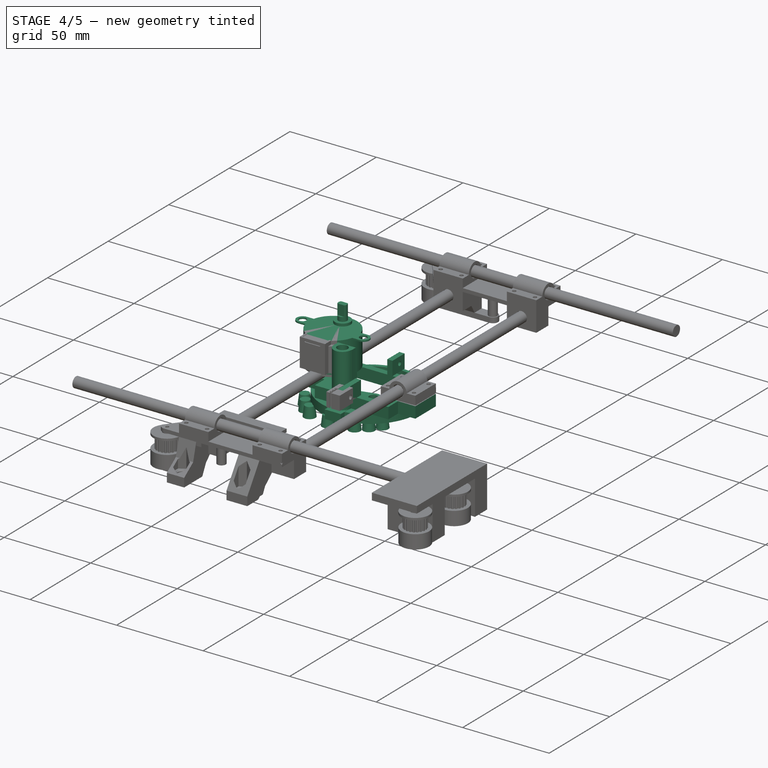
[diagram: stage 4 of 5 — iso view after this stage's code; geometry added in this stage tinted green]
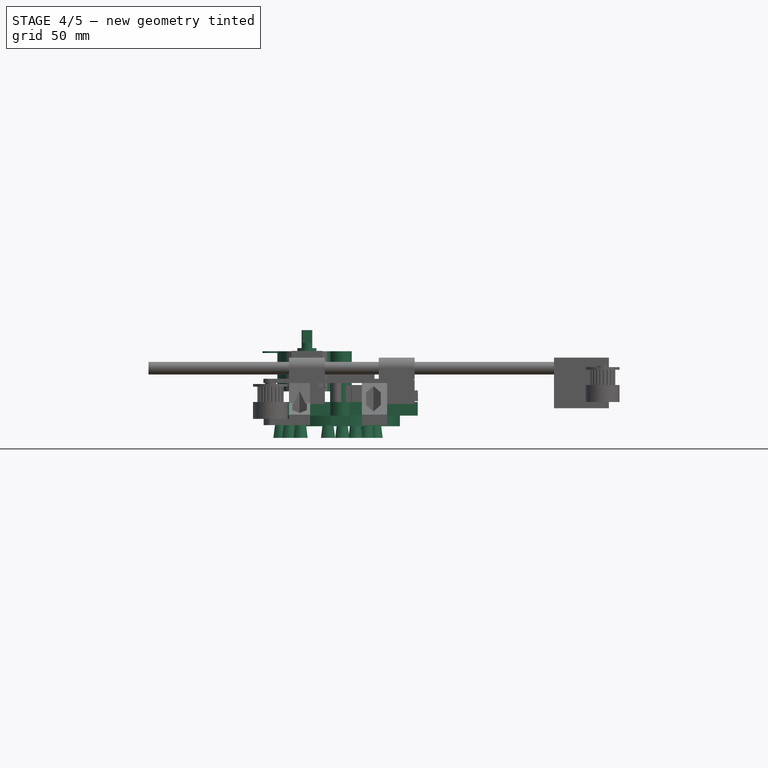
[diagram: stage 4 of 5 — front view after this stage's code; geometry added in this stage tinted green]
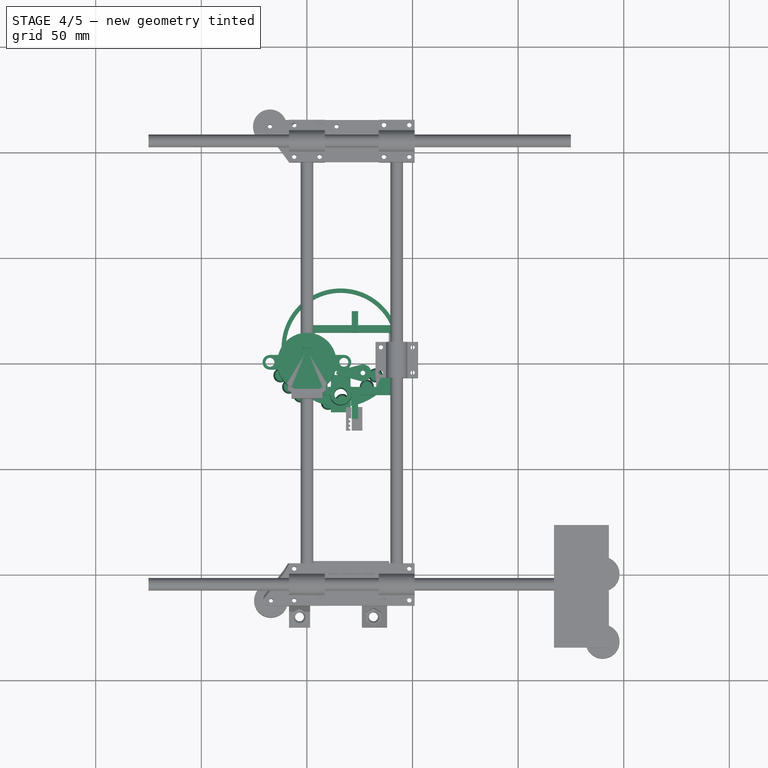
[diagram: stage 4 of 5 — top view after this stage's code; geometry added in this stage tinted green]
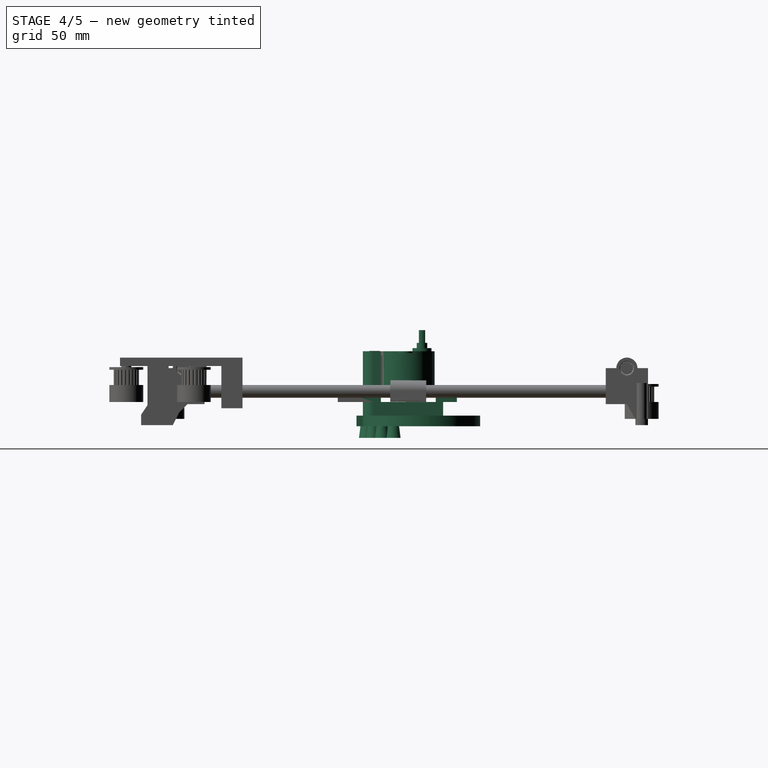
[diagram: stage 4 of 5 — right view after this stage's code; geometry added in this stage tinted green]
FEATURE [Part::Cone] Cone003
  Angle = 360
  Height = 6
  Placement = pos=(-3,-15.0167,-16) rot=(0.866025,0.5,0;3.14159rad)
  Radius1 = 2.6
  Radius2 = 3.35
FEATURE [Part::Cone] Cone004
  Angle = 360
  Height = 6
  Placement = pos=(-8.38478,-10.8848,-16) rot=(0.92388,0.382683,0;3.14159rad)
  Radius1 = 2.6
  Radius2 = 3.35
FEATURE [Part::Cone] Cone005
  Angle = 360
  Height = 6
  Placement = pos=(-12.5167,-5.5,-16) rot=(0.965926,0.258819,0;3.14159rad)
  Radius1 = 2.6
  Radius2 = 3.35
FEATURE [Part::Cone] Cone006
  Angle = 360
  Height = 6
  Placement = pos=(10,-18.5,-16) rot=(0.707107,0.707107,0;3.14159rad)
  Radius1 = 2.6
  Radius2 = 3.35
FEATURE [Part::Cone] Cone007
  Angle = 360
  Height = 6
  Placement = pos=(16.7293,-17.6141,-16) rot=(0.608761,0.793353,0;3.14159rad)
  Radius1 = 2.6
  Radius2 = 3.35
FEATURE [Part::Cone] Cone008
  Angle = 360
  Height = 6
  Placement = pos=(23,-15.0167,-16) rot=(0.5,0.866025,0;3.14159rad)
  Radius1 = 2.6
  Radius2 = 3.35
FEATURE [Part::Cone] Cone009
  Angle = 360
  Height = 6
  Placement = pos=(28.3848,-10.8848,-16) rot=(0.382683,0.92388,0;3.14159rad)
  Radius1 = 2.6
  Radius2 = 3.35
FEATURE [Part::Cone] Cone010
  Angle = 360
  Height = 6
  Placement = pos=(32.5167,-5.5,-16) rot=(0.258819,0.965926,0;3.14159rad)
  Radius1 = 2.6
  Radius2 = 3.35
FEATURE [App::DocumentObjectGroup] Group  label="Color Wheel"
  Group = -> [Pad001,Cut003,Pad002,Pad003]
FEATURE [Sketcher::SketchObject] Sketch009  label="Dispenser platform Sketch"
  Placement = pos=(0,0,-5) rot=(0,0,1;0rad)
  sketch-geometry (54):
    g0: LineSegment StartX=42.5 StartY=10 StartZ=0 EndX=52.5 EndY=10 EndZ=0
    g1: LineSegment StartX=0 StartY=10 StartZ=0 EndX=-10 EndY=10 EndZ=0
    g2: LineSegment StartX=38.75 StartY=14.5 StartZ=0 EndX=38.75 EndY=0.5 EndZ=0
    g3: LineSegment StartX=32.75 StartY=-11.5 StartZ=0 EndX=9.75 EndY=-11.5 EndZ=0
    g4: Circle CenterX=16 CenterY=-15 CenterZ=0 NormalX=0 NormalY=0 NormalZ=1 Radius=3
    g5: ArcOfCircle CenterX=16 CenterY=-15 CenterZ=0 NormalX=0 NormalY=0 NormalZ=1 Radius=5 StartAngle=3.14159 EndAngle=6.28319
    g6: LineSegment StartX=0 StartY=-15 StartZ=0 EndX=11 EndY=-15 EndZ=0
    g7: LineSegment StartX=42.5 StartY=-15 StartZ=0 EndX=21 EndY=-15 EndZ=0
    g8: LineSegment [constr] StartX=21 StartY=-15 StartZ=0 EndX=11 EndY=-15 EndZ=0
    g9: LineSegment StartX=0 StartY=18 StartZ=0 EndX=42.5 EndY=18 EndZ=0
    g10: LineSegment StartX=42.5 StartY=18 StartZ=0 EndX=42.5 EndY=10 EndZ=0
    g11: LineSegment StartX=0 StartY=10 StartZ=0 EndX=0 EndY=18 EndZ=0
    g12: LineSegment StartX=3.75 StartY=14.5 StartZ=0 EndX=38.75 EndY=14.5 EndZ=0
    g13: LineSegment StartX=-10 StartY=10 StartZ=0 EndX=-10 EndY=-7 EndZ=0
    g14: LineSegment StartX=-10 StartY=-7 StartZ=0 EndX=0 EndY=-7 EndZ=0
    g15: LineSegment StartX=0 StartY=-7 StartZ=0 EndX=0 EndY=-15 EndZ=0
    g16: LineSegment StartX=52.5 StartY=10 StartZ=0 EndX=52.5 EndY=-7 EndZ=0
    g17: LineSegment StartX=52.5 StartY=-7 StartZ=0 EndX=42.5 EndY=-7 EndZ=0
    g18: LineSegment StartX=42.5 StartY=-7 StartZ=0 EndX=42.5 EndY=-15 EndZ=0
    g19: Circle CenterX=-7.5 CenterY=-4.5 CenterZ=0 NormalX=0 NormalY=0 NormalZ=1 Radius=1.1
    g20: LineSegment [constr] StartX=-10 StartY=-7 StartZ=0 EndX=-7.5 EndY=-7 EndZ=0
    g21: LineSegment [constr] StartX=-7.5 StartY=-7 StartZ=0 EndX=-7.5 EndY=-4.5 EndZ=0
    g22: LineSegment [constr] StartX=-7.5 StartY=-4.5 StartZ=0 EndX=-10 EndY=-4.5 EndZ=0
    g23: LineSegment [constr] StartX=-10 StartY=-4.5 StartZ=0 EndX=-10 EndY=-7 EndZ=0
    g24: LineSegment [constr] StartX=-10 StartY=10 StartZ=0 EndX=-7.5 EndY=10 EndZ=0
    g25: LineSegment [constr] StartX=-7.5 StartY=10 StartZ=0 EndX=-7.5 EndY=7.5 EndZ=0
    g26: LineSegment [constr] StartX=-7.5 StartY=7.5 StartZ=0 EndX=-10 EndY=7.5 EndZ=0
    g27: LineSegment [constr] StartX=-10 StartY=7.5 StartZ=0 EndX=-10 EndY=10 EndZ=0
    g28: Circle CenterX=-7.5 CenterY=7.5 CenterZ=0 NormalX=0 NormalY=0 NormalZ=1 Radius=1.1
    g29: LineSegment [constr] StartX=52.5 StartY=-7 StartZ=0 EndX=50 EndY=-7 EndZ=0
    g30: LineSegment [constr] StartX=50 StartY=-7 StartZ=0 EndX=50 EndY=-4.5 EndZ=0
    g31: LineSegment [constr] StartX=50 StartY=-4.5 StartZ=0 EndX=52.5 EndY=-4.5 EndZ=0
    g32: LineSegment [constr] StartX=52.5 StartY=-4.5 StartZ=0 EndX=52.5 EndY=-7 EndZ=0
    g33: LineSegment [constr] StartX=52.5 StartY=10 StartZ=0 EndX=50 EndY=10 EndZ=0
    g34: LineSegment [constr] StartX=50 StartY=10 StartZ=0 EndX=50 EndY=7.5 EndZ=0
    g35: LineSegment [constr] StartX=50 StartY=7.5 StartZ=0 EndX=52.5 EndY=7.5 EndZ=0
    g36: LineSegment [constr] StartX=52.5 StartY=7.5 StartZ=0 EndX=52.5 EndY=10 EndZ=0
    g37: Circle CenterX=50 CenterY=7.5 CenterZ=0 NormalX=0 NormalY=0 NormalZ=1 Radius=1.1
    g38: Circle CenterX=50 CenterY=-4.5 CenterZ=0 NormalX=0 NormalY=0 NormalZ=1 Radius=1.1
    g39: LineSegment StartX=3.75 StartY=14.5 StartZ=0 EndX=3.75 EndY=0.5 EndZ=0
    g40: LineSegment StartX=9.75 StartY=-11.5 StartZ=0 EndX=9.75 EndY=0.5 EndZ=0
    g41: LineSegment StartX=9.75 StartY=0.5 StartZ=0 EndX=3.75 EndY=0.5 EndZ=0
    g42: LineSegment StartX=38.75 StartY=0.5 StartZ=0 EndX=32.75 EndY=0.5 EndZ=0
    g43: LineSegment StartX=32.75 StartY=0.5 StartZ=0 EndX=32.75 EndY=-11.5 EndZ=0
    g44: LineSegment [constr] StartX=3.75 StartY=18 StartZ=0 EndX=3.75 EndY=14.5 EndZ=0
    g45: LineSegment [constr] StartX=0 StartY=14.5 StartZ=0 EndX=3.75 EndY=14.5 EndZ=0
    g46: LineSegment [constr] StartX=0 StartY=0 StartZ=0 EndX=-10 EndY=0 EndZ=0
    g47: LineSegment [constr] StartX=0 StartY=-7 StartZ=0 EndX=0 EndY=0 EndZ=0
    g48: Circle CenterX=7.5 CenterY=-4.5 CenterZ=0 NormalX=0 NormalY=0 NormalZ=1 Radius=1.1
    g49: LineSegment [constr] StartX=7.5 StartY=-4.5 StartZ=0 EndX=9.75 EndY=-4.5 EndZ=0
    g50: LineSegment [constr] StartX=7.5 StartY=0.5 StartZ=0 EndX=7.5 EndY=-4.5 EndZ=0
    g51: Circle CenterX=35 CenterY=-4.5 CenterZ=0 NormalX=0 NormalY=0 NormalZ=1 Radius=1.1
    g52: LineSegment [constr] StartX=35 StartY=-4.5 StartZ=0 EndX=32.75 EndY=-4.5 EndZ=0
    g53: LineSegment [constr] StartX=35 StartY=0.5 StartZ=0 EndX=35 EndY=-4.5 EndZ=0
  constraints (158):
    c: DistanceX(g6,g7) = 42.5
    c: Horizontal(g0)
    c: Horizontal(g1)
    c: Vertical(g2)
    c: Horizontal(g3)
    c: Radius(g4) = 3
    c: Coincident(g5,g4)
    c: Angle(g5) = 3.14159
    c: Coincident(g5,g7)
    c: Horizontal(g7)
    c: Horizontal(g6)
    c: Coincident(g5,g6)
    c: DistanceY(g6,g1) = 25
    c: Horizontal(g8)
    c: Coincident(g5,g8)
    c: Coincident(g5,g8)
    c: Horizontal(g9)
    c: Coincident(g12,g2)
    c: Coincident(g1,g11)
    c: Coincident(g9,g11)
    c: Vertical(g11)
    c: Coincident(g9,g10)
    c: Coincident(g0,g10)
    c: Vertical(g10)
    c: Horizontal(g12)
    c: Equal(g11,g10)
    c: Equal(g0,g1)
    c: DistanceX(g12,g12) = 35
    c: DistanceY(g10,g10) = 8
    c: DistanceX(g0,g0) = 10
    c: DistanceX(g7,g7) = 21.5
    c: Radius(g5) = 5
    c: Coincident(g13,g1)
    c: Vertical(g13)
    c: Coincident(g14,g13)
    c: Horizontal(g14)
    c: Coincident(g15,g14)
    c: Coincident(g15,g6)
    c: Vertical(g15)
    c: Coincident(g16,g0)
    c: Vertical(g16)
    c: Coincident(g17,g16)
    c: Horizontal(g17)
    c: Coincident(g18,g17)
    c: Coincident(g18,g7)
    c: Vertical(g18)
    c: Equal(g13,g16)
    c: DistanceY(g16,g16) = 17
    c: Equal(g14,g17)
    c: Equal(g17,g0)
    c: Equal(g0,g1)
    c: Radius(g19) = 1.1
    c: Coincident(g20,g21)
    c: Coincident(g21,g22)
    c: Coincident(g22,g23)
    c: Coincident(g23,g20)
    c: Horizontal(g20)
    c: Horizontal(g22)
    c: Vertical(g21)
    c: Vertical(g23)
    c: Coincident(g20,g13)
    c: Coincident(g21,g19)
    c: DistanceY(g21,g21) = 2.5
    c: Equal(g21,g22)
    c: Coincident(g24,g25)
    c: Coincident(g25,g26)
    c: Coincident(g26,g27)
    c: Coincident(g27,g24)
    c: Horizontal(g24)
    c: Horizontal(g26)
    c: Vertical(g25)
    c: Vertical(g27)
    c: Coincident(g24,g1)
    c: Equal(g25,g26)
    c: Coincident(g28,g25)
    c: Equal(g28,g19)
    c: Equal(g25,g21)
    c: Coincident(g29,g30)
    c: Coincident(g30,g31)
    c: Coincident(g31,g32)
    c: Coincident(g32,g29)
    c: Horizontal(g29)
    c: Horizontal(g31)
    c: Vertical(g30)
    c: Vertical(g32)
    c: Coincident(g29,g16)
    c: Coincident(g33,g34)
    c: Coincident(g34,g35)
    c: Coincident(g35,g36)
    c: Coincident(g36,g33)
    c: Horizontal(g33)
    c: Horizontal(g35)
    c: Vertical(g34)
    c: Vertical(g36)
    c: Coincident(g33,g0)
    c: Equal(g35,g34)
    c: Equal(g34,g31)
    c: Equal(g31,g30)
    c: Equal(g30,g21)
    c: Coincident(g37,g34)
    c: Coincident(g38,g30)
    c: Equal(g38,g37)
    c: Equal(g37,g19)
    c: Vertical(g39)
    c: Vertical(g40)
    c: Horizontal(g41)
    c: Coincident(g3,g40)
    c: Coincident(g40,g41)
    c: Coincident(g39,g41)
    c: Coincident(g12,g39)
    c: DistanceY(g2,g2) = 14
    c: Coincident(g3,g43)
    c: Coincident(g42,g43)
    c: Coincident(g2,g42)
    c: Vertical(g43)
    c: Horizontal(g42)
    c: Equal(g43,g40)
    c: DistanceY(g43,g43) = 12
    c: Equal(g41,g42)
    c: DistanceX(g42,g42) = 6
    c: PointOnObject(g44,g9)
    c: Vertical(g44)
    c: DistanceY(g44,g44) = 3.5
    c: PointOnObject(g45,g-2)
    c: Horizontal(g45)
    c: DistanceX(g45,g45) = 3.75
    c: PointOnObject(g46,g13)
    c: Horizontal(g46)
    c: PointOnObject(g46,g-2)
    c: DistanceX(g46,g46) = 10
    c: PointOnObject(g47,g14)
    c: PointOnObject(g47,g-1)
    c: Vertical(g47)
    c: DistanceY(g47,g47) = 7
    c: Equal(g39,g2)
    c: Coincident(g14,g47)
    c: Coincident(g46,g47)
    c: Coincident(g12,g45)
    c: Coincident(g12,g44)
    c: Radius(g48) = 1.1
    c: Coincident(g49,g48)
    c: PointOnObject(g49,g40)
    c: Horizontal(g49)
    c: DistanceX(g49,g49) = 2.25
    c: PointOnObject(g50,g41)
    c: Vertical(g50)
    c: DistanceY(g50,g50) = 5
    c: Coincident(g48,g50)
    c: Radius(g51) = 1.1
    c: Coincident(g52,g51)
    c: PointOnObject(g52,g43)
    c: Horizontal(g52)
    c: DistanceX(g52,g52) = 2.25
    c: PointOnObject(g53,g42)
    c: PointOnObject(g53,g52)
    c: Vertical(g53)
    c: DistanceY(g53,g53) = 5
    c: Coincident(g51,g53)
FEATURE [PartDesign::Pad] Pad004  label="Dispenser platform pad"
  Length = 6.5
  Length2 = 100
  Placement = pos=(0,0,-5) rot=(0,0,1;0rad)
  Reversed = true
  Sketch = -> Sketch009
  Type = 0
FEATURE [Sketcher::SketchObject] Sketch010  label="Support Ring"
  ExternalGeometry = -> [Pad004]
  Placement = pos=(0,0,-11.5) rot=(1,0,0;3.14159rad)
  Support = -> Pad004 [Face31]
  sketch-geometry (8):
    g0: LineSegment StartX=16 StartY=15 StartZ=0 EndX=16 EndY=-7.5 EndZ=0
    g1: ArcOfCircle CenterX=16 CenterY=-7.5 CenterZ=0 NormalX=0 NormalY=0 NormalZ=1 Radius=26 StartAngle=2.34474 EndAngle=7.08004
    g2: ArcOfCircle CenterX=16 CenterY=-7.5 CenterZ=0 NormalX=0 NormalY=0 NormalZ=1 Radius=28 StartAngle=1.74126 EndAngle=7.68351
    g3: LineSegment StartX=11.25 StartY=20.0942 StartZ=0 EndX=11.25 EndY=11.0942 EndZ=0
    g4: LineSegment StartX=20.75 StartY=20.0942 StartZ=0 EndX=20.75 EndY=11.0942 EndZ=0
    g5: LineSegment [constr] StartX=11.25 StartY=20.0942 StartZ=0 EndX=20.75 EndY=20.0942 EndZ=0
    g6: LineSegment StartX=-2.17298 StartY=11.0942 StartZ=0 EndX=11.25 EndY=11.0942 EndZ=0
    g7: LineSegment StartX=34.173 StartY=11.0942 StartZ=0 EndX=20.75 EndY=11.0942 EndZ=0
  constraints (24):
    c: Coincident(g0,g-3)
    c: Vertical(g0)
    c: DistanceY(g0,g0) = 22.5
    c: Coincident(g1,g0)
    c: Coincident(g2,g0)
    c: Coincident(g3,g2)
    c: Coincident(g4,g2)
    c: Vertical(g4)
    c: Radius(g1) = 26
    c: Radius(g2) = 28
    c: Vertical(g3)
    c: Coincident(g5,g2)
    c: Coincident(g5,g2)
    c: Horizontal(g5)
    c: DistanceX(g5,g5) = 9.5
    c: Horizontal(g6)
    c: Coincident(g7,g1)
    c: Horizontal(g7)
    c: Coincident(g1,g6)
    c: Coincident(g3,g6)
    c: Coincident(g4,g7)
    c: Equal(g3,g4)
    c: DistanceY(g3,g3) = 9
    c: Coincident(g0,g-4)
FEATURE [PartDesign::Pad] Pad005  label="Support Ring pad"
  Length = 5
  Length2 = 100
  Placement = pos=(0,0,-5) rot=(0,0,1;0rad)
  Sketch = -> Sketch010
  Type = 0
FEATURE [Sketcher::SketchObject] Sketch011  label="Slide base"
  Placement = pos=(16,-15,-11.5) rot=(0,0,1;0rad)
  sketch-geometry (13):
    g0: Circle CenterX=0 CenterY=0 CenterZ=0 NormalX=0 NormalY=0 NormalZ=1 Radius=3
    g1: LineSegment StartX=-4.625 StartY=-8 StartZ=0 EndX=4.625 EndY=-8 EndZ=0
    g2: LineSegment StartX=4.625 StartY=-8 StartZ=0 EndX=4.625 EndY=13 EndZ=0
    g3: LineSegment StartX=4.625 StartY=13 StartZ=0 EndX=-4.625 EndY=13 EndZ=0
    g4: LineSegment StartX=-4.625 StartY=13 StartZ=0 EndX=-4.625 EndY=-8 EndZ=0
    g5: LineSegment [constr] StartX=0 StartY=0 StartZ=0 EndX=0 EndY=-8 EndZ=0
    g6: LineSegment [constr] StartX=-4.625 StartY=0 StartZ=0 EndX=0 EndY=0 EndZ=0
    g7: ArcOfCircle CenterX=-2.375 CenterY=10.5 CenterZ=0 NormalX=0 NormalY=0 NormalZ=1 Radius=1 StartAngle=1.5708 EndAngle=4.71239
    g8: ArcOfCircle CenterX=2.625 CenterY=10.5 CenterZ=0 NormalX=0 NormalY=0 NormalZ=1 Radius=1 StartAngle=4.71239 EndAngle=7.85398
    g9: LineSegment StartX=-2.375 StartY=9.5 StartZ=0 EndX=2.625 EndY=9.5 EndZ=0
    g10: LineSegment StartX=-2.375 StartY=11.5 StartZ=0 EndX=2.625 EndY=11.5 EndZ=0
    g11: LineSegment [constr] StartX=-4.625 StartY=10.5 StartZ=0 EndX=-2.375 EndY=10.5 EndZ=0
    g12: LineSegment [constr] StartX=2.625 StartY=10.5 StartZ=0 EndX=2.625 EndY=13 EndZ=0
  constraints (37):
    c: Radius(g0) = 3
    c: Coincident(g-1,g0)
    c: Coincident(g1,g2)
    c: Coincident(g2,g3)
    c: Coincident(g3,g4)
    c: Coincident(g4,g1)
    c: Horizontal(g1)
    c: Horizontal(g3)
    c: Vertical(g2)
    c: Vertical(g4)
    c: Vertical(g5)
    c: DistanceY(g5,g5) = 8
    c: PointOnObject(g5,g1)
    c: Coincident(g0,g5)
    c: PointOnObject(g6,g4)
    c: Horizontal(g6)
    c: DistanceX(g6,g6) = 4.625
    c: Coincident(g0,g6)
    c: DistanceX(g1,g1) = 9.25
    c: DistanceY(g2,g2) = 21
    c: Tangent(g7,g10) = 1.5708
    c: Tangent(g7,g9) = -1.5708
    c: Tangent(g9,g8) = -1.5708
    c: Tangent(g10,g8) = 1.5708
    c: Horizontal(g9)
    c: Equal(g7,g8)
    c: Radius(g7) = 1
    c: Distance(g9) = 5
    c: Equal(g9,g10)
    c: PointOnObject(g11,g4)
    c: Horizontal(g11)
    c: Coincident(g7,g11)
    c: Distance(g11) = 2.25
    c: Coincident(g12,g8)
    c: PointOnObject(g12,g3)
    c: Vertical(g12)
    c: DistanceY(g12,g12) = 2.5
FEATURE [PartDesign::Pad] Pad006  label="Dispenser pad"
  Length = 5
  Length2 = 100
  Placement = pos=(16,-15,-11.5) rot=(0,0,1;0rad)
  Reversed = true
  Sketch = -> Sketch011
  Type = 0
FEATURE [Sketcher::SketchObject] Sketch012  label="Dispenser arm Sketch"
  Placement = pos=(26.5,-4.5,-11) rot=(0,0,1;0rad)
  sketch-geometry (6):
    g0: LineSegment StartX=-11.8275 StartY=-0.965926 StartZ=0 EndX=-1.20282 EndY=-3.81487 EndZ=0
    g1: LineSegment StartX=-11.8275 StartY=0.965926 StartZ=0 EndX=-1.20282 EndY=3.81487 EndZ=0
    g2: ArcOfCircle CenterX=0 CenterY=0 CenterZ=0 NormalX=0 NormalY=0 NormalZ=1 Radius=4 StartAngle=4.40696 EndAngle=8.15941
    g3: ArcOfCircle CenterX=-11.5687 CenterY=0 CenterZ=0 NormalX=0 NormalY=0 NormalZ=1 Radius=1 StartAngle=1.8326 EndAngle=4.45059
    g4: LineSegment [constr] StartX=-1.20282 StartY=-3.81487 StartZ=0 EndX=-1.20282 EndY=3.81487 EndZ=0
    g5: Circle CenterX=0 CenterY=0 CenterZ=0 NormalX=0 NormalY=0 NormalZ=1 Radius=1.1
  constraints (17):
    c: Coincident(g0,g2)
    c: Coincident(g2,g1)
    c: Equal(g0,g1)
    c: Distance(g0) = 11
    c: Radius(g2) = 4
    c: Coincident(g2,g-1)
    c: PointOnObject(g3,g-1)
    c: Coincident(g0,g3)
    c: Coincident(g1,g3)
    c: Radius(g3) = 1
    c: Angle(g2) = 3.75246
    c: Angle(g3) = 2.61799
    c: Vertical(g4)
    c: Coincident(g0,g4)
    c: Coincident(g1,g4)
    c: Radius(g5) = 1.1
    c: Coincident(g2,g5)
FEATURE [PartDesign::Pad] Pad007  label="Dispenser arm base"
  Length = 3
  Length2 = 0
  Placement = pos=(26.5,-4.5,-11) rot=(0,0,1;0rad)
  Sketch = -> Sketch012
  Type = 4
FEATURE [Sketcher::SketchObject] Sketch013
  Placement = pos=(26.5,-4.5,-11) rot=(1,0,0;3.14159rad)
  Support = -> Pad007 [Face6]
  sketch-geometry (2):
    g0: Circle CenterX=0 CenterY=0 CenterZ=0 NormalX=0 NormalY=0 NormalZ=1 Radius=4
    g1: Circle CenterX=0 CenterY=0 CenterZ=0 NormalX=0 NormalY=0 NormalZ=1 Radius=1.1
  constraints (4):
    c: Coincident(g0,g-1)
    c: Radius(g0) = 4
    c: Coincident(g1,g-1)
    c: Radius(g1) = 1.1
FEATURE [PartDesign::Pad] Pad008  label="Screw buffer"
  Length = 1
  Length2 = 100
  Placement = pos=(26.5,-4.5,-11) rot=(0,0,1;0rad)
  Sketch = -> Sketch013
  Type = 0
FEATURE [Sketcher::SketchObject] Sketch014
  ExternalGeometry = -> [Pad008]
  Placement = pos=(26.5,-4.5,-11) rot=(1,0,0;3.14159rad)
  Support = -> Pad008 [Face4]
  sketch-geometry (1):
    g0: Circle CenterX=-11.5687 CenterY=0 CenterZ=0 NormalX=0 NormalY=0 NormalZ=1 Radius=0.95
  constraints (2):
    c: Coincident(g0,g-3)
    c: Radius(g0) = 0.95
FEATURE [PartDesign::Pad] Pad009  label="Arm with pin"
  Length = 4.5
  Length2 = 100
  Placement = pos=(26.5,-4.5,-11) rot=(0,0,1;0rad)
  Sketch = -> Sketch014
  Type = 0
FEATURE [Sketcher::SketchObject] Sketch016
  Placement = pos=(26.5,-4.5,-8) rot=(0,0,1;0rad)
  Support = -> Pad009 [Face5]
  sketch-geometry (1):
    g0: Circle CenterX=0 CenterY=0 CenterZ=0 NormalX=0 NormalY=0 NormalZ=1 Radius=2.35
  constraints (2):
    c: Coincident(g0,g-1)
    c: Radius(g0) = 2.35
FEATURE [PartDesign::Pocket] Pocket003  label="Arm with pin and socket"
  Length = 2.5
  Placement = pos=(26.5,-4.5,-11) rot=(0,0,1;0rad)
  Sketch = -> Sketch016
  Type = 0
FEATURE [Sketcher::SketchObject] Sketch017  label="Belt attach points sketch"
  ExternalGeometry = -> [Pad005]
  Placement = pos=(0,0,-5) rot=(0,0,1;0rad)
  Support = -> Pad005 [Face4]
  sketch-geometry (9):
    g0: LineSegment StartX=21.25 StartY=24.5 StartZ=0 EndX=24.25 EndY=24.5 EndZ=0
    g1: LineSegment StartX=24.25 StartY=24.5 StartZ=0 EndX=24.25 EndY=14.5 EndZ=0
    g2: LineSegment StartX=24.25 StartY=14.5 StartZ=0 EndX=21.25 EndY=14.5 EndZ=0
    g3: LineSegment StartX=21.25 StartY=14.5 StartZ=0 EndX=21.25 EndY=24.5 EndZ=0
    g4: LineSegment StartX=21.25 StartY=-11.5 StartZ=0 EndX=24.25 EndY=-11.5 EndZ=0
    g5: LineSegment StartX=24.25 StartY=-11.5 StartZ=0 EndX=24.25 EndY=-26.5 EndZ=0
    g6: LineSegment StartX=24.25 StartY=-26.5 StartZ=0 EndX=21.25 EndY=-26.5 EndZ=0
    g7: LineSegment StartX=21.25 StartY=-26.5 StartZ=0 EndX=21.25 EndY=-11.5 EndZ=0
    g8: LineSegment [constr] StartX=21.25 StartY=14.5 StartZ=0 EndX=21.25 EndY=-11.5 EndZ=0
  constraints (26):
    c: Coincident(g0,g1)
    c: Coincident(g1,g2)
    c: Coincident(g2,g3)
    c: Coincident(g3,g0)
    c: Horizontal(g0)
    c: Horizontal(g2)
    c: Vertical(g1)
    c: Vertical(g3)
    c: PointOnObject(g1,g-3)
    c: DistanceX(g0,g0) = 3
    c: DistanceY(g1,g1) = 10
    c: Symmetric(g-3,g-3,g2)
    c: Coincident(g4,g5)
    c: Coincident(g5,g6)
    c: Coincident(g6,g7)
    c: Coincident(g7,g4)
    c: Horizontal(g4)
    c: Horizontal(g6)
    c: Vertical(g5)
    c: Vertical(g7)
    c: Coincident(g8,g2)
    c: Coincident(g8,g4)
    c: Equal(g6,g0)
    c: Vertical(g8)
    c: DistanceY(g5,g5) = 15
    c: DistanceY(g8,g8) = 26
FEATURE [PartDesign::Pad] Pad010
  Length = 8
  Length2 = 100
  Placement = pos=(0,0,-5) rot=(0,0,1;0rad)
  Sketch = -> Sketch017
  Type = 0
FEATURE [Sketcher::SketchObject] Sketch018
  ExternalGeometry = -> [Pad010]
  Placement = pos=(0,0,-5) rot=(0,0,1;0rad)
  Support = -> Pad010 [Face4]
  sketch-geometry (6):
    g0: ArcOfCircle CenterX=16 CenterY=-15 CenterZ=0 NormalX=0 NormalY=0 NormalZ=1 Radius=5 StartAngle=3.14159 EndAngle=6.28319
    g1: LineSegment StartX=11 StartY=-15 StartZ=0 EndX=11 EndY=-11.5 EndZ=0
    g2: LineSegment StartX=11 StartY=-11.5 StartZ=0 EndX=21.25 EndY=-11.5 EndZ=0
    g3: LineSegment StartX=21.25 StartY=-11.5 StartZ=0 EndX=21.25 EndY=-15 EndZ=0
    g4: LineSegment StartX=21.25 StartY=-15 StartZ=0 EndX=21 EndY=-15 EndZ=0
    g5: Circle CenterX=16 CenterY=-15 CenterZ=0 NormalX=0 NormalY=0 NormalZ=1 Radius=3
  constraints (17):
    c: Coincident(g0,g-3)
    c: Vertical(g1)
    c: Coincident(g2,g1)
    c: Horizontal(g2)
    c: Coincident(g3,g2)
    c: Vertical(g3)
    c: Coincident(g0,g4)
    c: Coincident(g3,g4)
    c: Horizontal(g4)
    c: Coincident(g0,g1)
    c: Coincident(g0,g-3)
    c: Radius(g-3) = 5
    c: DistanceY(g1,g1) = 3.5
    c: DistanceX(g2,g2) = 10.25
    c: Equal(g3,g1)
    c: Coincident(g5,g0)
    c: Radius(g5) = 3
FEATURE [PartDesign::Pad] Pad011  label="Support ring with tube"
  Length = 24
  Length2 = 100
  Placement = pos=(0,0,-5) rot=(0,0,1;0rad)
  Sketch = -> Sketch018
  Type = 0
FEATURE [Sketcher::SketchObject] Sketch019
  ExternalGeometry = -> [Pad011]
  Placement = pos=(21.25,0,-5) rot=(0.57735,-0.57735,-0.57735;2.0944rad)
  Support = -> Pad011 [Face59]
  sketch-geometry (3):
    g0: Circle CenterX=23 CenterY=3.75736 CenterZ=0 NormalX=0 NormalY=0 NormalZ=1 Radius=1.2
    g1: LineSegment [constr] StartX=23 StartY=3.75736 StartZ=0 EndX=26.5 EndY=8 EndZ=0
    g2: LineSegment [constr] StartX=23 StartY=3.75736 StartZ=0 EndX=26.5 EndY=3.75736 EndZ=0
  constraints (8):
    c: Radius(g0) = 1.2
    c: Coincident(g1,g0)
    c: Coincident(g1,g-3)
    c: Coincident(g2,g0)
    c: PointOnObject(g2,g-3)
    c: Horizontal(g2)
    c: Distance(g1) = 5.5
    c: Distance(g2) = 3.5
FEATURE [PartDesign::Pocket] Pocket004
  Length = 5
  Placement = pos=(0,0,-5) rot=(0,0,1;0rad)
  Sketch = -> Sketch019
  Type = 2
FEATURE [Sketcher::SketchObject] Sketch020
  ExternalGeometry = -> [Pocket004]
  Placement = pos=(21.25,0,-5) rot=(0.57735,-0.57735,-0.57735;2.0944rad)
  Support = -> Pocket004 [Face12]
  sketch-geometry (3):
    g0: Circle CenterX=-20.5 CenterY=4.22508 CenterZ=0 NormalX=0 NormalY=0 NormalZ=1 Radius=1.2
    g1: LineSegment [constr] StartX=-24.5 StartY=8 StartZ=0 EndX=-20.5 EndY=4.22508 EndZ=0
    g2: LineSegment [constr] StartX=-20.5 StartY=4.22508 StartZ=0 EndX=-24.5 EndY=4.22508 EndZ=0
  constraints (8):
    c: Radius(g0) = 1.2
    c: Coincident(g1,g-3)
    c: Coincident(g1,g0)
    c: PointOnObject(g2,g-3)
    c: Horizontal(g2)
    c: Distance(g1) = 5.5
    c: Coincident(g0,g2)
    c: Distance(g2) = 4
FEATURE [PartDesign::Pocket] Pocket005  label="Support ring with belt hooks"
  Length = 5
  Placement = pos=(0,0,-5) rot=(0,0,1;0rad)
  Sketch = -> Sketch020
  Type = 2
FEATURE [App::DocumentObjectGroup] Group002  label="Dispenser platform"
  Group = -> [Pad004,Pad005,Pad010,Pad011,Pocket004,Pocket005]
FEATURE [Sketcher::SketchObject] Sketch021
  ExternalGeometry = -> [Pad006]
  Placement = pos=(16,-15,-16.5) rot=(1,0,0;3.14159rad)
  Support = -> Pad006 [Face11]
  sketch-geometry (4):
    g0: LineSegment StartX=-4.625 StartY=-13 StartZ=0 EndX=4.625 EndY=-13 EndZ=0
    g1: LineSegment StartX=4.625 StartY=-13 StartZ=0 EndX=4.625 EndY=-6 EndZ=0
    g2: LineSegment StartX=4.625 StartY=-6 StartZ=0 EndX=-4.625 EndY=-6 EndZ=0
    g3: LineSegment StartX=-4.625 StartY=-6 StartZ=0 EndX=-4.625 EndY=-13 EndZ=0
  constraints (11):
    c: Coincident(g0,g1)
    c: Coincident(g1,g2)
    c: Coincident(g2,g3)
    c: Coincident(g3,g0)
    c: Horizontal(g0)
    c: Horizontal(g2)
    c: Vertical(g1)
    c: Vertical(g3)
    c: Coincident(g0,g-3)
    c: Coincident(g0,g-3)
    c: DistanceY(g3,g3) = 7
FEATURE [PartDesign::Pocket] Pocket006  label="Dispenser with notch"
  Length = 1
  Placement = pos=(16,-15,-11.5) rot=(0,0,1;0rad)
  Sketch = -> Sketch021
  Type = 0
FEATURE [PartDesign::Chamfer] Chamfer  label="Dispenser with chamfer notch"
  Base = -> Pocket006 [Edge21]
  Placement = pos=(16,-15,-11.5) rot=(0,0,1;0rad)
  Size = 0.99
FEATURE [App::DocumentObjectGroup] Group003  label="Dispenser slide"
  Group = -> [Pad006,Pocket006,Chamfer]
FEATURE [PartDesign::Fillet] Fillet002  label="Arm with fillet"
  Base = -> Pocket003 [Edge19]
  Placement = pos=(26.5,-4.5,-11) rot=(0,0,1;0rad)
  Radius = 0.9
FEATURE [Part::Cylinder] Cylinder011  label="Axis1"
  Angle = 360
  Height = 10
  Radius = 2.5
FEATURE [Part::Box] Box004  label="Cubo004"
  Height = 6
  Length = 1
  Placement = pos=(2.5,1.5,4) rot=(0,0,1;1.5708rad)
  Width = 5
FEATURE [Part::Box] Box005  label="Cubo005"
  Height = 6
  Length = 1
  Placement = pos=(2.5,-2.5,4) rot=(0,0,1;1.5708rad)
  Width = 5
FEATURE [Part::Fuse] Fusion007005
  Base = -> Box004
  Tool = -> Box005
FEATURE [Part::Cut] Cut004  label="Axis final"
  Base = -> Cylinder011
  Placement = pos=(0,8,19) rot=(0,0,1;0rad)
  Tool = -> Fusion007005
FEATURE [Part::Cut] Cut008  label="Plastic_base sin vaciado"
  Base = -> Fusion007008
  Tool = -> Box010
FEATURE [Sketcher::SketchObject] Sketch024
  ExternalGeometry = -> [Cut008]
  Placement = pos=(0,-17,0) rot=(1,0,0;1.5708rad)
  Support = -> Cut008 [Face5]
  sketch-geometry (4):
    g0: ArcOfCircle CenterX=-4 CenterY=17.7 CenterZ=0 NormalX=0 NormalY=0 NormalZ=1 Radius=0.6 StartAngle=1.5708 EndAngle=4.71239
    g1: ArcOfCircle CenterX=4 CenterY=17.7 CenterZ=0 NormalX=0 NormalY=0 NormalZ=1 Radius=0.6 StartAngle=4.71239 EndAngle=7.85398
    g2: LineSegment StartX=-4 StartY=17.1 StartZ=0 EndX=4 EndY=17.1 EndZ=0
    g3: LineSegment StartX=-4 StartY=18.3 StartZ=0 EndX=4 EndY=18.3 EndZ=0
  constraints (10):
    c: Tangent(g0,g3) = 1.5708
    c: Tangent(g0,g2) = -1.5708
    c: Tangent(g2,g1) = -1.5708
    c: Tangent(g3,g1) = 1.5708
    c: Horizontal(g2)
    c: Equal(g0,g1)
    c: Symmetric(g0,g1,g-2)
    c: DistanceY(g1,g1) = -1.2
    c: DistanceX(g0,g1) = 8
    c: DistanceY(g-3,g0) = -1.5
FEATURE [PartDesign::Pocket] Pocket007  label="Plastic_base_vaciado"
  Length = 0.6
  Sketch = -> Sketch024
  Type = 0
FEATURE [Sketcher::SketchObject] Sketch002
  ExternalGeometry = -> [Pocket007]
  Placement = pos=(0,0,3) rot=(1,0,0;3.14159rad)
  Support = -> Pocket007 [Face17]
  sketch-geometry (4):
    g0: ArcOfCircle CenterX=0 CenterY=0 CenterZ=0 NormalX=0 NormalY=0 NormalZ=1 Radius=14.6 StartAngle=0.906585 EndAngle=2.23501
    g1: LineSegment StartX=-9 StartY=11.4961 StartZ=0 EndX=-9 EndY=10.7238 EndZ=0
    g2: LineSegment StartX=9 StartY=11.4961 StartZ=0 EndX=9 EndY=10.7238 EndZ=0
    g3: ArcOfCircle CenterX=0 CenterY=0 CenterZ=0 NormalX=0 NormalY=0 NormalZ=1 Radius=14 StartAngle=0.872574 EndAngle=2.26902
  constraints (13):
    c: PointOnObject(g0,g-2)
    c: Coincident(g0,g-1)
    c: Coincident(g2,g0)
    c: Coincident(g3,g-1)
    c: Coincident(g3,g1)
    c: Coincident(g3,g2)
    c: Radius(g3) = 14
    c: Radius(g0) = 14.6
    c: Coincident(g0,g1)
    c: PointOnObject(g0,g-3)
    c: PointOnObject(g2,g-3)
    c: PointOnObject(g1,g-4)
    c: PointOnObject(g0,g-4)
FEATURE [PartDesign::Pad] Pad013  label="Plastic_base_final"
  Length = 1.5
  Length2 = 100
  Sketch = -> Sketch002
  Type = 0
FEATURE [App::DocumentObjectGroup] Grupo001  label="Plastic base + body"
  Group = -> [Cut008,Pocket007,Pad013]
FEATURE [Part::Compound] Compound
  Links = -> [Cut004,Fusion007006,Pad013]
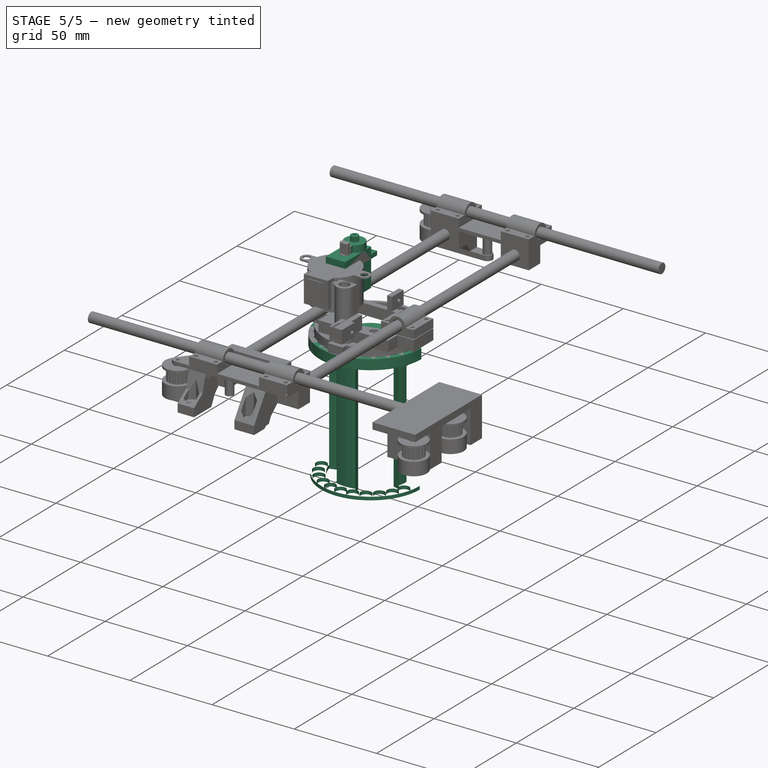
[diagram: stage 5 of 5 — iso view after this stage's code; geometry added in this stage tinted green]
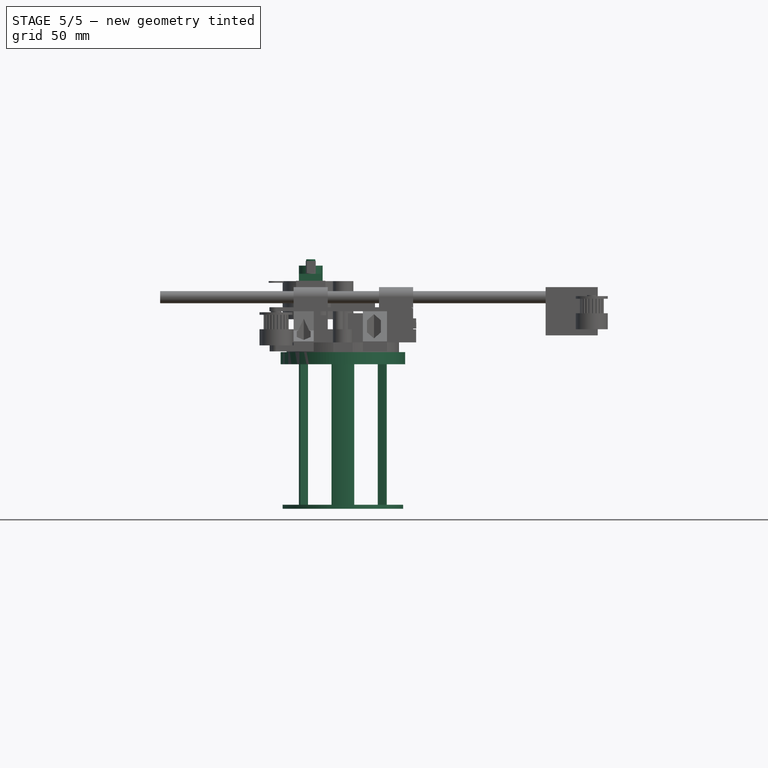
[diagram: stage 5 of 5 — front view after this stage's code; geometry added in this stage tinted green]
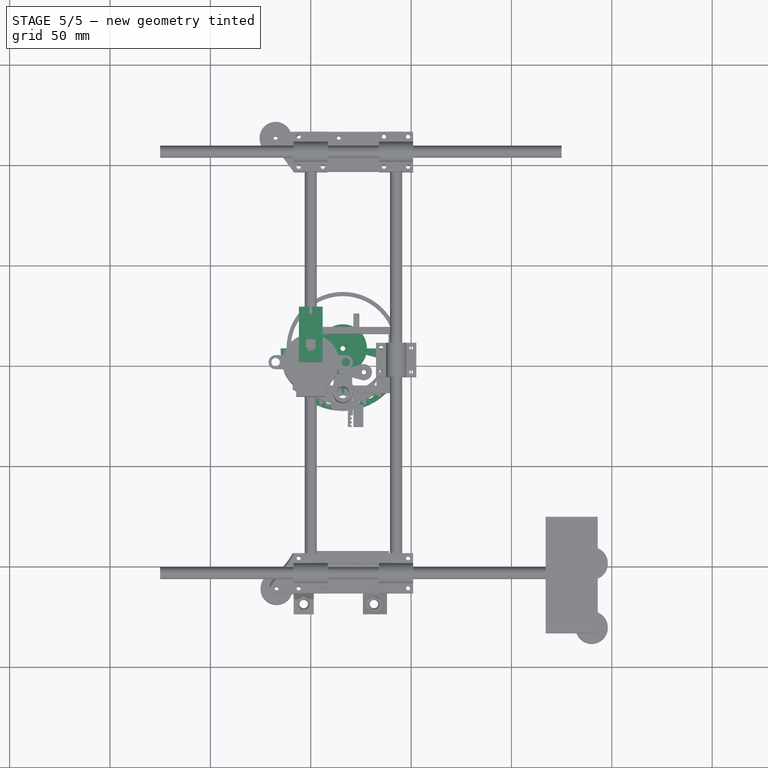
[diagram: stage 5 of 5 — top view after this stage's code; geometry added in this stage tinted green]
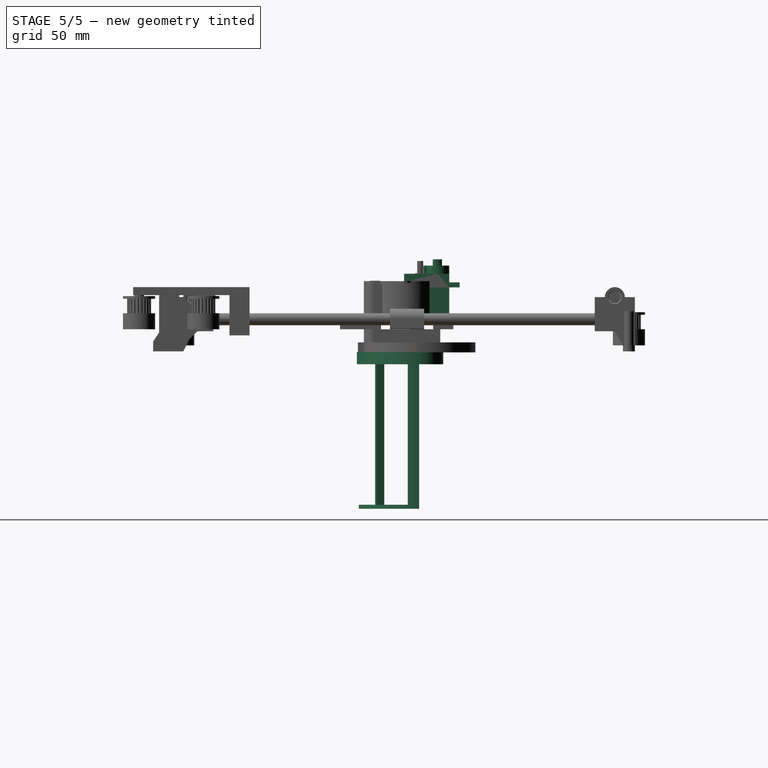
[diagram: stage 5 of 5 — right view after this stage's code; geometry added in this stage tinted green]
FEATURE [Part::Feature] Fusion007002  label="Servo-dispenser"
  Placement = pos=(10,-4.5,19) rot=(0.707107,0.707107,0;3.14159rad)
  shape: bbox 32.4 x 11.8 x 29.9 mm, 77 faces (baked)
FEATURE [Sketcher::SketchObject] Sketch004  label="Color wheel base"
  Placement = pos=(10,7.5,-18.9) rot=(0.707107,0.707107,0;3.14159rad)
  sketch-geometry (40):
    g0: Circle CenterX=0 CenterY=0 CenterZ=0 NormalX=0 NormalY=0 NormalZ=1 Radius=1.2
    g1: LineSegment [constr] StartX=0 StartY=0 StartZ=0 EndX=-26 EndY=-5e-12 EndZ=0
    g2: Circle CenterX=-26 CenterY=-5e-12 CenterZ=0 NormalX=0 NormalY=0 NormalZ=1 Radius=2.55
    g3: ArcOfCircle CenterX=0 CenterY=0 CenterZ=0 NormalX=0 NormalY=0 NormalZ=1 Radius=31 StartAngle=1.5708 EndAngle=4.71239
    g4: ArcOfCircle CenterX=0 CenterY=0 CenterZ=0 NormalX=0 NormalY=0 NormalZ=1 Radius=12 StartAngle=4.71239 EndAngle=7.85398
    g5: LineSegment [constr] StartX=0 StartY=0 StartZ=0 EndX=-22.5167 EndY=-13 EndZ=0
    g6: LineSegment [constr] StartX=0 StartY=0 StartZ=0 EndX=-18.3848 EndY=-18.3848 EndZ=0
    g7: LineSegment [constr] StartX=0 StartY=0 StartZ=0 EndX=-13 EndY=-22.5167 EndZ=0
    g8: LineSegment [constr] StartX=0 StartY=0 StartZ=0 EndX=-22.5167 EndY=13 EndZ=0
    g9: LineSegment [constr] StartX=0 StartY=0 StartZ=0 EndX=-13 EndY=22.5167 EndZ=0
    g10: LineSegment [constr] StartX=0 StartY=0 StartZ=0 EndX=-18.3848 EndY=18.3848 EndZ=0
    g11: Circle CenterX=-25.1141 CenterY=6.7293 CenterZ=0 NormalX=0 NormalY=0 NormalZ=1 Radius=2.55
    g12: Circle CenterX=-25.1141 CenterY=-6.7293 CenterZ=0 NormalX=0 NormalY=0 NormalZ=1 Radius=2.55
    g13: Circle CenterX=-22.5167 CenterY=13 CenterZ=0 NormalX=0 NormalY=0 NormalZ=1 Radius=2.55
    g14: Circle CenterX=-18.3848 CenterY=18.3848 CenterZ=0 NormalX=0 NormalY=0 NormalZ=1 Radius=2.55
    g15: Circle CenterX=-13 CenterY=22.5167 CenterZ=0 NormalX=0 NormalY=0 NormalZ=1 Radius=2.55
    g16: Circle CenterX=-6.7293 CenterY=25.1141 CenterZ=0 NormalX=0 NormalY=0 NormalZ=1 Radius=2.55
    g17: Circle CenterX=-22.5167 CenterY=-13 CenterZ=0 NormalX=0 NormalY=0 NormalZ=1 Radius=2.55
    g18: Circle CenterX=-18.3848 CenterY=-18.3848 CenterZ=0 NormalX=0 NormalY=0 NormalZ=1 Radius=2.55
    g19: Circle CenterX=-13 CenterY=-22.5167 CenterZ=0 NormalX=0 NormalY=0 NormalZ=1 Radius=2.55
    g20: Circle CenterX=-6.7293 CenterY=-25.1141 CenterZ=0 NormalX=0 NormalY=0 NormalZ=1 Radius=2.55
    g21: ArcOfCircle CenterX=0 CenterY=0 CenterZ=0 NormalX=0 NormalY=0 NormalZ=1 Radius=22 StartAngle=1.8326 EndAngle=2.87979
    g22: ArcOfCircle CenterX=0 CenterY=0 CenterZ=0 NormalX=0 NormalY=0 NormalZ=1 Radius=12 StartAngle=1.8326 EndAngle=2.87979
    g23: LineSegment StartX=-5.69402 StartY=21.2504 StartZ=0 EndX=-3.10583 EndY=11.5911 EndZ=0
    g24: LineSegment StartX=-21.2504 StartY=5.69402 StartZ=0 EndX=-11.5911 EndY=3.10583 EndZ=0
    g25: LineSegment [constr] StartX=0 StartY=0 StartZ=0 EndX=-1e-12 EndY=12 EndZ=0
    g26: LineSegment [constr] StartX=-3.10583 StartY=11.5911 StartZ=0 EndX=0 EndY=0 EndZ=0
    g27: ArcOfCircle CenterX=0 CenterY=0 CenterZ=0 NormalX=0 NormalY=0 NormalZ=1 Radius=22 StartAngle=3.40339 EndAngle=4.45059
    g28: ArcOfCircle CenterX=0 CenterY=0 CenterZ=0 NormalX=0 NormalY=0 NormalZ=1 Radius=12 StartAngle=3.40339 EndAngle=4.45059
    g29: LineSegment StartX=-3.10583 StartY=-11.5911 StartZ=0 EndX=-5.69402 EndY=-21.2504 EndZ=0
    g30: LineSegment StartX=-11.5911 StartY=-3.10583 StartZ=0 EndX=-21.2504 EndY=-5.69402 EndZ=0
    g31: LineSegment [constr] StartX=0 StartY=0 StartZ=0 EndX=-3.10583 EndY=-11.5911 EndZ=0
    g32: LineSegment StartX=-1e-12 StartY=31 StartZ=0 EndX=-1e-12 EndY=12 EndZ=0
    g33: LineSegment StartX=1e-11 StartY=-12 StartZ=0 EndX=8e-12 EndY=-31 EndZ=0
    g34: LineSegment [constr] StartX=0 StartY=0 StartZ=0 EndX=-11.5911 EndY=3.10583 EndZ=0
    g35: LineSegment [constr] StartX=-21.2504 StartY=5.69402 StartZ=0 EndX=-25.1141 EndY=6.7293 EndZ=0
    g36: LineSegment [constr] StartX=-11.5911 StartY=-3.10583 StartZ=0 EndX=0 EndY=0 EndZ=0
    g37: LineSegment [constr] StartX=-21.2504 StartY=-5.69402 StartZ=0 EndX=-25.1141 EndY=-6.7293 EndZ=0
    g38: LineSegment [constr] StartX=-5.69402 StartY=-21.2504 StartZ=0 EndX=-6.7293 EndY=-25.1141 EndZ=0
    g39: LineSegment [constr] StartX=-6.7293 StartY=25.1141 StartZ=0 EndX=-5.69402 EndY=21.2504 EndZ=0
  constraints (118):
    c: Radius(g0) = 1.2
    c: Coincident(g2,g1)
    c: Radius(g2) = 2.55  'Bead Hole'
    c: DistanceX(g1,g1) = 26  'Constraint7'
    c: Angle(g1) = 3.14159  'Constraint6'
    c: Coincident(g1,g0)
    c: Coincident(g3,g0)
    c: Coincident(g4,g0)
    c: Radius(g4) = 12
    c: Radius(g3) = 31
    c: Angle(g3) = 3.14159
    c: Coincident(g5,g0)
    c: Coincident(g6,g0)
    c: Coincident(g7,g0)
    c: Coincident(g8,g0)
    c: Coincident(g9,g0)
    c: Coincident(g10,g0)
    c: Equal(g8,g9)
    c: Equal(g9,g10)
    c: Equal(g5,g6)
    c: Equal(g6,g7)
    c: Angle(g8) = 2.61799
    c: Angle(g10) = 2.35619
    c: Angle(g9) = 2.0944
    c: Equal(g12,g2)
    c: Equal(g2,g11)
    c: Angle(g5) = 3.66519
    c: Angle(g6) = 3.92699
    c: Angle(g7) = 4.18879
    c: Coincident(g13,g8)
    c: Coincident(g14,g10)
    c: Coincident(g15,g9)
    c: Coincident(g17,g5)
    c: Coincident(g18,g6)
    c: Coincident(g19,g7)
    c: Equal(g20,g19)
    c: Equal(g19,g18)
    c: Equal(g18,g17)
    c: Equal(g17,g2)
    c: Equal(g2,g13)
    c: Equal(g13,g14)
    c: Equal(g14,g15)
    c: Equal(g15,g16)
    c: Coincident(g21,g0)
    c: Coincident(g22,g0)
    c: Coincident(g23,g21)
    c: Coincident(g23,g22)
    c: Coincident(g24,g21)
    c: Coincident(g24,g22)
    c: Distance(g24) = 10
    c: Coincident(g25,g0)
    c: Coincident(g26,g22)
    c: Equal(g25,g26)
    c: Coincident(g26,g0)
    c: Coincident(g27,g0)
    c: Coincident(g28,g0)
    c: Coincident(g29,g28)
    c: Coincident(g30,g28)
    c: Coincident(g30,g27)
    c: Equal(g24,g29)
    c: Equal(g29,g30)
    c: Coincident(g31,g0)
    c: Coincident(g31,g28)
    c: Equal(g26,g31)
    c: Coincident(g29,g27)
    c: Coincident(g4,g25)
    c: Coincident(g32,g3)
    c: Vertical(g32)
    c: Coincident(g32,g4)
    c: Coincident(g33,g4)
    c: Coincident(g33,g3)
    c: Angle(g25) = 1.5708
    c: Angle(g33) = -1.5708
    c: Coincident(g0,g-1)
    c: Coincident(g34,g-1)
    c: Coincident(g34,g22)
    c: Coincident(g35,g21)
    c: Coincident(g35,g11)
    c: Coincident(g36,g28)
    c: Coincident(g36,g-1)
    c: Coincident(g37,g27)
    c: Coincident(g37,g12)
    c: Coincident(g38,g20)
    c: Coincident(g39,g16)
    c: Coincident(g39,g21)
    c: Equal(g35,g39)
    c: Equal(g39,g37)
    c: Equal(g37,g38)
    c: Distance(g35) = 4
    c: Distance(g34) = 12
    c: Equal(g34,g26)
    c: Equal(g26,g36)
    c: Equal(g36,g31)
    c: Angle(g34) = 2.87979
    c: Angle(g26) = -1.309
    c: Angle(g31) = -1.8326
    c: Angle(g36) = 0.261799
    c: Parallel(g37,g30)
    c: Parallel(g30,g36)
    c: Parallel(g35,g24)
    c: Parallel(g24,g34)
    c: Parallel(g39,g23)
    c: Parallel(g23,g26)
    c: Parallel(g31,g29)
    c: Parallel(g29,g38)
    c: Equal(g5,g1)
    c: Equal(g1,g6)
    c: Equal(g6,g7)
    c: Equal(g8,g10)
    c: Equal(g10,g9)
    c: Equal(g9,g1)
    c: Equal(g36,g31)
    c: Equal(g31,g34)
    c: Equal(g34,g26)
    c: Equal(g39,g35)
    c: Equal(g35,g37)
    c: Equal(g37,g38)
    c: Coincident(g27,g38)
FEATURE [PartDesign::Pad] Pad001  label="dispenser-wheel"
  Length = 3
  Length2 = 3
  Placement = pos=(10,7.5,-18.9) rot=(0.707107,0.707107,0;3.14159rad)
  Sketch = -> Sketch004
  Type = 4
FEATURE [Part::Box] Box  label="Cubo"
  Height = 22.7
  Length = 11.8
  Width = 22.5
FEATURE [Part::Box] Box001  label="Cubo001"
  Height = 2.5
  Length = 11.8
  Placement = pos=(0,-4.7,15.9) rot=(0,0,1;0rad)
  Width = 32.4
FEATURE [Part::Fuse] Fusion  label="Square_body"
  Base = -> Box
  Tool = -> Box001
FEATURE [Part::Cylinder] Cylinder  label="Cilindro"
  Angle = 360
  Height = 4
  Placement = pos=(5.9,16.6,22.7) rot=(0,0,1;0rad)
  Radius = 5.9
FEATURE [Part::Cylinder] Cylinder001  label="Cilindro001"
  Angle = 360
  Height = 4
  Placement = pos=(5.9,10.3,22.7) rot=(0,0,1;0rad)
  Radius = 2.5
FEATURE [Part::Fuse] Fusion001
  Base = -> Cylinder
  Tool = -> Cylinder001
FEATURE [Part::Fuse] Fusion003
  Base = -> Fusion
  Tool = -> Fusion001
FEATURE [Part::Cylinder] Cylinder003  label="Taladro"
  Angle = 360
  Height = 10
  Placement = pos=(5.9,-2.35,11) rot=(0,0,1;0rad)
  Radius = 1
FEATURE [Part::Cylinder] Cylinder004  label="Taladro2"
  Angle = 360
  Height = 10
  Placement = pos=(5.9,24.85,11) rot=(0,0,1;0rad)
  Radius = 1
FEATURE [Part::Fuse] Fusion004  label="Taladros"
  Base = -> Cylinder003
  Tool = -> Cylinder004
FEATURE [Part::Box] Box002  label="Cubo002"
  Height = 10
  Length = 1.3
  Placement = pos=(5.25,-6,12) rot=(0,0,1;0rad)
  Width = 3.3
FEATURE [Part::Box] Box003  label="Cubo003"
  Height = 10
  Length = 1.3
  Placement = pos=(5.25,25,12) rot=(0,0,1;0rad)
  Width = 3.3
FEATURE [Part::Fuse] Fusion005  label="Rebajes"
  Base = -> Box002
  Tool = -> Box003
FEATURE [Part::Fuse] Fusion006  label="Taladros001"
  Base = -> Fusion004
  Tool = -> Fusion005
FEATURE [Part::Cut] Cut  label="Cuerpo_con_taladros"
  Base = -> Fusion003
  Placement = pos=(-5.9,0,0) rot=(0,0,1;0rad)
  Tool = -> Fusion006
FEATURE [Sketcher::SketchObject] Sketch005
  Placement = pos=(-5.9,22.5,0) rot=(0,0.707107,0.707107;3.14159rad)
  Support = -> Cut [Face3]
  sketch-geometry (4):
    g0: LineSegment StartX=-4.1 StartY=4.5 StartZ=0 EndX=-7.7 EndY=4.5 EndZ=0
    g1: LineSegment StartX=-7.7 StartY=4.5 StartZ=0 EndX=-7.7 EndY=5.7 EndZ=0
    g2: LineSegment StartX=-7.7 StartY=5.7 StartZ=0 EndX=-4.1 EndY=5.7 EndZ=0
    g3: LineSegment StartX=-4.1 StartY=5.7 StartZ=0 EndX=-4.1 EndY=4.5 EndZ=0
  constraints (12):
    c: Coincident(g0,g1)
    c: Coincident(g1,g2)
    c: Coincident(g2,g3)
    c: Coincident(g3,g0)
    c: Horizontal(g0)
    c: Horizontal(g2)
    c: Vertical(g1)
    c: Vertical(g3)
    c: DistanceX(g2) = 3.6
    c: DistanceY(g1) = 1.2
    c: DistanceX(g-1,g0) = -4.1
    c: DistanceY(g-1,g0) = 4.5
FEATURE [PartDesign::Pocket] Pocket001  label="Ranura_cable"
  Length = 3
  Placement = pos=(-5.9,0,0) rot=(0,0,1;0rad)
  Sketch = -> Sketch005
  Type = 0
FEATURE [Part::Cylinder] Cylinder006  label="Cilindro002"
  Angle = 360
  Height = 3
  Placement = pos=(2.51021,16.5511,26.9) rot=(0,0,1;0rad)
  Radius = 0.35
FEATURE [Part::FeaturePython] Array  # Draft array (typed FeaturePython)
  Angle = 360
  ArrayType = 1
  Axis = (0,0,1)
  Base = -> Cylinder006
  Center = (0,16.6,0)
  Fuse = false
  IntervalAxis = (0,0,0)
  IntervalX = (1,0,0)
  IntervalY = (0,1,0)
  IntervalZ = (0,0,0)
  NumberPolar = 20
  NumberX = 2
  NumberY = 2
  NumberZ = 1
FEATURE [Part::Cylinder] Cylinder002  label="Cilindro_interior"
  Angle = 360
  Height = 3.2
  Placement = pos=(0,16.6,26.7) rot=(0,0,1;0rad)
  Radius = 2.3
FEATURE [Part::Cylinder] Cylinder005  label="Cilindro_exterior"
  Angle = 360
  Height = 3.2
  Placement = pos=(0,16.6,26.7) rot=(0,0,1;0rad)
  Radius = 0.85
FEATURE [Part::Cut] Cut001  label="Cilindro_vaciado"
  Base = -> Cylinder002
  Tool = -> Cylinder005
FEATURE [Part::Fillet] Fillet001
  Base = -> Cut001
  Edges = 1 edges r=0.3: [Edge1]
FEATURE [Part::Cut] Cut002  label="Eje_engranaje"
  Base = -> Fillet001
  Tool = -> Array
FEATURE [App::DocumentObjectGroup] Grupo003  label="Servo"
  Group = -> [Cut,Pocket001,Cut002]
FEATURE [Part::Feature] Fusion007001  label="Servo-wheel"
  Placement = pos=(32.5,7.5,11) rot=(0.707107,-0.707107,0;3.14159rad)
  shape: bbox 32.4 x 11.8 x 29.9 mm, 77 faces (baked)
FEATURE [Sketcher::SketchObject] Sketch006
  Placement = pos=(10,7.5,-15.9) rot=(0,0,1;1.5708rad)
  Support = -> Pad001 [Face25]
  sketch-geometry (1):
    g0: Circle CenterX=0 CenterY=0 CenterZ=0 NormalX=0 NormalY=0 NormalZ=1 Radius=2.4
  constraints (2):
    c: Coincident(g0,g-1)
    c: Radius(g0) = 2.4
FEATURE [PartDesign::Pocket] Pocket002  label="Dispenser-wheel"
  Length = 3
  Placement = pos=(10,7.5,-18.9) rot=(0.707107,0.707107,0;3.14159rad)
  Sketch = -> Sketch006
  Type = 0
FEATURE [Part::Cone] Cone
  Angle = 360
  Height = 6
  Placement = pos=(35.1141,0.770705,-16) rot=(0.130526,0.991445,0;3.14159rad)
  Radius1 = 2.6
  Radius2 = 3.35
FEATURE [App::DocumentObjectGroup] Group001  label="Slider 3mm"
  Group = -> [Pad,Pocket]
FEATURE [Part::Cone] Cone001
  Angle = 360
  Height = 6
  Placement = pos=(-15.1141,0.770705,-16) rot=(0.991445,0.130526,0;3.14159rad)
  Radius1 = 2.6
  Radius2 = 3.35
FEATURE [Part::Cone] Cone002
  Angle = 360
  Height = 6
  Placement = pos=(3.2707,-17.6141,-16) rot=(0.793353,0.608761,0;3.14159rad)
  Radius1 = 2.6
  Radius2 = 3.35
FEATURE [Part::MultiFuse] Fusion007003
  Shapes = -> [Cone,Cone010,Cone001,Cone009,Cone008,Cone007,Cone006,Cone005,Cone004,Cone003,Cone002]
FEATURE [Part::Cut] Cut003  label="Cut Color Wheel"
  Base = -> Pocket002
  Placement = pos=(6,0,-0.5) rot=(0,0,1;0rad)
  Tool = -> Fusion007003
FEATURE [Sketcher::SketchObject] Sketch007  label="Dispenser Supports"
  ExternalGeometry = -> [Cut003]
  Placement = pos=(6,0,-22.4) rot=(1,0,0;3.14159rad)
  Support = -> Cut003 [Face5]
  sketch-geometry (15):
    g0: ArcOfCircle CenterX=10 CenterY=-7.5 CenterZ=0 NormalX=0 NormalY=0 NormalZ=1 Radius=21.9 StartAngle=1.309 EndAngle=1.8326
    g1: ArcOfCircle CenterX=10 CenterY=-7.5 CenterZ=0 NormalX=0 NormalY=0 NormalZ=1 Radius=18 StartAngle=1.309 EndAngle=1.8326
    g2: ArcOfCircle CenterX=10 CenterY=-7.5 CenterZ=0 NormalX=0 NormalY=0 NormalZ=1 Radius=21.9 StartAngle=2.87979 EndAngle=3.14159
    g3: ArcOfCircle CenterX=10 CenterY=-7.5 CenterZ=0 NormalX=0 NormalY=0 NormalZ=1 Radius=18 StartAngle=2.87979 EndAngle=3.14159
    g4: ArcOfCircle CenterX=10 CenterY=-7.5 CenterZ=0 NormalX=0 NormalY=0 NormalZ=1 Radius=21.9 StartAngle=6.28319 EndAngle=6.54498
    g5: ArcOfCircle CenterX=10 CenterY=-7.5 CenterZ=0 NormalX=0 NormalY=0 NormalZ=1 Radius=18 StartAngle=6.28319 EndAngle=6.54498
    g6: LineSegment StartX=4.33186 StartY=13.6538 StartZ=0 EndX=5.34126 EndY=9.88666 EndZ=0
    g7: LineSegment StartX=15.6681 StartY=13.6538 StartZ=0 EndX=14.6587 EndY=9.88666 EndZ=0
    g8: LineSegment StartX=31.1538 StartY=-1.83186 StartZ=0 EndX=27.3867 EndY=-2.84126 EndZ=0
    g9: LineSegment StartX=28 StartY=-7.5 StartZ=0 EndX=31.9 EndY=-7.5 EndZ=0
    g10: LineSegment StartX=-11.1538 StartY=-1.83186 StartZ=0 EndX=-7.38666 EndY=-2.84126 EndZ=0
    g11: LineSegment StartX=-11.9 StartY=-7.49999 StartZ=0 EndX=-8 EndY=-7.5 EndZ=0
    g12: LineSegment [constr] StartX=10 StartY=-7.5 StartZ=0 EndX=5.34126 EndY=9.88666 EndZ=0
    g13: LineSegment [constr] StartX=10 StartY=-7.5 StartZ=0 EndX=-7.38666 EndY=-2.84126 EndZ=0
    g14: LineSegment [constr] StartX=10 StartY=-7.5 StartZ=0 EndX=27.3867 EndY=-2.84126 EndZ=0
  constraints (42):
    c: Coincident(g0,g-3)
    c: Coincident(g1,g0)
    c: Coincident(g2,g0)
    c: Coincident(g4,g0)
    c: Coincident(g5,g0)
    c: Coincident(g6,g0)
    c: Coincident(g6,g1)
    c: Coincident(g7,g0)
    c: Coincident(g7,g1)
    c: Coincident(g8,g4)
    c: Coincident(g8,g5)
    c: Coincident(g9,g5)
    c: Coincident(g9,g4)
    c: Horizontal(g9)
    c: Coincident(g10,g2)
    c: Coincident(g10,g3)
    c: Coincident(g11,g2)
    c: Coincident(g11,g3)
    c: Equal(g11,g10)
    c: Equal(g10,g6)
    c: Equal(g6,g7)
    c: Equal(g7,g8)
    c: Equal(g8,g9)
    c: Distance(g6) = 3.9
    c: Coincident(g12,g0)
    c: Coincident(g12,g1)
    c: Coincident(g13,g3)
    c: Coincident(g14,g0)
    c: Coincident(g14,g5)
    c: Equal(g12,g13)
    c: Equal(g13,g14)
    c: Distance(g12) = 18
    c: Coincident(g13,g0)
    c: Coincident(g0,g3)
    c: Angle(g13) = 2.87979
    c: Angle(g14) = 0.261799
    c: Angle(g12) = 1.8326
    c: Parallel(g10,g13)
    c: Parallel(g6,g12)
    c: Parallel(g8,g14)
    c: Angle(g1) = 0.523599
    c: Angle(g3) = 0.261799
FEATURE [PartDesign::Pad] Pad002  label="Color wheel with supports"
  Length = 70
  Length2 = 100
  Placement = pos=(6,0,-0.5) rot=(0,0,1;0rad)
  Sketch = -> Sketch007
  Type = 0
FEATURE [Sketcher::SketchObject] Sketch008  label="Color wheel top support"
  ExternalGeometry = -> [Pad002]
  Placement = pos=(6,0,-92.4) rot=(1,0,0;3.14159rad)
  Support = -> Pad002 [Face60]
  sketch-geometry (35):
    g0: ArcOfCircle CenterX=10 CenterY=-7.5 CenterZ=0 NormalX=0 NormalY=0 NormalZ=1 Radius=30 StartAngle=0 EndAngle=3.14159
    g1: ArcOfCircle CenterX=10 CenterY=-7.5 CenterZ=0 NormalX=0 NormalY=0 NormalZ=1 Radius=22 StartAngle=0.261798 EndAngle=1.309
    g2: ArcOfCircle CenterX=10 CenterY=-7.5 CenterZ=0 NormalX=0 NormalY=0 NormalZ=1 Radius=18 StartAngle=2.87979 EndAngle=3.14159
    g3: ArcOfCircle CenterX=10 CenterY=-7.5 CenterZ=0 NormalX=0 NormalY=0 NormalZ=1 Radius=18 StartAngle=0 EndAngle=0.261799
    g4: ArcOfCircle CenterX=10 CenterY=-7.5 CenterZ=0 NormalX=0 NormalY=0 NormalZ=1 Radius=18 StartAngle=1.309 EndAngle=1.8326
    g5: ArcOfCircle CenterX=10 CenterY=-7.5 CenterZ=0 NormalX=0 NormalY=0 NormalZ=1 Radius=22 StartAngle=1.8326 EndAngle=2.87979
    g6: LineSegment StartX=-11.2504 StartY=-1.80598 StartZ=0 EndX=-7.38666 EndY=-2.84126 EndZ=0
    g7: LineSegment StartX=-8 StartY=-7.5 StartZ=0 EndX=-20 EndY=-7.5 EndZ=0
    g8: LineSegment StartX=5.34126 StartY=9.88666 StartZ=0 EndX=4.30598 EndY=13.7504 EndZ=0
    g9: LineSegment StartX=15.694 StartY=13.7504 StartZ=0 EndX=14.6587 EndY=9.88666 EndZ=0
    g10: LineSegment StartX=27.3867 StartY=-2.84126 StartZ=0 EndX=31.2504 EndY=-1.80601 EndZ=0
    g11: LineSegment StartX=28 StartY=-7.5 StartZ=0 EndX=40 EndY=-7.5 EndZ=0
    g12: LineSegment [constr] StartX=10 StartY=-7.5 StartZ=0 EndX=-8 EndY=-7.5 EndZ=0
    g13: Circle CenterX=10 CenterY=18.5 CenterZ=0 NormalX=0 NormalY=0 NormalZ=1 Radius=3.2
    g14: LineSegment [constr] StartX=10 StartY=18.5 StartZ=0 EndX=10 EndY=-7.5 EndZ=0
    g15: Circle CenterX=16.7293 CenterY=17.6141 CenterZ=0 NormalX=0 NormalY=0 NormalZ=1 Radius=3.2
    g16: Circle CenterX=23 CenterY=15.0167 CenterZ=0 NormalX=0 NormalY=0 NormalZ=1 Radius=3.2
    g17: Circle CenterX=28.3848 CenterY=10.8848 CenterZ=0 NormalX=0 NormalY=0 NormalZ=1 Radius=3.2
    g18: Circle CenterX=32.5167 CenterY=5.5 CenterZ=0 NormalX=0 NormalY=0 NormalZ=1 Radius=3.2
    g19: Circle CenterX=3.2707 CenterY=17.6141 CenterZ=0 NormalX=0 NormalY=0 NormalZ=1 Radius=3.2
    g20: Circle CenterX=-3 CenterY=15.0167 CenterZ=0 NormalX=0 NormalY=0 NormalZ=1 Radius=3.2
    g21: Circle CenterX=-8.38478 CenterY=10.8848 CenterZ=0 NormalX=0 NormalY=0 NormalZ=1 Radius=3.2
    g22: Circle CenterX=-12.5167 CenterY=5.5 CenterZ=0 NormalX=0 NormalY=0 NormalZ=1 Radius=3.2
    g23: Circle CenterX=35.1141 CenterY=-0.770705 CenterZ=0 NormalX=0 NormalY=0 NormalZ=1 Radius=3.2
    g24: Circle CenterX=-15.1141 CenterY=-0.770705 CenterZ=0 NormalX=0 NormalY=0 NormalZ=1 Radius=3.2
    g25: LineSegment [constr] StartX=-15.1141 StartY=-0.770705 StartZ=0 EndX=10 EndY=-7.5 EndZ=0
    g26: LineSegment [constr] StartX=10 StartY=-7.5 StartZ=0 EndX=-12.5167 EndY=5.5 EndZ=0
    g27: LineSegment [constr] StartX=-8.38478 StartY=10.8848 StartZ=0 EndX=10 EndY=-7.5 EndZ=0
    g28: LineSegment [constr] StartX=-3 StartY=15.0167 StartZ=0 EndX=10 EndY=-7.5 EndZ=0
    g29: LineSegment [constr] StartX=10 StartY=-7.5 StartZ=0 EndX=3.2707 EndY=17.6141 EndZ=0
    g30: LineSegment [constr] StartX=16.7293 StartY=17.6141 StartZ=0 EndX=10 EndY=-7.5 EndZ=0
    g31: LineSegment [constr] StartX=10 StartY=-7.5 StartZ=0 EndX=23 EndY=15.0167 EndZ=0
    g32: LineSegment [constr] StartX=28.3848 StartY=10.8848 StartZ=0 EndX=10 EndY=-7.5 EndZ=0
    g33: LineSegment [constr] StartX=10 StartY=-7.5 StartZ=0 EndX=32.5167 EndY=5.5 EndZ=0
    g34: LineSegment [constr] StartX=35.1141 StartY=-0.770705 StartZ=0 EndX=10 EndY=-7.5 EndZ=0
  constraints (92):
    c: Coincident(g4,g8)
    c: Coincident(g4,g-3)
    c: Coincident(g0,g7)
    c: Coincident(g0,g11)
    c: Radius(g13) = 3.2
    c: Equal(g19,g13)
    c: Equal(g13,g20)
    c: Equal(g20,g21)
    c: Equal(g21,g22)
    c: Equal(g22,g24)
    c: Equal(g24,g15)
    c: Equal(g15,g16)
    c: Equal(g16,g17)
    c: Equal(g17,g18)
    c: Equal(g18,g23)
    c: Distance(g14) = 26
    c: Equal(g34,g33)
    c: Equal(g33,g32)
    c: Equal(g32,g31)
    c: Equal(g31,g30)
    c: Equal(g30,g14)
    c: Equal(g28,g27)
    c: Equal(g27,g26)
    c: Equal(g26,g25)
    c: Distance(g6) = 4
    c: Coincident(g1,g2)
    c: Coincident(g1,g3)
    c: Coincident(g1,g4)
    c: Coincident(g1,g5)
    c: Coincident(g1,g26)
    c: Coincident(g1,g27)
    c: Coincident(g1,g28)
    c: Coincident(g1,g29)
    c: Coincident(g1,g30)
    c: Coincident(g1,g31)
    c: Coincident(g1,g32)
    c: Coincident(g1,g33)
    c: Coincident(g1,g34)
    c: Coincident(g1,g-3)
    c: Coincident(g12,g25)
    c: Coincident(g12,g1)
    c: Coincident(g24,g25)
    c: Coincident(g22,g26)
    c: Coincident(g13,g14)
    c: Coincident(g19,g29)
    c: Coincident(g15,g30)
    c: Coincident(g16,g31)
    c: Equal(g6,g8)
    c: Equal(g8,g9)
    c: Equal(g9,g10)
    c: Coincident(g5,g8)
    c: Coincident(g5,g6)
    c: Coincident(g2,g6)
    c: Coincident(g2,g7)
    c: Distance(g7) = 12
    c: Coincident(g3,g11)
    c: Equal(g11,g7)
    c: Horizontal(g7)
    c: Coincident(g0,g1)
    c: Horizontal(g11)
    c: Coincident(g3,g10)
    c: Coincident(g23,g34)
    c: Angle(g34) = -2.87979
    c: Angle(g33) = 0.523599
    c: Angle(g32) = -2.35619
    c: Angle(g31) = 1.0472
    c: Angle(g30) = -1.8326
    c: Coincident(g14,g0)
    c: Angle(g14) = -1.5708
    c: Angle(g29) = 1.8326
    c: Angle(g28) = -1.0472
    c: Angle(g27) = -0.785398
    c: Angle(g26) = 2.61799
    c: Angle(g25) = -0.261799
    c: Coincident(g21,g27)
    c: Coincident(g20,g28)
    c: Equal(g28,g14)
    c: Equal(g29,g14)
    c: Coincident(g17,g32)
    c: Coincident(g18,g33)
    c: Coincident(g10,g1)
    c: Angle(g3) = 0.261799
    c: Coincident(g12,g2)
    c: Horizontal(g12)
    c: Angle(g0) = 3.14159
    c: Coincident(g1,g9)
    c: Coincident(g4,g9)
    c: PointOnObject(g1,g30)
    c: PointOnObject(g4,g30)
    c: PointOnObject(g5,g29)
    c: Parallel(g25,g6)
    c: PointOnObject(g5,g25)
FEATURE [PartDesign::Pad] Pad003  label="Color wheel with top"
  Length = 2
  Length2 = 100
  Placement = pos=(6,0,-0.5) rot=(0,0,1;0rad)
  Sketch = -> Sketch008
  Type = 0
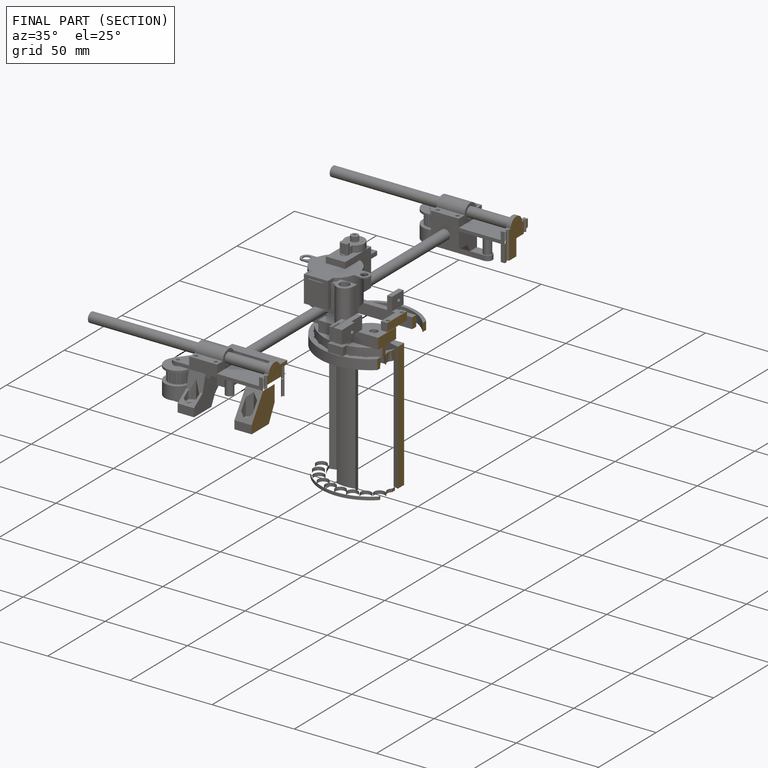
[diagram: finished part — half-section view (interior)]
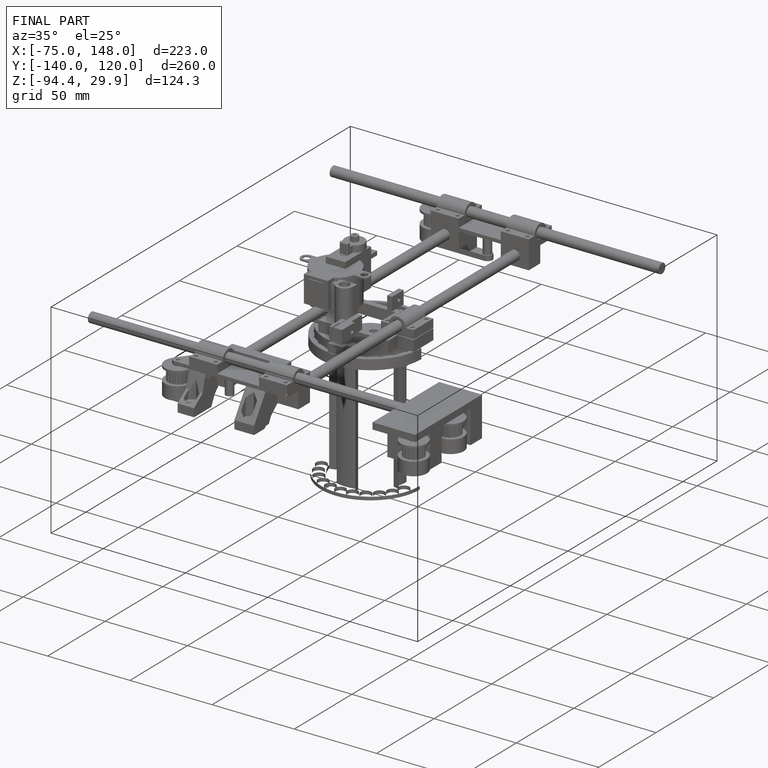
[diagram: finished part — iso view with bounding-box wireframe]
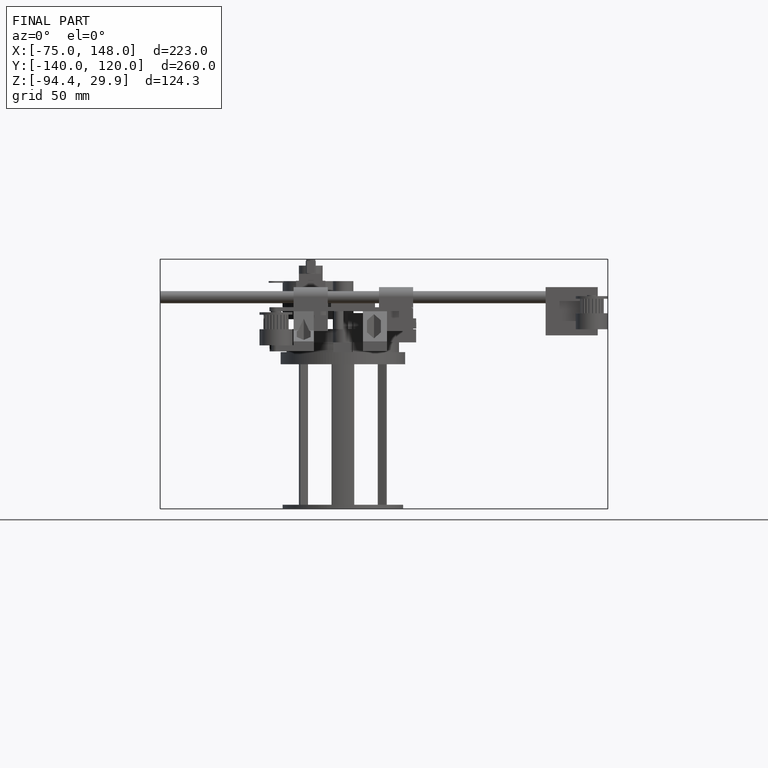
[diagram: finished part — front view with bounding-box wireframe]
